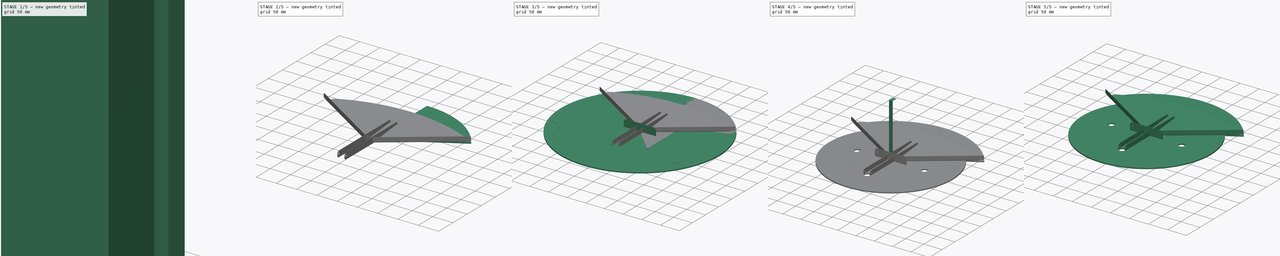
[diagram: build sequence overview — one tinted view per stage of 5, left to right]
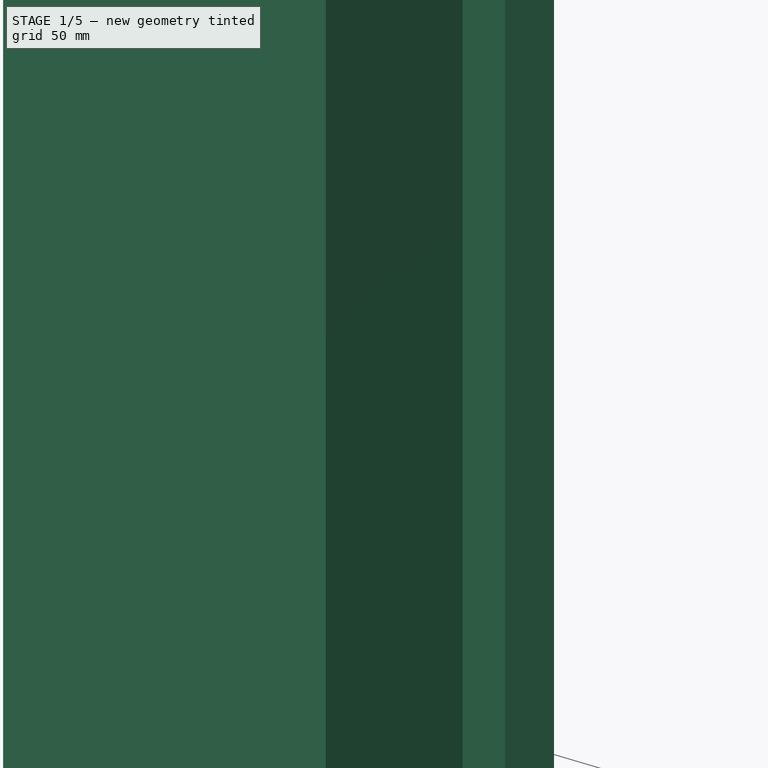
[diagram: stage 1 of 5 — iso view after this stage's code; geometry added in this stage tinted green]
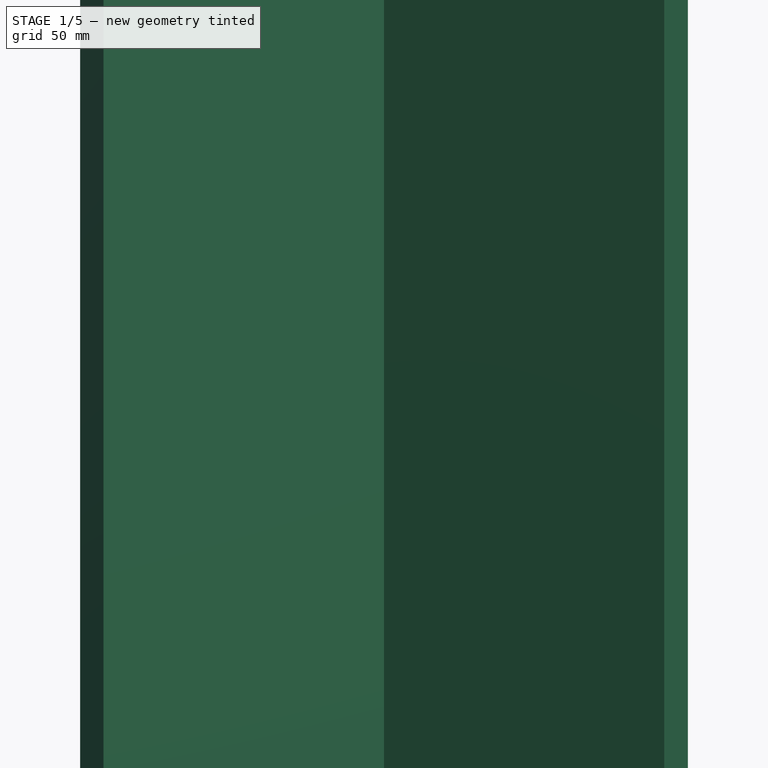
[diagram: stage 1 of 5 — front view after this stage's code; geometry added in this stage tinted green]
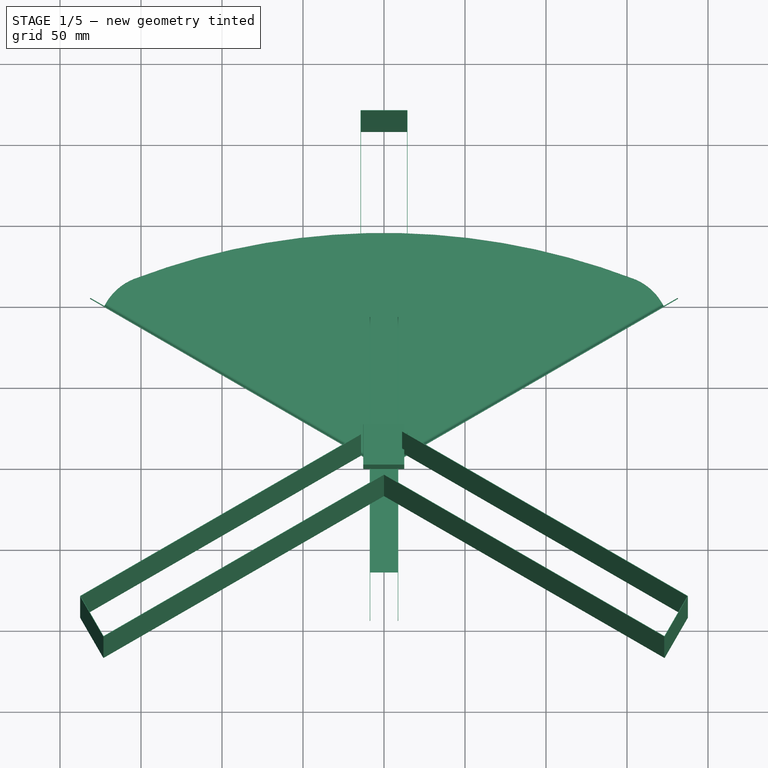
[diagram: stage 1 of 5 — top view after this stage's code; geometry added in this stage tinted green]
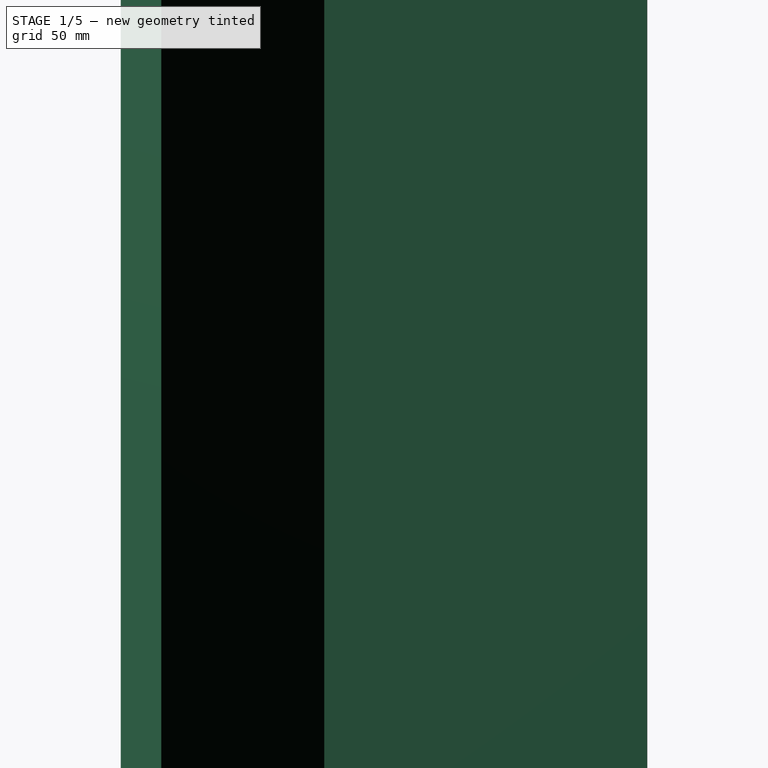
[diagram: stage 1 of 5 — right view after this stage's code; geometry added in this stage tinted green]
FCSTD DOCUMENT  (FreeCAD 0.21R31917 (Git))
Label: composit_stand3-small
License: All rights reserved
LicenseURL: http://en.wikipedia.org/wiki/All_rights_reserved
objects: Sketcher::SketchObject×81, PartDesign::CoordinateSystem×42, PartDesign::Pocket×36, PartDesign::SubShapeBinder×23, PartDesign::Plane×17, PartDesign::Body×17, PartDesign::FeaturePython×14, PartDesign::Mirrored×12, PartDesign::Pad×10, Part::FeaturePython×6, App::DocumentObjectGroup×5, App::Link×5, PartDesign::PolarPattern×5, PartDesign::MultiTransform×3, PartDesign::Hole×2, Spreadsheet::Sheet×1, App::FeaturePython×1, Part::Feature×1, PartDesign::Fillet×1, App::Part×1, +2 more types
note: 317 computed .brp shape members not serialized (recipe doc carries the construction recipe); baked Part::Feature solids carry a one-line shape summary decoded from their .brp
EXTERNAL_REF file=module.FCStd obj=Spreadsheet

FEATURE [PartDesign::Body] Body001003005003015002  label="corner_5.5_material_0.30ansi"
  Group = -> [Sketch108,BaseBend007,Sketch109,Pocket063,MultiTransform013,Mirrored039,PolarPattern014,Sketch110,Pocket064,Local_CS034,Sketch111,Pocket065]
  Origin = -> Origin036
  Tip = -> Pocket065
FEATURE [PartDesign::CoordinateSystem] Local_CS035
  AttacherType = Attacher::AttachEngine3D
  AttachmentOffset = pos=(0,0,774) rot=(0,0,1;0rad)
  MapMode = 5
  Placement = pos=(0,108.372,774) rot=(0,0,1;0rad)
  Support = -> [Local_CS011]
FEATURE [PartDesign::CoordinateSystem] Local_CS036  label="droppers_center"
  AttacherType = Attacher::AttachEngine3D
  AttachmentOffset = pos=(0,0,-19) rot=(0,0,1;0rad)
  MapMode = 5
  Placement = pos=(0,108.372,755) rot=(0,0,1;0rad)
  Support = -> [Local_CS035]
FEATURE [PartDesign::CoordinateSystem] Local_CS037  label="gutter_fixture_center"
  AttacherType = Attacher::AttachEngine3D
  AttachmentOffset = pos=(0,0,-12) rot=(0,0,1;0rad)
  MapMode = 5
  Placement = pos=(0,108.372,743) rot=(0,0,1;0rad)
  Support = -> [Local_CS036]
FEATURE [PartDesign::CoordinateSystem] Local_CS038  label="modules_top_center"
  AttacherType = Attacher::AttachEngine3D
  AttachmentOffset = pos=(0,0,-5) rot=(0,0,1;0rad)
  MapMode = 5
  Placement = pos=(0,108.372,738) rot=(0,0,1;0rad)
  Support = -> [Local_CS037]
FEATURE [Sketcher::SketchObject] Sketch112
  FullyConstrained = true
  MapMode = 5
  Placement = pos=(0,0,0) rot=(0.57735,0.57735,0.57735;2.0944rad)
  Support = -> [YZ_Plane001]
  sketch-geometry (5):
    g0: LineSegment StartX=-6.5 StartY=-3.5 StartZ=0 EndX=-6.5 EndY=3.5 EndZ=0
    g1: LineSegment StartX=-6.5 StartY=3.5 StartZ=0 EndX=6.5 EndY=3.5 EndZ=0
    g2: LineSegment StartX=6.5 StartY=3.5 StartZ=0 EndX=6.5 EndY=-3.5 EndZ=0
    g3: LineSegment StartX=6.5 StartY=-3.5 StartZ=0 EndX=-6.5 EndY=-3.5 EndZ=0
    g4: GeomPoint X=0 Y=0 Z=0
  constraints (12):
    c: Coincident(g0,g1)
    c: Coincident(g1,g2)
    c: Coincident(g2,g3)
    c: Coincident(g3,g0)
    c: Horizontal(g1)
    c: Horizontal(g3)
    c: Vertical(g0)
    c: Vertical(g2)
    c: Symmetric(g1,g0,g4)
    c: Coincident(g4,g-1)
    c: DistanceX(g1,g1) = 13
    c: DistanceY(g2,g2) = 7
FEATURE [Part::FeaturePython] Array  # Draft array (typed FeaturePython)
  AlwaysSyncPlacement = false
  Angle = 360
  ArrayType = 0
  Axis = (0,0,1)
  Base = -> Sketch112
  Center = (0,0,0)
  Count = 12
  ExpandArray = false
  Fuse = false
  IntervalAxis = (0,0,0)
  IntervalX = (100,0,0)
  IntervalY = (0,132,0)
  IntervalZ = (0,0,-80)
  NumberCircles = 3
  NumberPolar = 5
  NumberX = 1
  NumberY = 2
  NumberZ = 6
  Placement = pos=(0,-66,0) rot=(0,0,1;0rad)
  PlacementList = 12 placements: [(0,0,0),(0,0,-80),(0,0,-160),(0,0,-240),(0,0,-320),(0,0,-400),(0,132,0),(0,132,-80),(0,132,-160),(0,132,-240),(0,132,-320),(0,132,-400)]
  RadialDistance = 50
  Symmetry = 1
  TangentialDistance = 25
FEATURE [Sketcher::SketchObject] Sketch113
  FullyConstrained = true
  MapMode = 5
  Placement = pos=(0,0,0) rot=(0.57735,0.57735,0.57735;2.0944rad)
  Support = -> [YZ_Plane001]
  sketch-geometry (8):
    g0: ArcOfCircle CenterX=0 CenterY=0 CenterZ=0 NormalX=0 NormalY=0 NormalZ=1 AngleXU=0 Radius=12.625 StartAngle=3.14159 EndAngle=6.28319
    g1: LineSegment StartX=12.625 StartY=-3.1e-15 StartZ=0 EndX=12.625 EndY=12.5 EndZ=0
    g2: LineSegment StartX=-12.625 StartY=1.5e-15 StartZ=0 EndX=-12.625 EndY=12.5 EndZ=0
    g3: ArcOfCircle CenterX=15.125 CenterY=12.5 CenterZ=0 NormalX=0 NormalY=0 NormalZ=1 AngleXU=0 Radius=2.5 StartAngle=1.5708 EndAngle=3.14159
    g4: ArcOfCircle CenterX=-15.125 CenterY=12.5 CenterZ=0 NormalX=0 NormalY=0 NormalZ=1 AngleXU=0 Radius=2.5 StartAngle=0 EndAngle=1.5708
    g5: LineSegment StartX=-15.125 StartY=15 StartZ=0 EndX=-15.125 EndY=19 EndZ=0
    g6: LineSegment StartX=-15.125 StartY=19 StartZ=0 EndX=15.125 EndY=19 EndZ=0
    g7: LineSegment StartX=15.125 StartY=19 StartZ=0 EndX=15.125 EndY=15 EndZ=0
  constraints (24):
    c: Coincident(g0,g-1)
    c: PointOnObject(g0,g-1)
    c: PointOnObject(g0,g-1)
    c: Coincident(g1,g0)
    c: Vertical(g1)
    c: Coincident(g2,g0)
    c: Vertical(g2)
    c: Coincident(g5,g4)
    c: Vertical(g5)
    c: Coincident(g6,g5)
    c: Horizontal(g6)
    c: Coincident(g7,g6)
    c: Coincident(g7,g3)
    c: Vertical(g7)
    c: Perpendicular(g3,g7)
    c: Tangent(g3,g1) = 1.5708
    c: Tangent(g4,g2) = -1.5708
    c: Perpendicular(g4,g5)
    c: Diameter(g0) = 25.25
    c: Distance(g0,g6) = 19
    c: Equal(g4,g3)
    c: Diameter(g4) = 5
    c: DistanceY(g7,g7) = 4
    c: Equal(g5,g7)
FEATURE [Part::FeaturePython] Array001  # Draft array (typed FeaturePython)
  AlwaysSyncPlacement = false
  Angle = 360
  ArrayType = 0
  Axis = (0,0,1)
  Base = -> Sketch113
  Center = (0,0,0)
  Count = 2
  ExpandArray = false
  Fuse = false
  IntervalAxis = (0,0,0)
  IntervalX = (100,0,0)
  IntervalY = (0,60,0)
  IntervalZ = (0,0,100)
  NumberCircles = 3
  NumberPolar = 5
  NumberX = 1
  NumberY = 2
  NumberZ = 1
  Placement = pos=(0,-30,0) rot=(0,0,1;0rad)
  PlacementList = 2 placements: [(0,0,0),(0,60,0)]
  RadialDistance = 50
  Symmetry = 1
  TangentialDistance = 25
FEATURE [Part::FeaturePython] Array002  # Draft array (typed FeaturePython)
  AlwaysSyncPlacement = false
  Angle = 360
  ArrayType = 0
  Axis = (0,0,1)
  Base = -> Sketch113
  Center = (0,0,0)
  Count = 2
  ExpandArray = false
  Fuse = false
  IntervalAxis = (0,0,0)
  IntervalX = (100,0,0)
  IntervalY = (0,70,0)
  IntervalZ = (0,0,100)
  NumberCircles = 3
  NumberPolar = 5
  NumberX = 1
  NumberY = 2
  NumberZ = 1
  Placement = pos=(0,-35,0) rot=(0,0,1;0rad)
  PlacementList = 2 placements: [(0,0,0),(0,70,0)]
  RadialDistance = 50
  Symmetry = 1
  TangentialDistance = 25
FEATURE [PartDesign::SubShapeBinder] Binder032
  BindCopyOnChange = 0
  BindMode = 0
  ClaimChildren = false
  Context = -> Body001 [Binder032.]
  Fuse = false
  MakeFace = true
  OffsetFill = false
  OffsetIntersection = false
  OffsetJoinType = 0
  OffsetOpenResult = false
  PartialLoad = false
  Placement = pos=(0,108.372,755) rot=(0,0,1;0rad)
  Relative = true
  Support = -> [Array001]
  _Version = 2
FEATURE [PartDesign::SubShapeBinder] Binder033
  BindCopyOnChange = 0
  BindMode = 0
  ClaimChildren = false
  Context = -> Body001 [Binder033.]
  Fuse = false
  MakeFace = true
  OffsetFill = false
  OffsetIntersection = false
  OffsetJoinType = 0
  OffsetOpenResult = false
  PartialLoad = false
  Placement = pos=(0,108.372,755) rot=(0,0,1;0rad)
  Relative = true
  Support = -> [Array002]
  _Version = 2
FEATURE [PartDesign::SubShapeBinder] Binder034
  BindCopyOnChange = 0
  BindMode = 0
  ClaimChildren = false
  Context = -> Body001 [Binder034.]
  Fuse = false
  MakeFace = true
  OffsetFill = false
  OffsetIntersection = false
  OffsetJoinType = 0
  OffsetOpenResult = false
  PartialLoad = false
  Placement = pos=(0,108.372,738) rot=(0,0,1;0rad)
  Relative = true
  Support = -> [Array]
  _Version = 2
FEATURE [Sketcher::SketchObject] Sketch114
  FullyConstrained = true
  MapMode = 5
  Placement = pos=(0,0,0) rot=(0.57735,0.57735,0.57735;2.0944rad)
  Support = -> [YZ_Plane001]
  sketch-geometry (1):
    g0: Circle CenterX=0 CenterY=0 CenterZ=0 NormalX=0 NormalY=0 NormalZ=1 AngleXU=0 Radius=1.7
  constraints (2):
    c: Coincident(g0,g-1)
    c: Diameter(g0) = 3.4
FEATURE [Part::FeaturePython] Array003  # Draft array (typed FeaturePython)
  AlwaysSyncPlacement = false
  Angle = 360
  ArrayType = 0
  Axis = (0,0,1)
  Base = -> Sketch114
  Center = (0,0,0)
  Count = 2
  ExpandArray = false
  Fuse = false
  IntervalAxis = (0,0,0)
  IntervalX = (100,0,0)
  IntervalY = (0,102,0)
  IntervalZ = (0,0,100)
  NumberCircles = 3
  NumberPolar = 5
  NumberX = 1
  NumberY = 2
  NumberZ = 1
  Placement = pos=(0,-51,0) rot=(0,0,1;0rad)
  PlacementList = 2 placements: [(0,0,0),(0,102,0)]
  RadialDistance = 50
  Symmetry = 1
  TangentialDistance = 25
FEATURE [PartDesign::SubShapeBinder] Binder035
  BindCopyOnChange = 0
  BindMode = 0
  ClaimChildren = false
  Context = -> Body001 [Binder035.]
  Fuse = false
  MakeFace = true
  OffsetFill = false
  OffsetIntersection = false
  OffsetJoinType = 0
  OffsetOpenResult = false
  PartialLoad = false
  Placement = pos=(0,108.372,743) rot=(0,0,1;0rad)
  Relative = true
  Support = -> [Array003]
  _Version = 2
FEATURE [PartDesign::CoordinateSystem] LCS_0006
  AttacherType = Attacher::AttachEngine3D
  MapMode = 2
  Support = -> [X_Axis037]
FEATURE [Sketcher::SketchObject] Sketch116
  FullyConstrained = true
  MapMode = 5
  Placement = pos=(0,0,0) rot=(0.57735,0.57735,0.57735;2.0944rad)
  Support = -> [YZ_Plane037]
  sketch-geometry (4):
    g0: LineSegment StartX=0 StartY=0 StartZ=0 EndX=25 EndY=0 EndZ=0
    g1: LineSegment StartX=25 StartY=0 StartZ=0 EndX=25 EndY=154 EndZ=0
    g2: LineSegment StartX=25 StartY=154 StartZ=0 EndX=0 EndY=154 EndZ=0
    g3: LineSegment StartX=0 StartY=154 StartZ=0 EndX=0 EndY=0 EndZ=0
  constraints (11):
    c: Coincident(g0,g1)
    c: Coincident(g1,g2)
    c: Coincident(g2,g3)
    c: Coincident(g3,g0)
    c: Horizontal(g0)
    c: Horizontal(g2)
    c: Vertical(g1)
    c: Vertical(g3)
    c: Coincident(g0,g-1)
    c: Distance(g3) = 154  'height'
    c: DistanceX(g0) = 25  'length'
FEATURE [PartDesign::FeaturePython] BaseBend008  # WARN: FeaturePython — macro-defined, semantics opaque (R4)
  BendSide = 1
  BendSketch = -> Sketch116
  MidPlane = true
  Reverse = false
  length = 25
  radius = 0.01
  thickness = 0.3
FEATURE [PartDesign::FeaturePython] Bend015  # WARN: FeaturePython — macro-defined, semantics opaque (R4)
  AutoMiter = true
  BaseFeature = -> BaseBend008
  BendType = 0
  LengthList = [25]
  LengthSpec = 1
  ReliefFactor = 0.7
  UseReliefFactor = false
  angle = 90
  baseObject = -> BaseBend008 [Edge26]
  bendAList = [90]
  extend1 = 0
  extend2 = 0
  gap1 = 3
  gap2 = 3
  invert = false
  kfactor = 0.5
  length = 25
  maxExtendDist = 5
  minGap = 0.1
  minReliefGap = 1
  miterangle1 = 0
  miterangle2 = 0
  offset = 0
  radius = 0.01
  reliefType = 0
  reliefd = 0.1
  reliefw = 0.1
  sketchflip = false
  sketchinvert = false
  unfold = false
FEATURE [PartDesign::FeaturePython] Bend016  # WARN: FeaturePython — macro-defined, semantics opaque (R4)
  AutoMiter = true
  BaseFeature = -> Bend015
  BendType = 0
  LengthList = [25]
  LengthSpec = 0
  ReliefFactor = 0.7
  UseReliefFactor = false
  angle = 90
  baseObject = -> Bend015 [Edge3]
  bendAList = [90]
  extend1 = 0
  extend2 = 0
  gap1 = 3
  gap2 = 0
  invert = false
  kfactor = 0.5
  length = 25
  maxExtendDist = 5
  minGap = 0.1
  minReliefGap = 1
  miterangle1 = 0
  miterangle2 = 0
  offset = 0
  radius = 0.01
  reliefType = 0
  reliefd = 0.1
  reliefw = 0.1
  sketchflip = false
  sketchinvert = false
  unfold = false
FEATURE [PartDesign::Body] Body001003005003014  label="basin_cover_back_material_0.30ansi"
  Group = -> [Pad022,Binder021,Binder020,Pocket045,Pocket059,Hole001,Mirrored031,Local_CS027,Local_CS028,DatumPlane023,Local_CS029,Binder037,Local_CS040,Binder038,Binder047,Local_CS045]
  Origin = -> Origin027
  Tip = -> Mirrored031
FEATURE [App::DocumentObjectGroup] Group001  label="Arrays"
  Group = -> [Array,Array001,Array002,Array003]
FEATURE [PartDesign::CoordinateSystem] Local_CS046
  AttacherType = Attacher::AttachEngine3D
  AttachmentOffset = pos=(0,0,0) rot=(0,0,1;0.523599rad)
  MapMode = 5
  Placement = pos=(0,0,0) rot=(0,0,1;0.523599rad)
  Support = -> [XY_Plane046]
FEATURE [Part::Part2DObjectPython] Line  # Draft 2D object (typed FeaturePython)
  AnglePlaneMid = 5.71059
  AnglePlaneSide = 2.86241
  Area = 0
  AttachmentOffset = pos=(200,0,10) rot=(0,0,1;0rad)
  ChamferSize = 0
  Closed = true
  End = (0,0,0)
  FilletRadius = 0
  Length = 200.25
  MakeFace = true
  MapMode = 2
  Placement = pos=(173.205,100,10) rot=(0,0,1;0.523599rad)
  Points = (2) [(0,0,0),(-200,0,-10)]
  Start = (173.205,100,10)
  Subdivisions = 0
  Support = -> [Local_CS046]
  expr: .AttachmentOffset.Base.x = <<main>>.work_plane_width
  expr: AnglePlaneMid = atan2(.Start.z; .Start.y)
  expr: AnglePlaneSide = atan2(.Start.z; hypot(.Start.x; .Start.y))
  expr: End = Local_CS046.Placement.Base
  expr: Support = Local_CS046._self
FEATURE [Sketcher::SketchObject] Sketch142
  FullyConstrained = true
  MapMode = 5
  Support = -> [XY_Plane046]
FEATURE [Sketcher::SketchObject] Sketch143
  AttachmentOffset = pos=(0,0,0) rot=(0,1,0;0.523599rad)
  ExternalGeometry = -> [Line]
  FullyConstrained = true
  MapMode = 5
  Placement = pos=(0,0,0) rot=(0.935113,0.250563,0.250563;1.63783rad)
  Support = -> [XZ_Plane045]
  constraints (1):
    c: Angle(g-1,g-3) = 0.0499584
FEATURE [PartDesign::Line] DatumLine
  AttacherType = Attacher::AttachEngineLine
  Length = 20
  MapMode = 24
  Placement = pos=(173.205,100,10) rot=(0.57735,-0.57735,-0.57735;2.0944rad)
  ResizeMode = 0
  Support = -> [Line,X_Axis045]
FEATURE [PartDesign::CoordinateSystem] Local_CS047
  AttacherType = Attacher::AttachEngine3D
  AttachmentOffset = pos=(0,0,0) rot=(0,1,0;-0.049958rad)
  MapMode = 5
  Placement = pos=(0,0,0) rot=(-0.024869,0.092812,-0.995373;5.75726rad)
  Support = -> [Local_CS046]
  expr: .AttachmentOffset.Rotation.Angle = -Line.AnglePlaneSide
FEATURE [Sketcher::SketchObject] Sketch144
  AttachmentOffset = pos=(0,0,0) rot=(0.57735,0.57735,0.57735;2.0944rad)
  ExternalGeometry = -> [DatumLine]
  FullyConstrained = true
  MapMode = 5
  Placement = pos=(0,0,0) rot=(0.369727,0.640387,0.673206;2.40018rad)
  Support = -> [Local_CS047]
  expr: Support = Local_CS047._self
  sketch-geometry (3):
    g0: LineSegment StartX=0 StartY=0 StartZ=0 EndX=20 EndY=1.72989 EndZ=0
    g1: LineSegment StartX=20 StartY=1.72989 StartZ=0 EndX=20 EndY=0 EndZ=0
    g2: LineSegment StartX=20 StartY=0 StartZ=0 EndX=0 EndY=0 EndZ=0
  constraints (9):
    c: Coincident(g0,g-1)
    c: PointOnObject(g0,g-3)
    c: Coincident(g1,g0)
    c: PointOnObject(g1,g-1)
    c: Vertical(g1)
    c: Coincident(g2,g1)
    c: Coincident(g2,g0)
    c: Angle(g2,g0) = 0.0862798  'angle'
    c: DistanceX(g2,g2) = 20
FEATURE [PartDesign::CoordinateSystem] Local_CS048
  AttacherType = Attacher::AttachEngine3D
  AttachmentOffset = pos=(0,0,0) rot=(1,0,0;0.099669rad)
  MapMode = 5
  Placement = pos=(0,0,0) rot=(1,0,0;0.099669rad)
  Support = -> [XY_Plane046]
  expr: .AttachmentOffset.Rotation.Roll = Line.AnglePlaneMid
FEATURE [Sketcher::SketchObject] Sketch141
  ExternalGeometry = -> [Line]
  FullyConstrained = false
  MapMode = 5
  Placement = pos=(0,0,0) rot=(1,0,0;0.099669rad)
  Support = -> [Local_CS048]
  expr: Constraints[16] = <<main>>.work_plane_width
  expr: Constraints[4] = (2mm + 0.5mm) * (1 + sin(Line.AnglePlaneMid))
  expr: Support = Local_CS048._self
  sketch-geometry (7):
    g0: LineSegment StartX=171.609 StartY=102.751 StartZ=0 EndX=0 EndY=3.17796 EndZ=0
    g1: LineSegment StartX=0 StartY=3.17796 StartZ=0 EndX=-171.609 EndY=102.751 EndZ=0
    g2: ArcOfCircle CenterX=141.336 CenterY=85.1856 CenterZ=0 NormalX=0 NormalY=0 NormalZ=1 AngleXU=0 Radius=35 StartAngle=0.525756 EndAngle=1.20679
    g3: ArcOfCircle CenterX=-5.31e-14 CenterY=-285.795 CenterZ=0 NormalX=0 NormalY=0 NormalZ=1 AngleXU=0 Radius=431.992 StartAngle=1.20679 EndAngle=1.9348
    g4: ArcOfCircle CenterX=-141.336 CenterY=85.1856 CenterZ=0 NormalX=0 NormalY=0 NormalZ=1 AngleXU=0 Radius=35 StartAngle=1.9348 EndAngle=2.61584
    g5: LineSegment StartX=0 StartY=3.17796 StartZ=0 EndX=-1.37951 EndY=2.37753 EndZ=0
    g6: LineSegment StartX=-1.37951 StartY=2.37753 StartZ=0 EndX=-2e-16 EndY=-1.42e-14 EndZ=0
  constraints (20):
    c: Symmetric(g1,g0,g-2)
    c: PointOnObject(g0,g-2)
    c: Parallel(g0,g-3)
    c: Angle(g-1,g0) = 0.525756
    c: Distance(g-3,g0) = 2.74876
    c: PointOnObject(g2,g0)
    c: Coincident(g2,g0)
    c: Tangent(g2,g3) = -1.5708
    c: PointOnObject(g4,g1)
    c: Coincident(g4,g1)
    c: Tangent(g4,g3) = -1.5708
    c: Equal(g4,g2)
    c: Coincident(g5,g6)
    c: Coincident(g6,g-3)
    c: Perpendicular(g5,g6)
    c: Tangent(g0,g5) = -1.5708
    c: Distance(g0,g5) = 200
    c: Diameter(g2) = 70
    c: Coincident(g1,g0)
    c: DistanceY(g0) = 3.17796  'offset'
FEATURE [PartDesign::Pad] Pad031
  Direction = (0,-0.0995037,0.995037)
  Length = 0.5
  Length2 = 10
  Placement = pos=(0,0,0) rot=(1,0,0;0.099669rad)
  Profile = -> Sketch141
  ReferenceAxis = -> Sketch141 [N_Axis]
  Type = 0
FEATURE [PartDesign::FeaturePython] Bend018  # WARN: FeaturePython — macro-defined, semantics opaque (R4)
  AutoMiter = true
  BaseFeature = -> Pad031
  BendType = 0
  LengthList = [10]
  LengthSpec = 0
  ReliefFactor = 0.7
  UseReliefFactor = false
  angle = 94.9435
  baseObject = -> Pad031 [Edge3,Edge6]
  bendAList = [94.9435]
  extend1 = 0
  extend2 = 0
  gap1 = 0
  gap2 = 0
  invert = false
  kfactor = 0.5
  length = 10
  maxExtendDist = 5
  minGap = 0.1
  minReliefGap = 1
  miterangle1 = 0
  miterangle2 = 0
  offset = 0
  radius = 2
  reliefType = 0
  reliefd = 1
  reliefw = 0.8
  sketchflip = false
  sketchinvert = false
  unfold = false
  expr: angle = 90° + Sketch144.Constraints.angle
FEATURE [PartDesign::FeaturePython] Extend  # WARN: FeaturePython — macro-defined, semantics opaque (R4)
  BaseFeature = -> Bend018
  Offset = 0.02
  Refine = true
  UseSubtraction = false
  baseObject = -> Bend018 [Face24,Face10]
  gap1 = 0
  gap2 = 0
  length = 10
FEATURE [Sketcher::SketchObject] Sketch145
  AttachmentOffset = pos=(0,3.17796,0) rot=(0,0,1;0rad)
  FullyConstrained = true
  MapMode = 5
  Placement = pos=(0,3.16219,0.316219) rot=(1,0,0;0.099669rad)
  Support = -> [Local_CS048]
  expr: .AttachmentOffset.Base.y = Sketch141.Constraints.offset
  expr: Constraints[4] = 180 - 57
  expr: Support = Local_CS048._self
  sketch-geometry (15):
    g0: ArcOfCircle CenterX=0 CenterY=0 CenterZ=0 NormalX=0 NormalY=0 NormalZ=1 AngleXU=0 Radius=5 StartAngle=5.56216 EndAngle=10.1458
    g1: ArcOfCircle CenterX=4.88235 CenterY=-4.291 CenterZ=0 NormalX=0 NormalY=0 NormalZ=1 AngleXU=0 Radius=1.5 StartAngle=2.42057 EndAngle=3.71755
    g2: ArcOfCircle CenterX=-4.88235 CenterY=-4.291 CenterZ=0 NormalX=0 NormalY=0 NormalZ=1 AngleXU=0 Radius=1.5 StartAngle=5.70723 EndAngle=7.00421
    g3: LineSegment StartX=3.62434 StartY=-5.10796 StartZ=0 EndX=5.79596 EndY=-8.45196 EndZ=0
    g4: ArcOfCircle CenterX=4.53795 CenterY=-9.26891 CenterZ=0 NormalX=0 NormalY=0 NormalZ=1 AngleXU=0 Radius=1.5 StartAngle=5.81195 EndAngle=6.85914
    g5: ArcOfCircle CenterX=7.21097 CenterY=-10.6309 CenterZ=0 NormalX=0 NormalY=0 NormalZ=1 AngleXU=0 Radius=1.5 StartAngle=2.67035 EndAngle=3.71756
    g6: ArcOfCircle CenterX=4.69497 CenterY=-12.2648 CenterZ=0 NormalX=0 NormalY=0 NormalZ=1 AngleXU=0 Radius=1.5 StartAngle=5.28835 EndAngle=6.85915
    g7: LineSegment StartX=5.51193 StartY=-13.5228 StartZ=0 EndX=0 EndY=-17.1023 EndZ=0
    g8: LineSegment StartX=5.95297 StartY=-11.4478 StartZ=0 EndX=1.59586 EndY=-4.73849 EndZ=0
    g9: GeomPoint X=4.23697 Y=-8.80544 Z=0
    g10: LineSegment StartX=-3.62434 StartY=-5.10796 StartZ=0 EndX=-5.79596 EndY=-8.45196 EndZ=0
    g11: ArcOfCircle CenterX=-4.69497 CenterY=-12.2648 CenterZ=0 NormalX=0 NormalY=0 NormalZ=1 AngleXU=0 Radius=1.5 StartAngle=2.56563 EndAngle=4.13643
    g12: LineSegment StartX=-5.51193 StartY=-13.5228 StartZ=0 EndX=0 EndY=-17.1023 EndZ=0
    g13: ArcOfCircle CenterX=-7.21097 CenterY=-10.6309 CenterZ=0 NormalX=0 NormalY=0 NormalZ=1 AngleXU=0 Radius=1.5 StartAngle=5.70722 EndAngle=6.75442
    g14: ArcOfCircle CenterX=-4.53795 CenterY=-9.26891 CenterZ=0 NormalX=0 NormalY=0 NormalZ=1 AngleXU=0 Radius=1.5 StartAngle=2.56563 EndAngle=3.61283
  constraints (38):
    c: Coincident(g0,g-1)
    c: Diameter(g0) = 10
    c: Coincident(g2,g0)
    c: PointOnObject(g7,g-2)
    c: Angle(g-1,g3) = 2.14675
    c: Tangent(g4,g3) = 1.5708
    c: Tangent(g5,g4) = 1.5708
    c: Tangent(g1,g0) = 1.5708
    c: Tangent(g3,g1) = -1.5708
    c: Tangent(g6,g5) = 1.5708
    c: Tangent(g7,g6) = 1.5708
    c: Coincident(g8,g5)
    c: Tangent(g6,g8)
    c: Perpendicular(g3,g7)
    c: Equal(g5,g4)
    c: Equal(g6,g5)
    c: Parallel(g8,g3)
    c: Equal(g1,g4)
    c: PointOnObject(g9,g8)
    c: DistanceY(g9) = -8.80544
    c: PointOnObject(g8,g0)
    c: DistanceX(g8) = 1.59586
    c: Distance(g8) = 8
    c: Diameter(g1) = 3
    c: PointOnObject(g4,g8)
    c: Symmetric(g1,g2,g-2)
    c: Equal(g2,g1)
    c: Coincident(g12,g7)
    c: Tangent(g14,g10) = -1.5708
    c: Tangent(g10,g2) = 1.5708
    c: Tangent(g14,g13) = 1.5708
    c: Tangent(g13,g11) = 1.5708
    c: Tangent(g12,g11) = -1.5708
    c: Equal(g13,g14)
    c: Equal(g14,g11)
    c: Equal(g11,g2)
    c: Symmetric(g14,g4,g-2)
    c: Symmetric(g11,g6,g-2)
FEATURE [PartDesign::FeaturePython] CornerRelief  # WARN: FeaturePython — macro-defined, semantics opaque (R4)
  BaseFeature = -> Extend
  ReliefSketch = 4
  Size = 3
  SizeRatio = 1.5
  Sketch = -> Sketch145
  XOffset = 0
  YOffset = 0
  baseObject = -> Extend [Edge6,Edge19]
  kfactor = 0.5
  expr: Sketch = Sketch145._self
FEATURE [Sketcher::SketchObject] Sketch146
  ExternalGeometry = -> [CornerRelief,Sketch141]
  FullyConstrained = false
  MapMode = 5
  Support = -> [XY_Plane046]
  sketch-geometry (1):
    g0: GeomPoint X=-0.835196 Y=2.62109 Z=0
FEATURE [PartDesign::Body] Body001003005003015006
  Group = -> [Local_CS046,Line,Sketch141,Pad031,Bend018,Sketch142,Sketch143,DatumLine,Sketch144,Local_CS047,Extend,Local_CS048,CornerRelief,Sketch145,Sketch146]
  Origin = -> Origin045
  Tip = -> CornerRelief
FEATURE [PartDesign::FeaturePython] BaseBend011  # WARN: FeaturePython — macro-defined, semantics opaque (R4)
  BendSide = 0
  BendSketch = -> Sketch003
  MidPlane = false
  Reverse = false
  length = 755
  radius = 0.01
  thickness = 0.3
  expr: length = <<main>>.total_length
  expr: radius = <<main>>.bend_r
  expr: thickness = 0.3mm
FEATURE [PartDesign::Body] Body001  label="Body001_material_0.30ansi"
  Group = -> [BaseBend011,Local_CS,Local_CS011,Sketch003,Local_CS012,DatumPlane011,DatumPlane012,Local_CS035,Local_CS036,Local_CS037,Local_CS038,Sketch112,Sketch113,Sketch128,Local_CS039,Sketch129,Local_CS041,Sketch130,Local_CS042,DatumPlane,DatumPlane001,Sketch005,Binder032,Binder033,Binder034,Binder035,Binder027,Sketch119,Sketch125,Sketch114,Sketch009,Sketch011,DatumPlane002,Sketch012,Sketch013,Local_CS008,+17 more]
  Origin = -> Origin001
  Tip = -> BaseBend011
FEATURE [Sketcher::SketchObject] Sketch134
  FullyConstrained = true
  MapMode = 5
  Placement = pos=(0,0,0) rot=(1,0,0;1.5708rad)
  Support = -> [XZ_Plane044]
  sketch-geometry (5):
    g0: LineSegment StartX=-8.5 StartY=15 StartZ=0 EndX=-8.5 EndY=0 EndZ=0
    g1: LineSegment StartX=-8.5 StartY=0 StartZ=0 EndX=8.5 EndY=0 EndZ=0
    g2: LineSegment StartX=8.5 StartY=0 StartZ=0 EndX=8.5 EndY=15 EndZ=0
    g3: LineSegment StartX=8.5 StartY=15 StartZ=0 EndX=-8.5 EndY=15 EndZ=0
    g4: GeomPoint X=0 Y=7.5 Z=0
  constraints (13):
    c: Coincident(g0,g1)
    c: Coincident(g1,g2)
    c: Coincident(g2,g3)
    c: Coincident(g3,g0)
    c: Horizontal(g1)
    c: Horizontal(g3)
    c: Vertical(g0)
    c: Vertical(g2)
    c: Symmetric(g1,g0,g4)
    c: PointOnObject(g4,g-2)
    c: PointOnObject(g1,g-1)
    c: DistanceX(g1,g1) = 17  'width'
    c: DistanceY(g2) = 15  'height'
FEATURE [Sketcher::SketchObject] Sketch135
  FullyConstrained = true
  MapMode = 5
  Placement = pos=(0,0,0) rot=(1,0,0;1.5708rad)
  Support = -> [XZ_Plane044]
  sketch-geometry (1):
    g0: GeomPoint X=172 Y=45 Z=0
  constraints (3):
    c: DistanceX(g0) = 172
    c: DistanceY(g0) = 45
    c: Distance(g-1,g0) = 177.789  'length'
FEATURE [PartDesign::FeaturePython] BaseBend010  # WARN: FeaturePython — macro-defined, semantics opaque (R4)
  BendSide = 0
  BendSketch = -> Sketch134
  MidPlane = true
  Reverse = false
  length = 187.789
  radius = 0.1
  thickness = 0.3
FEATURE [Sketcher::SketchObject] Sketch136
  AttachmentOffset = pos=(0,8,0) rot=(0,0,1;0rad)
  FullyConstrained = true
  MapMode = 5
  Placement = pos=(-1.8e-15,1.8e-15,8) rot=(0.57735,0.57735,0.57735;2.0944rad)
  Support = -> [YZ_Plane044]
  sketch-geometry (2):
    g0: Circle CenterX=-88.8946 CenterY=0 CenterZ=0 NormalX=0 NormalY=0 NormalZ=1 AngleXU=0 Radius=1.7
    g1: Circle CenterX=88.8946 CenterY=0 CenterZ=0 NormalX=0 NormalY=0 NormalZ=1 AngleXU=0 Radius=1.7
  constraints (5):
    c: PointOnObject(g0,g-1)
    c: Symmetric(g0,g1,g-2)
    c: DistanceX(g0,g1) = 177.789
    c: Equal(g1,g0)
    c: Diameter(g1) = 3.4
FEATURE [Sketcher::SketchObject] Sketch137
  AttachmentOffset = pos=(93.8946,15,0) rot=(0,0,1;0rad)
  FullyConstrained = true
  MapMode = 5
  Placement = pos=(1.75e-14,93.8946,15) rot=(0.57735,0.57735,0.57735;2.0944rad)
  Support = -> [YZ_Plane044]
  sketch-geometry (3):
    g0: ArcOfCircle CenterX=-7 CenterY=-7 CenterZ=0 NormalX=0 NormalY=0 NormalZ=1 AngleXU=0 Radius=7 StartAngle=-3.2e-14 EndAngle=1.5708
    g1: LineSegment StartX=-7 StartY=0 StartZ=0 EndX=0 EndY=0 EndZ=0
    g2: LineSegment StartX=0 StartY=0 StartZ=0 EndX=0 EndY=-7 EndZ=0
  constraints (8):
    c: PointOnObject(g0,g-2)
    c: PointOnObject(g0,g-1)
    c: Coincident(g1,g2)
    c: Vertical(g2)
    c: Tangent(g2,g0) = 1.5708
    c: Tangent(g0,g1) = 1.5708
    c: DistanceY(g2,g2) = 7
    c: Horizontal(g1)
FEATURE [PartDesign::Pocket] Pocket092
  BaseFeature = -> BaseBend010
  Direction = (-1,2e-16,-3e-16)
  Length = 5
  Length2 = 5
  Midplane = true
  Profile = -> Sketch137
  ReferenceAxis = -> Sketch137 [N_Axis]
  Type = 1
FEATURE [PartDesign::Mirrored] Mirrored041
  BaseFeature = -> Pocket092
  MirrorPlane = -> XZ_Plane044
  Originals = -> [Pocket092]
FEATURE [Sketcher::SketchObject] Sketch138
  AttachmentOffset = pos=(0,-63.8946,0) rot=(0,0,1;0rad)
  FullyConstrained = false
  MapMode = 5
  Placement = pos=(0,-63.8946,0) rot=(0,0,1;0rad)
  Support = -> [XY_Plane045]
  sketch-geometry (5):
    g0: LineSegment StartX=-8.25 StartY=-159.942 StartZ=0 EndX=-8.25 EndY=0 EndZ=0
    g1: LineSegment StartX=-8.25 StartY=0 StartZ=0 EndX=8.25 EndY=0 EndZ=0
    g2: LineSegment StartX=8.25 StartY=0 StartZ=0 EndX=8.25 EndY=-159.942 EndZ=0
    g3: LineSegment StartX=8.25 StartY=-159.942 StartZ=0 EndX=-8.25 EndY=-159.942 EndZ=0
    g4: GeomPoint X=0 Y=-79.9711 Z=0
  constraints (12):
    c: Coincident(g0,g1)
    c: Coincident(g1,g2)
    c: Coincident(g2,g3)
    c: Coincident(g3,g0)
    c: Horizontal(g1)
    c: Horizontal(g3)
    c: Vertical(g0)
    c: Vertical(g2)
    c: Symmetric(g1,g0,g4)
    c: PointOnObject(g4,g-2)
    c: PointOnObject(g1,g-1)
    c: DistanceX(g1,g1) = 16.5
FEATURE [PartDesign::Pocket] Pocket093
  BaseFeature = -> Mirrored041
  Direction = (0,0,-1)
  Length = 5
  Length2 = 5
  Profile = -> Sketch138
  ReferenceAxis = -> Sketch138 [N_Axis]
  Type = 1
FEATURE [Sketcher::SketchObject] Sketch139
  AttachmentOffset = pos=(-93.8946,0,0) rot=(0,0,1;0rad)
  FullyConstrained = true
  MapMode = 5
  Placement = pos=(-2.08e-14,-93.8946,2.08e-14) rot=(0.57735,0.57735,0.57735;2.0944rad)
  Support = -> [YZ_Plane044]
  sketch-geometry (4):
    g0: ArcOfCircle CenterX=5 CenterY=5.1 CenterZ=0 NormalX=0 NormalY=0 NormalZ=1 AngleXU=0 Radius=5 StartAngle=3.14159 EndAngle=4.71239
    g1: LineSegment StartX=0 StartY=5.1 StartZ=0 EndX=0 EndY=-0.3 EndZ=0
    g2: LineSegment StartX=0 StartY=-0.3 StartZ=0 EndX=5 EndY=-0.3 EndZ=0
    g3: LineSegment StartX=5 StartY=-0.3 StartZ=0 EndX=5 EndY=0.1 EndZ=0
  constraints (12):
    c: PointOnObject(g0,g-2)
    c: PointOnObject(g1,g-2)
    c: Coincident(g2,g1)
    c: Horizontal(g2)
    c: Coincident(g3,g2)
    c: Coincident(g3,g0)
    c: Vertical(g3)
    c: Perpendicular(g0,g3)
    c: Tangent(g1,g0) = -1.5708
    c: DistanceY(g0) = 0.1
    c: Diameter(g0) = 10
    c: DistanceY(g1) = -0.3
FEATURE [PartDesign::Pocket] Pocket094
  BaseFeature = -> Pocket093
  Direction = (-1,2e-16,-3e-16)
  Length = 5
  Length2 = 5
  Midplane = true
  Profile = -> Sketch139
  ReferenceAxis = -> Sketch139 [N_Axis]
  Type = 1
FEATURE [Sketcher::SketchObject] Sketch140
  FullyConstrained = true
  MapMode = 5
  Placement = pos=(0,0,0) rot=(0.57735,0.57735,0.57735;2.0944rad)
  Support = -> [YZ_Plane044]
  sketch-geometry (4):
    g0: LineSegment StartX=-163.895 StartY=-10 StartZ=0 EndX=-63.8946 EndY=-10 EndZ=0
    g1: LineSegment StartX=-63.8946 StartY=-10 StartZ=0 EndX=-63.8946 EndY=0.11 EndZ=0
    g2: LineSegment StartX=-63.8946 StartY=0.11 StartZ=0 EndX=-163.895 EndY=0.11 EndZ=0
    g3: LineSegment StartX=-163.895 StartY=0.11 StartZ=0 EndX=-163.895 EndY=-10 EndZ=0
  constraints (12):
    c: Coincident(g0,g1)
    c: Coincident(g1,g2)
    c: Coincident(g2,g3)
    c: Coincident(g3,g0)
    c: Horizontal(g0)
    c: Horizontal(g2)
    c: Vertical(g1)
    c: Vertical(g3)
    c: DistanceY(g2) = 0.11
    c: DistanceX(g1) = -63.8946
    c: DistanceY(g0) = -10
    c: DistanceX(g2,g2) = 100
FEATURE [PartDesign::Pocket] Pocket095
  BaseFeature = -> Pocket094
  Direction = (-1,2e-16,-3e-16)
  Length = 5
  Length2 = 5
  Midplane = true
  Profile = -> Sketch140
  ReferenceAxis = -> Sketch140 [N_Axis]
  Type = 1
FEATURE [PartDesign::Pocket] Pocket091
  BaseFeature = -> Pocket095
  Direction = (-1,2e-16,-3e-16)
  Length = 5
  Length2 = 5
  Midplane = true
  Profile = -> Sketch136
  ReferenceAxis = -> Sketch136 [N_Axis]
  Type = 1
FEATURE [PartDesign::Body] gutter_bottom  label="gutter_bottom_material_0.30ansi"
  Group = -> [Sketch134,Sketch135,BaseBend010,Sketch136,Sketch137,Pocket092,Mirrored041,Sketch138,Pocket093,Sketch139,Pocket094,Sketch140,Pocket095,Pocket091]
  Origin = -> Origin044
  Tip = -> Pocket091
FEATURE [App::DocumentObjectGroup] Parts
  Group = -> [Body001003005003015,Body001003005,Body001003005003,Body001003005003003,Body001003005003004,Body001003005003011,Body001003005003012,Body001003005003013,Body001003005003014,Part__Feature,Body001,Body_6,Body_7,Body001003005003015002,tech_pillar,tech_mid,gutter_bottom]

RESOLVED EXTERNAL PARTS (link-assembly join: the EXTERNAL_REF files above that resolve inside this repo's crawl, each included once):
---- part module.FCStd = doc fcstd_3955753b3a20 ----
FCSTD DOCUMENT  (FreeCAD 1.1R38827 (Git))
Label: module
License: All rights reserved
LicenseURL: http://en.wikipedia.org/wiki/All_rights_reserved
objects: Sketcher::SketchObject×2, Part::Feature×1, PartDesign::FeatureBase×1, PartDesign::Body×1, Spreadsheet::Sheet×1
note: 8 computed .brp shape members not serialized (recipe doc carries the construction recipe); baked Part::Feature solids carry a one-line shape summary decoded from their .brp

FEATURE [Part::Feature] Part__Feature  label="module002"
  shape: bbox 170 x 148 x 41.12 mm, 715 faces (baked)
FEATURE [Sketcher::SketchObject] Sketch  label="module_holes"
  ArcFitTolerance = 0
  FullyConstrained = true
  MakeInternals = false
  sketch-geometry (10):
    g0: LineSegment StartX=59.5 StartY=-3.5 StartZ=0 EndX=59.5 EndY=3.5 EndZ=0
    g1: LineSegment StartX=59.5 StartY=3.5 StartZ=0 EndX=72.5 EndY=3.5 EndZ=0
    g2: LineSegment StartX=72.5 StartY=3.5 StartZ=0 EndX=72.5 EndY=-3.5 EndZ=0
    g3: LineSegment StartX=72.5 StartY=-3.5 StartZ=0 EndX=59.5 EndY=-3.5 EndZ=0
    g4: GeomPoint [constr] X=66 Y=0 Z=0
    g5: LineSegment StartX=-72.5 StartY=-3.5 StartZ=0 EndX=-72.5 EndY=3.5 EndZ=0
    g6: LineSegment StartX=-72.5 StartY=3.5 StartZ=0 EndX=-59.5 EndY=3.5 EndZ=0
    g7: LineSegment StartX=-59.5 StartY=3.5 StartZ=0 EndX=-59.5 EndY=-3.5 EndZ=0
    g8: LineSegment StartX=-59.5 StartY=-3.5 StartZ=0 EndX=-72.5 EndY=-3.5 EndZ=0
    g9: GeomPoint [constr] X=-66 Y=0 Z=0
  constraints (25):
    c: Coincident(g0,g1)
    c: Coincident(g1,g2)
    c: Coincident(g2,g3)
    c: Coincident(g3,g0)
    c: Horizontal(g1)
    c: Horizontal(g3)
    c: Vertical(g0)
    c: Vertical(g2)
    c: Symmetric(g1,g0,g4)
    c: PointOnObject(g4,g-1)
    c: Coincident(g5,g6)
    c: Coincident(g6,g7)
    c: Coincident(g7,g8)
    c: Coincident(g8,g5)
    c: Horizontal(g6)
    c: Horizontal(g8)
    c: Vertical(g5)
    c: Vertical(g7)
    c: Symmetric(g6,g5,g9)
    c: Symmetric(g9,g4,g-2)
    c: Equal(g1,g6)
    c: Equal(g7,g2)
    c: DistanceX(g1,g1) = 13
    c: DistanceY(g2,g2) = 7
    c: DistanceX(g9,g4) = 132
FEATURE [PartDesign::FeatureBase] BaseFeature
  BaseFeature = -> Part__Feature
  Placement = pos=(0,0,0) rot=(0,0,1;1.5708rad)
  Suppressed = false
FEATURE [PartDesign::Body] Body  label="module_Body"
  AllowCompound = false
  BaseFeature = -> Part__Feature
  Group = -> [BaseFeature]
  Origin = -> Origin
  Tip = -> BaseFeature
FEATURE [Spreadsheet::Sheet] Spreadsheet  label="Properties"
  cells = B2(module_width)==148 mm; C2(module_height)==160 mm; D2(module_fixture_distance_x)==132 mm; E2(module_fixture_distance_y)==80 mm; F2(module_hole_x)==13 mm; G2(module_hole_y)==7 mm
FEATURE [Sketcher::SketchObject] Sketch001  label="module_holes001"
  ArcFitTolerance = 0
  FullyConstrained = true
  MakeInternals = false
  sketch-geometry (10):
    g0: LineSegment StartX=59 StartY=-3.5 StartZ=0 EndX=59 EndY=3.5 EndZ=0
    g1: LineSegment StartX=59 StartY=3.5 StartZ=0 EndX=73 EndY=3.5 EndZ=0
    g2: LineSegment StartX=73 StartY=3.5 StartZ=0 EndX=73 EndY=-3.5 EndZ=0
    g3: LineSegment StartX=73 StartY=-3.5 StartZ=0 EndX=59 EndY=-3.5 EndZ=0
    g4: GeomPoint [constr] X=66 Y=0 Z=0
    g5: LineSegment StartX=-73 StartY=-3.5 StartZ=0 EndX=-73 EndY=3.5 EndZ=0
    g6: LineSegment StartX=-73 StartY=3.5 StartZ=0 EndX=-59 EndY=3.5 EndZ=0
    g7: LineSegment StartX=-59 StartY=3.5 StartZ=0 EndX=-59 EndY=-3.5 EndZ=0
    g8: LineSegment StartX=-59 StartY=-3.5 StartZ=0 EndX=-73 EndY=-3.5 EndZ=0
    g9: GeomPoint [constr] X=-66 Y=0 Z=0
  constraints (25):
    c: Coincident(g0,g1)
    c: Coincident(g1,g2)
    c: Coincident(g2,g3)
    c: Coincident(g3,g0)
    c: Horizontal(g1)
    c: Horizontal(g3)
    c: Vertical(g0)
    c: Vertical(g2)
    c: Symmetric(g1,g0,g4)
    c: PointOnObject(g4,g-1)
    c: Coincident(g5,g6)
    c: Coincident(g6,g7)
    c: Coincident(g7,g8)
    c: Coincident(g8,g5)
    c: Horizontal(g6)
    c: Horizontal(g8)
    c: Vertical(g5)
    c: Vertical(g7)
    c: Symmetric(g6,g5,g9)
    c: Symmetric(g9,g4,g-2)
    c: Equal(g1,g6)
    c: Equal(g7,g2)
    c: DistanceX(g1,g1) = 14
    c: DistanceY(g2,g2) = 7
    c: DistanceX(g9,g4) = 132
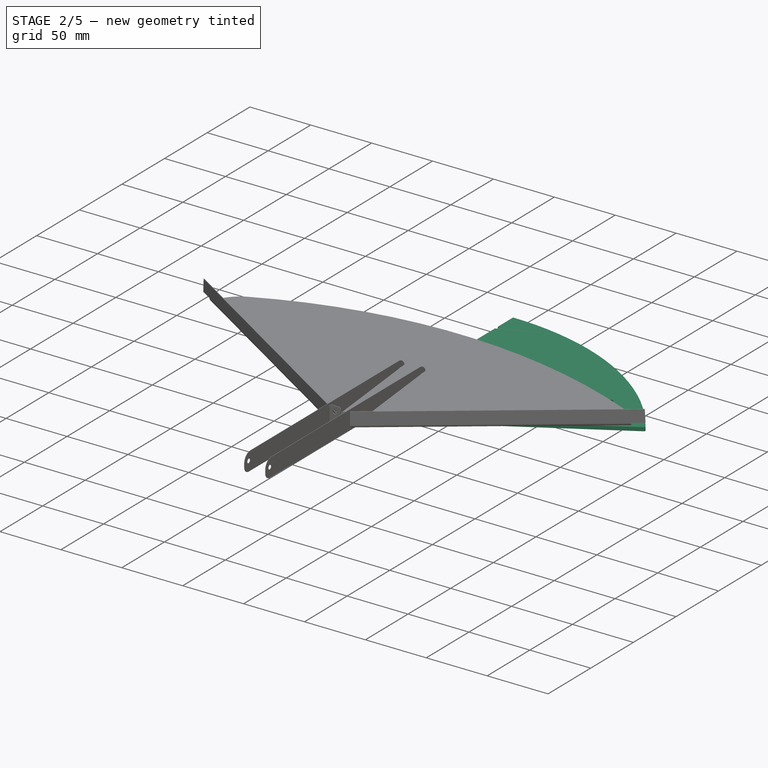
[diagram: stage 2 of 5 — iso view after this stage's code; geometry added in this stage tinted green]
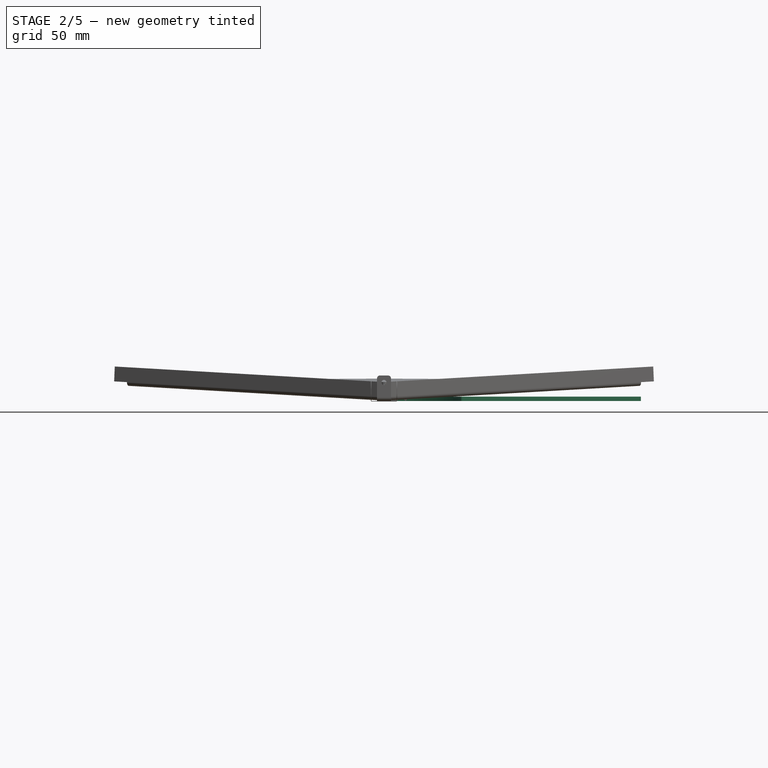
[diagram: stage 2 of 5 — front view after this stage's code; geometry added in this stage tinted green]
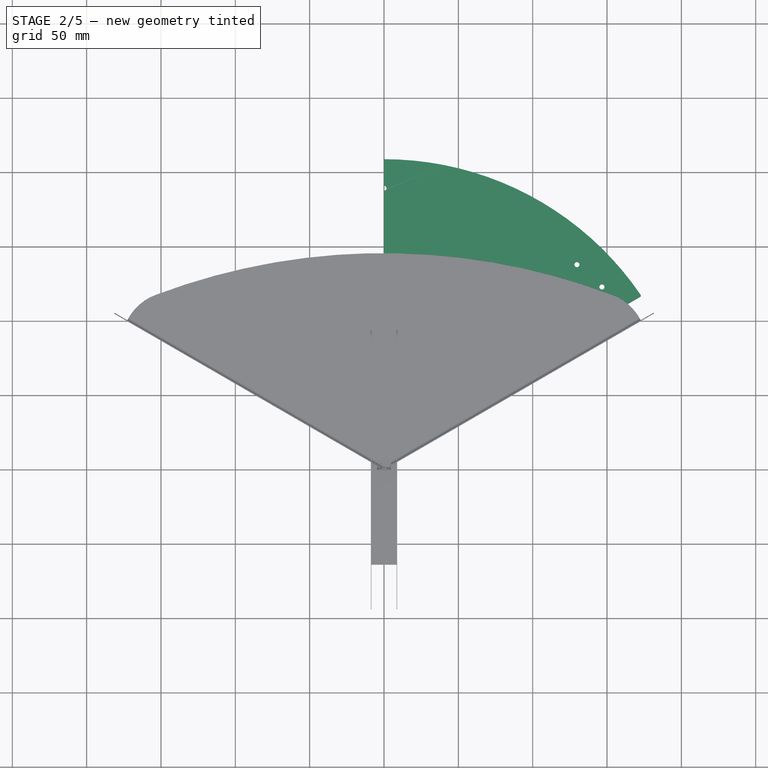
[diagram: stage 2 of 5 — top view after this stage's code; geometry added in this stage tinted green]
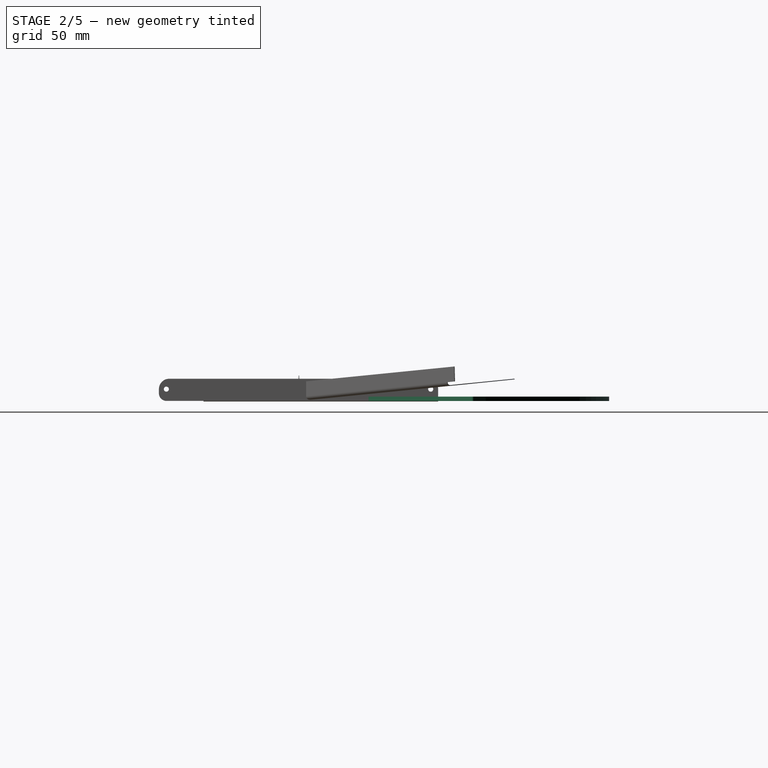
[diagram: stage 2 of 5 — right view after this stage's code; geometry added in this stage tinted green]
FEATURE [PartDesign::Body] Body001003005003013  label="plexiglass_holder_top"
  Group = -> [Sketch082,Pad021,Sketch083,Mirrored029,Pocket041,Sketch084,Pocket042]
  Origin = -> Origin026
  Placement = pos=(0,0,0) rot=(0,0,1;1.0472rad)
  Tip = -> Pocket042
FEATURE [PartDesign::SubShapeBinder] Binder020
  BindCopyOnChange = 0
  BindMode = 0
  ClaimChildren = false
  Context = -> Body001003005003014 [Binder020.]
  Fuse = false
  MakeFace = true
  OffsetFill = false
  OffsetIntersection = false
  OffsetJoinType = 0
  OffsetOpenResult = false
  PartialLoad = false
  Relative = false
  Support = -> [Body001003005003003[Pocket019.Sketch055.]]
  _Version = 2
FEATURE [PartDesign::SubShapeBinder] Binder021
  BindCopyOnChange = 0
  BindMode = 0
  ClaimChildren = false
  Context = -> Body001003005003014 [Binder021.]
  Fuse = false
  MakeFace = true
  OffsetFill = false
  OffsetIntersection = false
  OffsetJoinType = 0
  OffsetOpenResult = false
  PartialLoad = false
  Relative = false
  Support = -> [Body001003005003004[Pocket018.Sketch054.]]
  _Version = 2
FEATURE [PartDesign::CoordinateSystem] Local_CS027
  AttacherType = Attacher::AttachEngine3D
  MapMode = 5
  Support = -> [XY_Plane028]
FEATURE [PartDesign::CoordinateSystem] Local_CS028
  AttacherType = Attacher::AttachEngine3D
  AttachmentOffset = pos=(0,0,0) rot=(0,0,1;0.523599rad)
  MapMode = 5
  Placement = pos=(0,0,0) rot=(0,0,1;0.523599rad)
  Support = -> [XY_Plane028]
FEATURE [PartDesign::Plane] DatumPlane023
  Length = 81.9615
  MapMode = 5
  Placement = pos=(0,0,0) rot=(0,0,1;0.523599rad)
  ResizeMode = 0
  Support = -> [Local_CS028]
  Width = 81.9615
FEATURE [PartDesign::CoordinateSystem] Local_CS029
  AttacherType = Attacher::AttachEngine3D
  AttachmentOffset = pos=(0,16.7432,0) rot=(0,0,1;0.523599rad)
  MapMode = 5
  Placement = pos=(0,16.7432,0) rot=(0,0,1;0.523599rad)
  Support = -> [XY_Plane028]
FEATURE [PartDesign::Pad] Pad022
  Direction = (0,0,1)
  Length = 3
  Length2 = 10
  Profile = -> Sketch047
  ReferenceAxis = -> Sketch047 [N_Axis]
  Type = 0
FEATURE [PartDesign::Pocket] Pocket045
  BaseFeature = -> Pad022
  Direction = (0,0,-1)
  Length = 5
  Length2 = 5
  Midplane = true
  Profile = -> Binder021
  Type = 1
FEATURE [PartDesign::SubShapeBinder] Binder027
  BindCopyOnChange = 0
  BindMode = 0
  ClaimChildren = false
  Context = -> Model [Body001001.Binder027.Edge3]
  Fuse = false
  MakeFace = true
  OffsetFill = false
  OffsetIntersection = false
  OffsetJoinType = 0
  OffsetOpenResult = false
  PartialLoad = false
  Placement = pos=(0,108.372,229) rot=(0.57735,0.57735,0.57735;2.0944rad)
  Relative = true
  _Version = 2
FEATURE [PartDesign::CoordinateSystem] LCS_0005
  AttacherType = Attacher::AttachEngine3D
  MapMode = 2
  Support = -> [X_Axis035]
FEATURE [Sketcher::SketchObject] Sketch104
  FullyConstrained = false
  MapMode = 5
  Placement = pos=(0,0,0) rot=(0.57735,0.57735,0.57735;2.0944rad)
  Support = -> [YZ_Plane035]
  sketch-geometry (3):
    g0: LineSegment StartX=10.9 StartY=0 StartZ=0 EndX=0 EndY=0 EndZ=0
    g1: LineSegment StartX=0 StartY=0 StartZ=0 EndX=0 EndY=17.2 EndZ=0
    g2: GeomPoint X=12.5 Y=0 Z=0
  constraints (7):
    c: PointOnObject(g0,g-1)
    c: Coincident(g0,g-1)
    c: Coincident(g0,g1)
    c: PointOnObject(g1,g-2)
    c: PointOnObject(g2,g-1)
    c: DistanceY(g1) = 17.2
    c: DistanceX(g0,g0) = 10.9
FEATURE [PartDesign::FeaturePython] BaseBend006  # WARN: FeaturePython — macro-defined, semantics opaque (R4)
  BendSide = 0
  BendSketch = -> Sketch104
  MidPlane = true
  Reverse = false
  length = 9.4
  radius = 2
  thickness = 0.5
FEATURE [Sketcher::SketchObject] Sketch105
  AttachmentOffset = pos=(0,5.9,0) rot=(0,0,1;0rad)
  FullyConstrained = true
  MapMode = 5
  Placement = pos=(0,5.9,0) rot=(0,0,1;0rad)
  Support = -> [XY_Plane036]
  sketch-geometry (1):
    g0: Circle CenterX=0 CenterY=0 CenterZ=0 NormalX=0 NormalY=0 NormalZ=1 AngleXU=0 Radius=1.7
  constraints (2):
    c: Coincident(g0,g-1)
    c: Diameter(g0) = 3.4
FEATURE [PartDesign::Plane] DatumPlane024
  AttachmentOffset = pos=(0,0,0) rot=(1,0,0;0.785398rad)
  Length = 61.8921
  MapMode = 5
  Placement = pos=(0,0,0) rot=(1,0,0;0.785398rad)
  ResizeMode = 0
  Support = -> [XY_Plane036]
  Width = 82.6027
FEATURE [PartDesign::Fillet] Fillet002
  Base = -> BaseBend006 [Edge25,Edge8]
  BaseFeature = -> BaseBend006
  Radius = 2
  SupportTransform = false
  UseAllEdges = false
FEATURE [PartDesign::Mirrored] Mirrored038
  BaseFeature = -> Fillet002
  MirrorPlane = -> YZ_Plane035
  Originals = -> [Fillet002]
FEATURE [PartDesign::Pocket] Pocket061
  BaseFeature = -> Mirrored038
  Direction = (0,0,-1)
  Length = 5
  Length2 = 5
  Midplane = true
  Profile = -> Sketch105
  ReferenceAxis = -> Sketch105 [N_Axis]
  Type = 1
FEATURE [Sketcher::SketchObject] Sketch106
  AttachmentOffset = pos=(0,12.5,0) rot=(0,0,1;0rad)
  FullyConstrained = true
  MapMode = 5
  Placement = pos=(0,-2.8e-15,12.5) rot=(1,0,0;1.5708rad)
  Support = -> [XZ_Plane035]
  sketch-geometry (1):
    g0: Circle CenterX=0 CenterY=0 CenterZ=0 NormalX=0 NormalY=0 NormalZ=1 AngleXU=0 Radius=1.7
  constraints (2):
    c: Coincident(g0,g-1)
    c: Diameter(g0) = 3.4
FEATURE [PartDesign::Pocket] Pocket062
  BaseFeature = -> Pocket061
  Direction = (0,1,2e-16)
  Length = 5
  Length2 = 5
  Midplane = true
  Profile = -> Sketch106
  ReferenceAxis = -> Sketch106 [N_Axis]
  Type = 1
FEATURE [PartDesign::FeaturePython] Bend017  # WARN: FeaturePython — macro-defined, semantics opaque (R4)
  AutoMiter = true
  BaseFeature = -> Bend016
  BendType = 0
  LengthList = [25]
  LengthSpec = 0
  ReliefFactor = 0.7
  UseReliefFactor = false
  angle = 90
  baseObject = -> Bend016 [Edge24]
  bendAList = [90]
  extend1 = 0
  extend2 = 0
  gap1 = 0
  gap2 = 3
  invert = false
  kfactor = 0.5
  length = 25
  maxExtendDist = 5
  minGap = 0.1
  minReliefGap = 1
  miterangle1 = 0
  miterangle2 = 0
  offset = 0
  radius = 0.01
  reliefType = 0
  reliefd = 0.1
  reliefw = 0.1
  sketchflip = false
  sketchinvert = false
  unfold = false
FEATURE [Sketcher::SketchObject] Sketch117
  FullyConstrained = true
  MapMode = 5
  Support = -> [XY_Plane038]
  sketch-geometry (5):
    g0: Circle CenterX=0 CenterY=6 CenterZ=0 NormalX=0 NormalY=0 NormalZ=1 AngleXU=0 Radius=1.7
    g1: Circle CenterX=0 CenterY=19 CenterZ=0 NormalX=0 NormalY=0 NormalZ=1 AngleXU=0 Radius=1.7
    g2: LineSegment StartX=0 StartY=0 StartZ=0 EndX=0 EndY=6 EndZ=0
    g3: LineSegment StartX=0 StartY=6 StartZ=0 EndX=0 EndY=19 EndZ=0
    g4: LineSegment StartX=0 StartY=19 StartZ=0 EndX=0 EndY=25 EndZ=0
  constraints (13):
    c: PointOnObject(g0,g-2)
    c: PointOnObject(g1,g-2)
    c: Coincident(g2,g-1)
    c: Coincident(g2,g0)
    c: Coincident(g3,g0)
    c: Coincident(g3,g1)
    c: Coincident(g4,g1)
    c: PointOnObject(g4,g-2)
    c: DistanceY(g4) = 25
    c: Equal(g2,g4)
    c: Distance(g2) = 6
    c: Equal(g0,g1)
    c: Diameter(g0) = 3.4
FEATURE [PartDesign::Pocket] Pocket071
  BaseFeature = -> Bend017
  Direction = (0,0,-1)
  Length = 5
  Length2 = 5
  Midplane = true
  Profile = -> Sketch117
  ReferenceAxis = -> Sketch117 [N_Axis]
  Type = 1
FEATURE [Sketcher::SketchObject] Sketch120
  AttachmentOffset = pos=(0,-70,0) rot=(0,0,1;0rad)
  FullyConstrained = true
  MapMode = 5
  Placement = pos=(0,-70,0) rot=(0,0,1;0rad)
  Support = -> [XY_Plane016]
  sketch-geometry (1):
    g0: Circle CenterX=0 CenterY=0 CenterZ=0 NormalX=0 NormalY=0 NormalZ=1 AngleXU=0 Radius=4.25
  constraints (2):
    c: Coincident(g0,g-1)
    c: Diameter(g0) = 8.5
FEATURE [Sketcher::SketchObject] Sketch121
  FullyConstrained = true
  MapMode = 5
  Support = -> [XY_Plane018]
  sketch-geometry (7):
    g0: ArcOfCircle CenterX=0 CenterY=0 CenterZ=0 NormalX=0 NormalY=0 NormalZ=1 AngleXU=0 Radius=196.875 StartAngle=0.763183 EndAngle=1.5708
    g1: LineSegment StartX=142.27 StartY=136.085 StartZ=0 EndX=150.91 EndY=127.052 EndZ=0
    g2: LineSegment StartX=150.91 StartY=127.052 StartZ=0 EndX=159.551 EndY=118.019 EndZ=0
    g3: LineSegment StartX=159.551 StartY=118.019 StartZ=0 EndX=141.485 EndY=100.739 EndZ=0
    g4: LineSegment StartX=0 StartY=0 StartZ=0 EndX=175.512 EndY=101.332 EndZ=0
    g5: LineSegment StartX=141.485 StartY=100.739 StartZ=0 EndX=124.204 EndY=118.805 EndZ=0
    g6: LineSegment StartX=124.204 StartY=118.805 StartZ=0 EndX=142.27 EndY=136.085 EndZ=0
  constraints (21):
    c: Coincident(g0,g-1)
    c: PointOnObject(g0,g-2)
    c: Coincident(g2,g1)
    c: Parallel(g1,g2)
    c: Equal(g2,g1)
    c: Distance(g2,g0) = 25
    c: Tangent(g1,g0) = 1.5708
    c: DistanceY(g0) = 196.875
    c: Coincident(g3,g2)
    c: Distance(g3) = 25
    c: Coincident(g4,g0)
    c: PointOnObject(g4,g2)
    c: Perpendicular(g2,g3)
    c: Angle(g-1,g4) = 0.523599
    c: Distance(g3,g4) = 16.5
    c: Distance(g2,g4) = 22.4325
    c: Coincident(g5,g3)
    c: Perpendicular(g5,g3)
    c: Coincident(g6,g5)
    c: Coincident(g6,g0)
    c: Perpendicular(g5,g6)
FEATURE [Sketcher::SketchObject] Sketch053
  ExternalGeometry = -> [Sketch121]
  FullyConstrained = true
  MapMode = 5
  Support = -> [XY_Plane018]
  sketch-geometry (7):
    g0: LineSegment StartX=1.11e-14 StartY=181.875 StartZ=0 EndX=1.21e-14 EndY=196.875 EndZ=0
    g1: ArcOfCircle CenterX=0 CenterY=0 CenterZ=0 NormalX=0 NormalY=0 NormalZ=1 AngleXU=0 Radius=181.875 StartAngle=0.768652 EndAngle=1.5708
    g2: ArcOfCircle CenterX=0 CenterY=0 CenterZ=0 NormalX=0 NormalY=0 NormalZ=1 AngleXU=0 Radius=196.875 StartAngle=0.768289 EndAngle=1.5708
    g3: LineSegment StartX=132.151 StartY=126.406 StartZ=0 EndX=141.545 EndY=135.392 EndZ=0
    g4: ArcOfCircle CenterX=140.854 CenterY=136.115 CenterZ=0 NormalX=0 NormalY=0 NormalZ=1 AngleXU=0 Radius=1 StartAngle=5.47557 EndAngle=7.05147
    g5: ArcOfCircle CenterX=131.46 CenterY=127.129 CenterZ=0 NormalX=0 NormalY=0 NormalZ=1 AngleXU=0 Radius=1 StartAngle=3.91024 EndAngle=5.47557
    g6: GeomPoint X=131.43 Y=125.717 Z=0
  constraints (18):
    c: PointOnObject(g0,g-2)
    c: PointOnObject(g0,g-2)
    c: DistanceY(g0) = 196.875
    c: Tangent(g3,g4) = -1.5708
    c: Tangent(g2,g4) = -1.5708
    c: Tangent(g3,g5) = -1.5708
    c: Tangent(g1,g5) = 1.5708
    c: Equal(g5,g4)
    c: Diameter(g5) = 2
    c: Perpendicular(g-3,g3)
    c: PointOnObject(g-3,g3)
    c: Coincident(g2,g0)
    c: Coincident(g1,g0)
    c: PointOnObject(g6,g3)
    c: PointOnObject(g6,g1)
    c: Coincident(g1,g2)
    c: DistanceY(g0,g0) = 15
    c: Coincident(g1,g-1)
FEATURE [PartDesign::Pad] Pad015
  Direction = (0,0,1)
  Length = 3
  Length2 = 10
  Profile = -> Sketch053
  ReferenceAxis = -> Sketch053 [N_Axis]
  Type = 0
FEATURE [PartDesign::Mirrored] Mirrored020
  BaseFeature = -> Pad015
  MirrorPlane = -> Sketch053 [V_Axis]
  Originals = -> [Pad015]
  Refine = true
FEATURE [Sketcher::SketchObject] Sketch054
  ExternalGeometry = -> [Sketch053]
  FullyConstrained = true
  MapMode = 5
  Support = -> [XY_Plane018]
  sketch-geometry (6):
    g0: ArcOfCircle CenterX=0 CenterY=0 CenterZ=0 NormalX=0 NormalY=0 NormalZ=1 AngleXU=0 Radius=189.373 StartAngle=0.763183 EndAngle=1.5708
    g1: Circle CenterX=129.748 CenterY=137.941 CenterZ=0 NormalX=0 NormalY=0 NormalZ=1 AngleXU=0 Radius=1.7
    g2: Circle CenterX=1.16e-14 CenterY=189.373 CenterZ=0 NormalX=0 NormalY=0 NormalZ=1 AngleXU=0 Radius=1.7
    g3: Circle CenterX=-129.748 CenterY=137.941 CenterZ=0 NormalX=0 NormalY=0 NormalZ=1 AngleXU=0 Radius=1.7
    g4: LineSegment StartX=132.151 StartY=126.406 StartZ=0 EndX=136.848 EndY=130.899 EndZ=0
    g5: LineSegment StartX=136.848 StartY=130.899 StartZ=0 EndX=141.545 EndY=135.392 EndZ=0
  constraints (15):
    c: PointOnObject(g1,g0)
    c: Diameter(g1) = 3.4
    c: Coincident(g2,g0)
    c: Equal(g2,g1)
    c: Equal(g3,g1)
    c: Symmetric(g1,g3,g-2)
    c: Coincident(g5,g4)
    c: Equal(g4,g5)
    c: Parallel(g4,g5)
    c: Coincident(g0,g4)
    c: Coincident(g0,g-1)
    c: Distance(g1,g0) = 10
    c: PointOnObject(g2,g-2)
    c: Coincident(g4,g-3)
    c: Coincident(g5,g-3)
FEATURE [PartDesign::Pocket] Pocket018
  BaseFeature = -> Mirrored020
  Direction = (0,0,-1)
  Length = 5
  Length2 = 5
  Midplane = true
  Profile = -> Sketch054
  ReferenceAxis = -> Sketch054 [N_Axis]
  Type = 1
FEATURE [PartDesign::Body] Body001003005003004  label="plexiglass_holder_tech_top"
  Group = -> [Sketch053,Pad015,Mirrored020,Pocket018,Local_CS019,Sketch054,Sketch121]
  Origin = -> Origin017
  Placement = pos=(0,0,0) rot=(0,0,1;1.0472rad)
  Tip = -> Pocket018
FEATURE [PartDesign::SubShapeBinder] Binder037
  BindCopyOnChange = 0
  BindMode = 0
  ClaimChildren = false
  Context = -> Body001003005003014 [Binder037.]
  Fuse = false
  MakeFace = true
  OffsetFill = false
  OffsetIntersection = false
  OffsetJoinType = 0
  OffsetOpenResult = false
  PartialLoad = false
  Relative = false
  Support = -> [Body001003005003004[Sketch121.Edge2]]
  _Version = 2
FEATURE [PartDesign::CoordinateSystem] Local_CS040
  AttacherType = Attacher::AttachEngine3D
  AttachmentOffset = pos=(0,0,0) rot=(-0.57735,-0.57735,-0.57735;2.0944rad)
  MapMode = 7
  Placement = pos=(150.91,127.052,0) rot=(0,0,1;2.33398rad)
  Support = -> [Binder037]
FEATURE [PartDesign::SubShapeBinder] Binder038
  BindCopyOnChange = 0
  BindMode = 0
  ClaimChildren = false
  Context = -> Body001003005003014 [Binder038.]
  Fuse = false
  MakeFace = true
  OffsetFill = false
  OffsetIntersection = false
  OffsetJoinType = 0
  OffsetOpenResult = false
  PartialLoad = false
  Placement = pos=(150.91,127.052,0) rot=(0,0,1;2.33398rad)
  Relative = true
  Support = -> [tech_pillar[Pocket071.Sketch117.]]
  _Version = 2
FEATURE [PartDesign::Pocket] Pocket059
  BaseFeature = -> Pocket045
  Direction = (0,0,-1)
  Length = 5
  Length2 = 5
  Midplane = true
  Profile = -> Binder038
  Type = 1
FEATURE [PartDesign::Body] Body_6  label="plexiglass_holder_bottom_tech"
  Group = -> [LCS_0004,Sketch101,Pad026,Pocket058,Mirrored037,Binder039,Binder040,Pocket078]
  Origin = -> Origin034
  Tip = -> Pocket078
FEATURE [Sketcher::SketchObject] Sketch125
  AttachmentOffset = pos=(0,25,0) rot=(0,0,1;0rad)
  FullyConstrained = true
  MapMode = 5
  Placement = pos=(0,-5.6e-15,25) rot=(1,0,0;1.5708rad)
  Support = -> [XZ_Plane001]
  sketch-geometry (1):
    g0: Circle CenterX=0 CenterY=0 CenterZ=0 NormalX=0 NormalY=0 NormalZ=1 AngleXU=0 Radius=7
  constraints (2):
    c: Coincident(g0,g-1)
    c: Diameter(g0) = 14
FEATURE [Sketcher::SketchObject] Sketch126
  FullyConstrained = true
  MapMode = 5
  Support = -> [XY_Plane038]
  sketch-geometry (3):
    g0: LineSegment StartX=12.5 StartY=25 StartZ=0 EndX=12.5 EndY=17.5 EndZ=0
    g1: LineSegment StartX=12.5 StartY=25 StartZ=0 EndX=5 EndY=25 EndZ=0
    g2: ArcOfCircle CenterX=5 CenterY=17.5 CenterZ=0 NormalX=0 NormalY=0 NormalZ=1 AngleXU=0 Radius=7.5 StartAngle=0 EndAngle=1.5708
  constraints (8):
    c: Vertical(g0)
    c: DistanceX(g0) = 12.5
    c: DistanceY(g0) = 25
    c: Coincident(g1,g0)
    c: Horizontal(g1)
    c: Tangent(g2,g0) = 1.5708
    c: Tangent(g2,g1) = -1.5708
    c: Diameter(g2) = 15
FEATURE [PartDesign::Pocket] Pocket080
  BaseFeature = -> Pocket071
  Direction = (0,0,-1)
  Length = 5
  Length2 = 5
  Midplane = true
  Profile = -> Sketch126
  ReferenceAxis = -> Sketch126 [N_Axis]
  Type = 1
FEATURE [PartDesign::Body] Body001003005003  label="basement"
  Group = -> [Sketch048,Pad013,Sketch049,Binder004,DatumPlane017,Sketch050,Local_CS017,Sketch051,Binder005,DatumPlane018,Sketch057,Sketch058,Pocket027,Local_CS021,Local_CS022,DatumPlane019,DatumPlane020,Sketch061,Sketch062,Sketch063,Sketch064,Sketch075,Pocket036,Binder018,Binder023,Binder036,Pocket074,MultiTransform,Mirrored,PolarPattern015,Sketch120,Pocket087,PolarPattern018,Sketch132,Pad030]
  Origin = -> Origin015
  Tip = -> Pad030
FEATURE [Sketcher::SketchObject] Sketch133
  FullyConstrained = true
  MapMode = 5
  Placement = pos=(0,0,0) rot=(1,0,0;1.5708rad)
  Support = -> [XZ_Plane037]
  sketch-geometry (4):
    g0: Circle CenterX=0 CenterY=41 CenterZ=0 NormalX=0 NormalY=0 NormalZ=1 AngleXU=0 Radius=1.7
    g1: Circle CenterX=0 CenterY=113 CenterZ=0 NormalX=0 NormalY=0 NormalZ=1 AngleXU=0 Radius=1.7
    g2: GeomPoint X=0 Y=77 Z=0
    g3: GeomPoint X=0 Y=154 Z=0
  constraints (8):
    c: PointOnObject(g0,g-2)
    c: PointOnObject(g1,g-2)
    c: DistanceY(g3) = 154
    c: Symmetric(g3,g-1,g2)
    c: Symmetric(g0,g1,g2)
    c: DistanceY(g0,g1) = 72
    c: Equal(g0,g1)
    c: Diameter(g0) = 3.4
FEATURE [PartDesign::Pocket] Pocket090
  BaseFeature = -> Pocket080
  Direction = (0,1,2e-16)
  Length = 5
  Length2 = 5
  Midplane = true
  Profile = -> Sketch133
  ReferenceAxis = -> Sketch133 [N_Axis]
  Type = 1
FEATURE [PartDesign::Body] tech_pillar  label="tech_pillar_material_0.50ansi"
  Group = -> [LCS_0006,Sketch116,BaseBend008,Bend015,Bend016,Bend017,Sketch117,Pocket071,Sketch118,Sketch126,Pocket080,Sketch127,Sketch133,Pocket090]
  Origin = -> Origin037
  Tip = -> Pocket090
FEATURE [PartDesign::SubShapeBinder] Binder047
  BindCopyOnChange = 0
  BindMode = 0
  ClaimChildren = false
  Context = -> Body001003005003014 [Binder047.]
  Fuse = false
  MakeFace = true
  OffsetFill = false
  OffsetIntersection = false
  OffsetJoinType = 0
  OffsetOpenResult = false
  PartialLoad = false
  Placement = pos=(104.99,73.8951,1.5) rot=(0,0,1;0.523599rad)
  Relative = false
  Support = -> [Body001[Sketch073.]]
  _Version = 2
FEATURE [PartDesign::CoordinateSystem] Local_CS045
  AttacherType = Attacher::AttachEngine3D
  AttachmentOffset = pos=(119.5,-3,1.5) rot=(0,0,1;0rad)
  MapMode = 5
  Placement = pos=(104.99,73.8951,1.5) rot=(0,0,1;0.523599rad)
  Support = -> [Local_CS029]
FEATURE [PartDesign::Hole] Hole001
  BaseFeature = -> Pocket059
  CustomThreadClearance = 0
  Depth = 25
  DepthType = 0
  Diameter = 6.5
  DrillForDepth = false
  DrillPoint = 1
  DrillPointAngle = 118
  HoleCutCountersinkAngle = 90
  HoleCutCustomValues = false
  HoleCutDepth = 0
  HoleCutDiameter = 6.1
  HoleCutType = 0
  ModelThread = false
  Profile = -> Binder047
  Reversed = true
  Tapered = false
  TaperedAngle = 90
  ThreadClass = 0
  ThreadDepth = 25
  ThreadDepthType = 0
  ThreadDirection = 0
  ThreadFit = 0
  ThreadSize = 0
  ThreadType = 0
  Threaded = false
  UseCustomThreadClearance = false
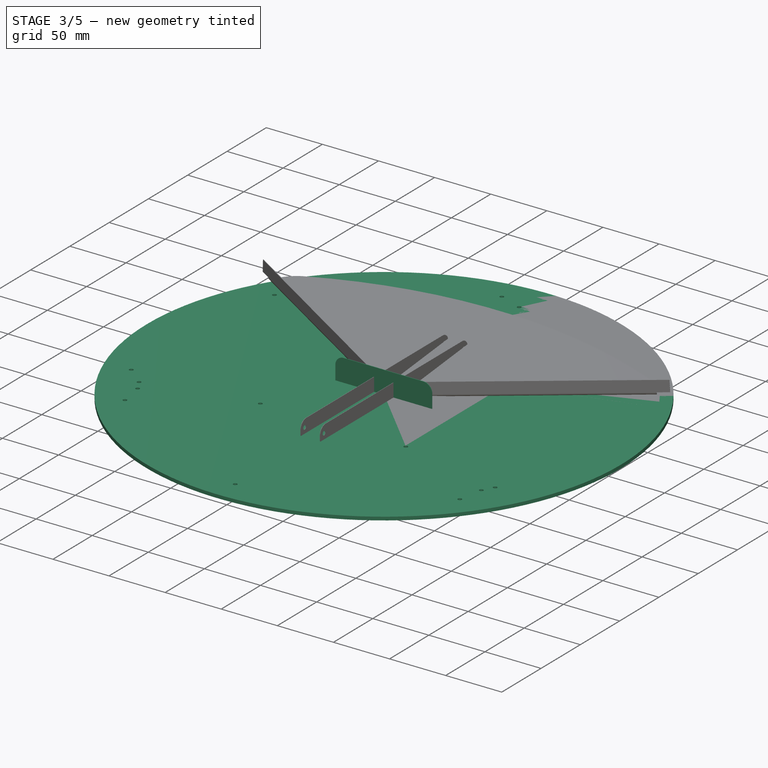
[diagram: stage 3 of 5 — iso view after this stage's code; geometry added in this stage tinted green]
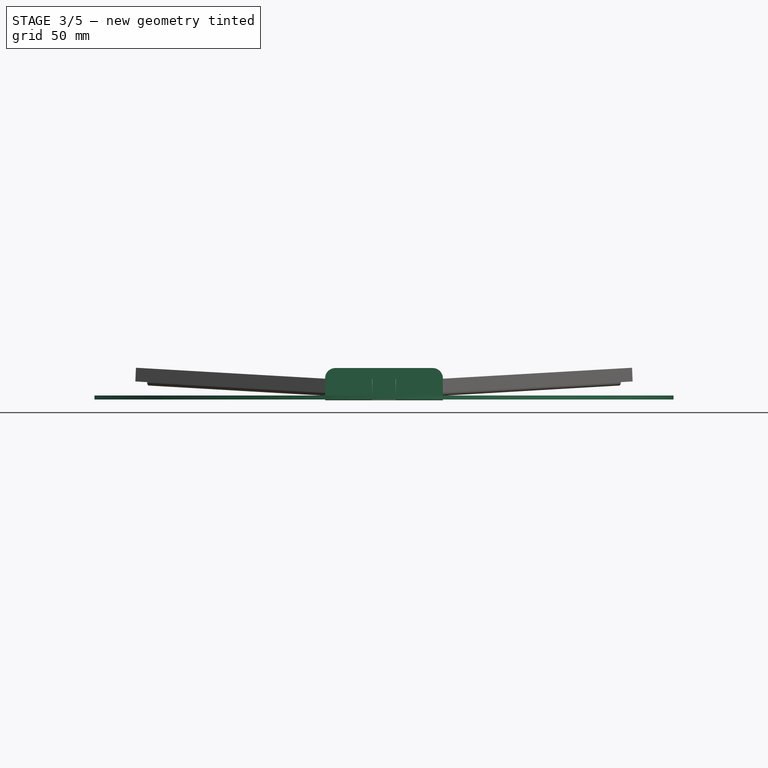
[diagram: stage 3 of 5 — front view after this stage's code; geometry added in this stage tinted green]
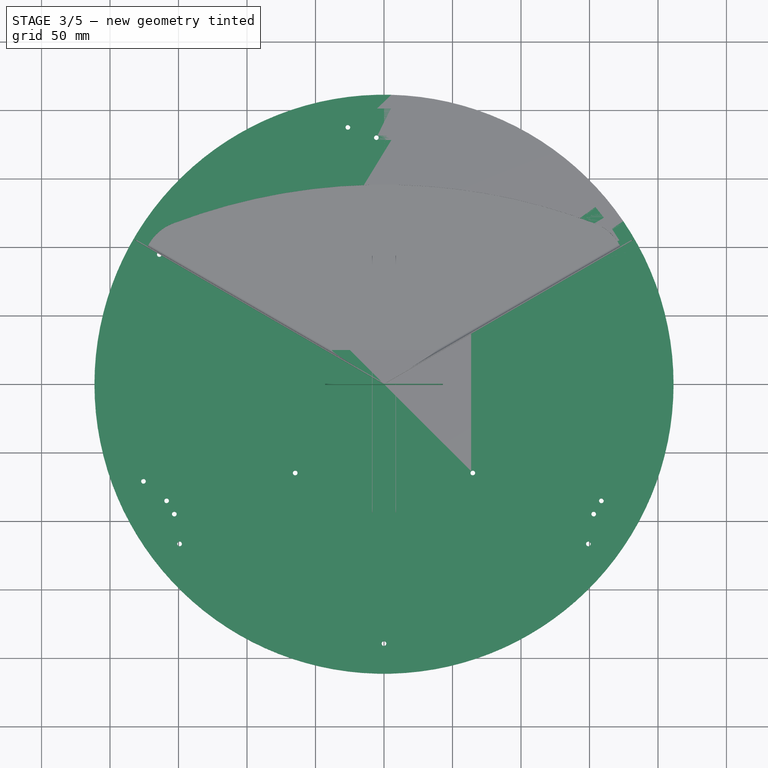
[diagram: stage 3 of 5 — top view after this stage's code; geometry added in this stage tinted green]
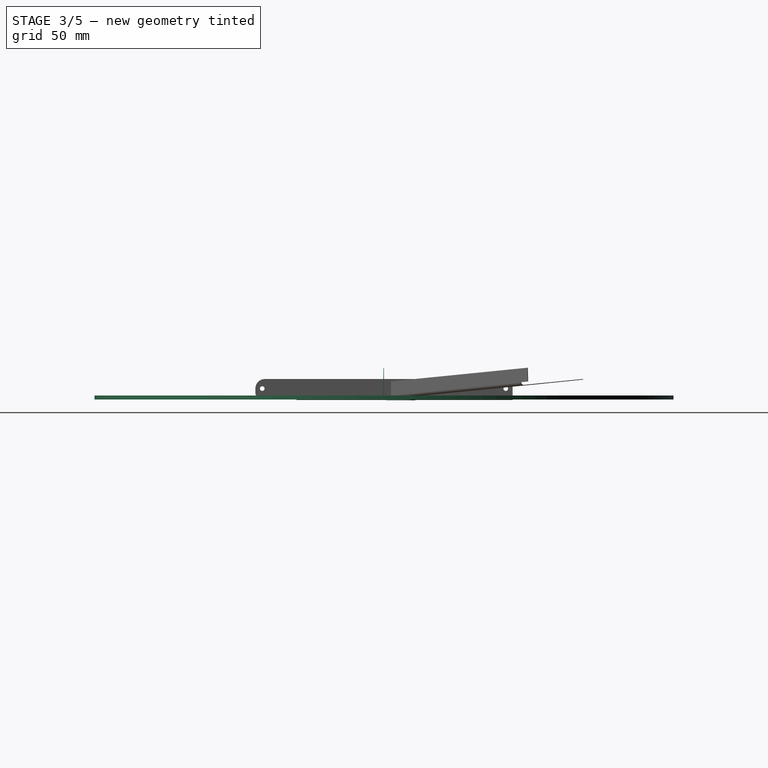
[diagram: stage 3 of 5 — right view after this stage's code; geometry added in this stage tinted green]
FEATURE [PartDesign::CoordinateSystem] Local_CS013
  AttacherType = Attacher::AttachEngine3D
  MapMode = 5
  Support = -> [XY_Plane015]
FEATURE [PartDesign::CoordinateSystem] Local_CS014
  AttacherType = Attacher::AttachEngine3D
  AttachmentOffset = pos=(0,0,157) rot=(0,0,-1;2.0944rad)
  MapMode = 6
  Placement = pos=(-173.205,-116.743,157) rot=(0,0,1;1.0472rad)
  Support = -> [Sketch003,XY_Plane001]
FEATURE [PartDesign::CoordinateSystem] Local_CS015
  AttacherType = Attacher::AttachEngine3D
  AttachmentOffset = pos=(0,0,157) rot=(0,0,1;0rad)
  MapMode = 6
  Placement = pos=(187.705,-91.6284,157) rot=(0,0,1;3.14159rad)
  Support = -> [Sketch003,XY_Plane001]
FEATURE [App::Link] Body001003005002
  AssemblyType = Part::Link
  AttachedBy = #Local_CS013
  AttachedTo = Body001001#Local_CS025
  AttachmentOffset = pos=(0,0,0) rot=(0,0,1;3.14159rad)
  LinkPlacement = pos=(0,0,157) rot=(0,0,1;3.14159rad)
  LinkedObject = -> Body001003005
  Placement = pos=(0,0,157) rot=(0,0,1;3.14159rad)
  SolverId = Asm4EE
FEATURE [PartDesign::CoordinateSystem] Local_CS016
  AttacherType = Attacher::AttachEngine3D
  AttachmentOffset = pos=(0,0,0) rot=(0,0,1;0.523599rad)
  MapMode = 5
  Placement = pos=(0,0,0) rot=(0,0,1;0.523599rad)
  Support = -> [XY_Plane015]
FEATURE [PartDesign::Plane] DatumPlane015
  Length = 81.9615
  MapMode = 5
  Placement = pos=(0,0,0) rot=(0,0,1;0.523599rad)
  ResizeMode = 0
  Support = -> [Local_CS016]
  Width = 81.9615
FEATURE [PartDesign::Plane] DatumPlane016
  Length = 79.989
  MapMode = 4
  Placement = pos=(86.82,84.1932,0) rot=(0.377964,0.654654,0.654654;2.41886rad)
  ResizeMode = 0
  Width = 61.6877
FEATURE [Sketcher::SketchObject] Sketch048
  FullyConstrained = true
  MapMode = 5
  Support = -> [XY_Plane016]
  sketch-geometry (1):
    g0: Circle CenterX=0 CenterY=0 CenterZ=0 NormalX=0 NormalY=0 NormalZ=1 AngleXU=0 Radius=211.375
  constraints (2):
    c: Coincident(g0,g-1)
    c: Radius(g0) = 211.375
FEATURE [PartDesign::Pad] Pad013
  Direction = (0,0,1)
  Length = 3
  Length2 = 10
  Profile = -> Sketch048
  ReferenceAxis = -> Sketch048 [N_Axis]
  Type = 0
FEATURE [PartDesign::Body] Body001003005003003
  Group = -> [Sketch052,Pad014,Pocket019,Mirrored019,Local_CS018,Sketch055]
  Origin = -> Origin016
  Tip = -> Mirrored019
FEATURE [PartDesign::SubShapeBinder] Binder005
  AttacherType = Attacher::AttachEngine3D
  AttachmentOffset = pos=(0,0,0) rot=(0,0,1;1.0472rad)
  BindCopyOnChange = 0
  BindMode = 0
  ClaimChildren = false
  Context = -> Body001003005003 [Binder005.]
  Fuse = false
  MakeFace = true
  MapMode = 5
  OffsetFill = false
  OffsetIntersection = false
  OffsetJoinType = 0
  OffsetOpenResult = false
  PartialLoad = false
  Placement = pos=(0,0,0) rot=(0,0,1;1.0472rad)
  Relative = false
  _Version = 2
FEATURE [PartDesign::Plane] DatumPlane018
  Length = 79.989
  MapMode = 4
  Placement = pos=(0,0,0) rot=(0.186157,0.694747,0.694747;2.77349rad)
  ResizeMode = 0
  Support = -> [Binder005]
  Width = 61.6877
FEATURE [Sketcher::SketchObject] Sketch057
  AttachmentOffset = pos=(195.697,-11.5,0) rot=(0,0,1;0rad)
  FullyConstrained = true
  MapMode = 5
  Placement = pos=(4.6e-14,195.697,-11.5) rot=(0.57735,0.57735,0.57735;2.0944rad)
  Support = -> [YZ_Plane015]
  sketch-geometry (1):
    g0: Circle CenterX=0 CenterY=0 CenterZ=0 NormalX=0 NormalY=0 NormalZ=1 AngleXU=0 Radius=1.7
  constraints (2):
    c: Coincident(g0,g-1)
    c: Diameter(g0) = 3.4
FEATURE [Sketcher::SketchObject] Sketch058
  AttachmentOffset = pos=(179.522,-11.5,0) rot=(0,0,1;0rad)
  FullyConstrained = true
  MapMode = 5
  Placement = pos=(4.24e-14,179.522,-11.5) rot=(0.57735,0.57735,0.57735;2.0944rad)
  Support = -> [YZ_Plane015]
  sketch-geometry (1):
    g0: Circle CenterX=0 CenterY=0 CenterZ=0 NormalX=0 NormalY=0 NormalZ=1 AngleXU=0 Radius=1.7
  constraints (2):
    c: Coincident(g0,g-1)
    c: Diameter(g0) = 3.4
FEATURE [PartDesign::Pocket] Pocket027
  BaseFeature = -> Pad013
  Direction = (-1,2e-16,-3e-16)
  Length = 5
  Length2 = 5
  Midplane = true
  Profile = -> Sketch058
  ReferenceAxis = -> Sketch058 [N_Axis]
  Type = 1
FEATURE [Sketcher::SketchObject] Sketch059
  AttachmentOffset = pos=(195.697,11.5,0) rot=(0,0,1;0rad)
  FullyConstrained = true
  MapMode = 5
  Placement = pos=(4.09e-14,195.697,11.5) rot=(0.57735,0.57735,0.57735;2.0944rad)
  Support = -> [YZ_Plane001]
  sketch-geometry (1):
    g0: Circle CenterX=0 CenterY=0 CenterZ=0 NormalX=0 NormalY=0 NormalZ=1 AngleXU=0 Radius=1.7
  constraints (2):
    c: Coincident(g0,g-1)
    c: Diameter(g0) = 3.4
FEATURE [Sketcher::SketchObject] Sketch060
  AttachmentOffset = pos=(179.522,11.5,0) rot=(0,0,1;0rad)
  FullyConstrained = true
  MapMode = 5
  Placement = pos=(3.73e-14,179.522,11.5) rot=(0.57735,0.57735,0.57735;2.0944rad)
  Support = -> [YZ_Plane001]
  sketch-geometry (1):
    g0: Circle CenterX=0 CenterY=0 CenterZ=0 NormalX=0 NormalY=0 NormalZ=1 AngleXU=0 Radius=1.7
  constraints (2):
    c: Coincident(g0,g-1)
    c: Diameter(g0) = 3.4
FEATURE [PartDesign::CoordinateSystem] Local_CS021
  AttacherType = Attacher::AttachEngine3D
  AttachmentOffset = pos=(0,0,0) rot=(0,0,1;2.0944rad)
  MapMode = 5
  Placement = pos=(0,0,0) rot=(0,0,1;2.0944rad)
  Support = -> [XY_Plane016]
FEATURE [PartDesign::CoordinateSystem] Local_CS022
  AttacherType = Attacher::AttachEngine3D
  AttachmentOffset = pos=(0,0,0) rot=(0,0,-1;2.0944rad)
  MapMode = 5
  Placement = pos=(0,0,0) rot=(0,0,-1;2.0944rad)
  Support = -> [XY_Plane016]
FEATURE [PartDesign::Plane] DatumPlane019
  Length = 81.9615
  MapMode = 5
  Placement = pos=(0,0,0) rot=(0,0,1;2.0944rad)
  ResizeMode = 0
  Support = -> [Local_CS021]
  Width = 81.9615
FEATURE [PartDesign::Plane] DatumPlane020
  Length = 81.9615
  MapMode = 5
  Placement = pos=(0,0,0) rot=(0,0,-1;2.0944rad)
  ResizeMode = 0
  Support = -> [Local_CS022]
  Width = 81.9615
FEATURE [Sketcher::SketchObject] Sketch061
  AttachmentOffset = pos=(0,195.697,0) rot=(0,0,1;0rad)
  FullyConstrained = true
  MapMode = 5
  Placement = pos=(-169.478,-97.8483,0) rot=(0,0,1;2.0944rad)
  Support = -> [DatumPlane019]
  sketch-geometry (17):
    g0: LineSegment StartX=-11.5 StartY=-8.0875 StartZ=0 EndX=-11.5 EndY=8.0875 EndZ=0
    g1: ArcOfCircle CenterX=-11.5 CenterY=8.0875 CenterZ=0 NormalX=0 NormalY=0 NormalZ=1 AngleXU=0 Radius=1.5875 StartAngle=1.5708 EndAngle=4.71239
    g2: LineSegment StartX=-11.5 StartY=6.5 StartZ=0 EndX=8.325 EndY=6.5 EndZ=0
    g3: LineSegment StartX=8.325 StartY=6.5 StartZ=0 EndX=8.325 EndY=0 EndZ=0
    g4: LineSegment StartX=8.325 StartY=0 StartZ=0 EndX=11.5 EndY=0 EndZ=0
    g5: LineSegment StartX=11.5 StartY=0 StartZ=0 EndX=11.5 EndY=6.5 EndZ=0
    g6: LineSegment StartX=-11.5 StartY=9.675 StartZ=0 EndX=8.325 EndY=9.675 EndZ=0
    g7: ArcOfCircle CenterX=8.325 CenterY=6.5 CenterZ=0 NormalX=0 NormalY=0 NormalZ=1 AngleXU=0 Radius=3.175 StartAngle=0 EndAngle=1.5708
    g8: GeomPoint X=8.325 Y=-6.5 Z=0
    g9: ArcOfCircle CenterX=-11.5 CenterY=11.5875 CenterZ=0 NormalX=0 NormalY=0 NormalZ=1 AngleXU=0 Radius=1.5875 StartAngle=1.5708 EndAngle=4.71239
    g10: LineSegment StartX=-11.5 StartY=10 StartZ=0 EndX=8.325 EndY=10 EndZ=0
    g11: LineSegment StartX=8.325 StartY=10 StartZ=0 EndX=8.325 EndY=0 EndZ=0
    g12: LineSegment StartX=8.325 StartY=0 StartZ=0 EndX=11.5 EndY=0 EndZ=0
    g13: LineSegment StartX=11.5 StartY=0 StartZ=0 EndX=11.5 EndY=10 EndZ=0
    g14: LineSegment StartX=-11.5 StartY=13.175 StartZ=0 EndX=8.325 EndY=13.175 EndZ=0
    g15: ArcOfCircle CenterX=8.325 CenterY=10 CenterZ=0 NormalX=0 NormalY=0 NormalZ=1 AngleXU=0 Radius=3.175 StartAngle=1.5915e-12 EndAngle=1.5708
    g16: GeomPoint X=8.325 Y=-10 Z=0
  constraints (40):
    c: Horizontal(g2)
    c: PointOnObject(g3,g-1)
    c: Vertical(g3)
    c: Coincident(g4,g3)
    c: PointOnObject(g4,g-1)
    c: Coincident(g5,g4)
    c: Vertical(g5)
    c: Horizontal(g6)
    c: Tangent(g7,g5) = -1.5708
    c: Tangent(g7,g6) = 1.5708
    c: DistanceX(g4) = 11.5
    c: Tangent(g2,g1) = -1.5708
    c: Tangent(g6,g1) = 1.5708
    c: Diameter(g1) = 3.175
    c: DistanceX(g1) = -11.5
    c: Coincident(g7,g3)
    c: Coincident(g3,g2)
    c: Symmetric(g8,g2,g3)
    c: DistanceY(g8,g2) = 13  'cut_width'
    c: Horizontal(g10)
    c: PointOnObject(g11,g-1)
    c: Vertical(g11)
    c: Coincident(g12,g11)
    c: PointOnObject(g12,g-1)
    c: Coincident(g13,g12)
    c: Vertical(g13)
    c: Horizontal(g14)
    c: Tangent(g15,g13) = -1.5708
    c: Tangent(g15,g14) = 1.5708
    c: DistanceX(g12) = 11.5
    c: Tangent(g10,g9) = -1.5708
    c: Tangent(g14,g9) = 1.5708
    c: Diameter(g9) = 3.175
    c: DistanceX(g9) = -11.5
    c: Coincident(g15,g11)
    c: Coincident(g11,g10)
    c: Symmetric(g16,g10,g11)
    c: DistanceY(g16,g10) = 20  'cut_width'
    c: Coincident(g0,g1)
    c: Symmetric(g0,g0,g-1)
FEATURE [Sketcher::SketchObject] Sketch062
  AttachmentOffset = pos=(0,195.697,0) rot=(0,0,1;0rad)
  FullyConstrained = true
  MapMode = 5
  Placement = pos=(169.478,-97.8483,0) rot=(0,0,-1;2.0944rad)
  Support = -> [DatumPlane020]
  sketch-geometry (17):
    g0: LineSegment StartX=-11.5 StartY=-8.0875 StartZ=0 EndX=-11.5 EndY=8.0875 EndZ=0
    g1: ArcOfCircle CenterX=-11.5 CenterY=8.0875 CenterZ=0 NormalX=0 NormalY=0 NormalZ=1 AngleXU=0 Radius=1.5875 StartAngle=1.5708 EndAngle=4.71239
    g2: LineSegment StartX=-11.5 StartY=6.5 StartZ=0 EndX=8.325 EndY=6.5 EndZ=0
    g3: LineSegment StartX=8.325 StartY=6.5 StartZ=0 EndX=8.325 EndY=0 EndZ=0
    g4: LineSegment StartX=8.325 StartY=0 StartZ=0 EndX=11.5 EndY=0 EndZ=0
    g5: LineSegment StartX=11.5 StartY=0 StartZ=0 EndX=11.5 EndY=6.5 EndZ=0
    g6: LineSegment StartX=-11.5 StartY=9.675 StartZ=0 EndX=8.325 EndY=9.675 EndZ=0
    g7: ArcOfCircle CenterX=8.325 CenterY=6.5 CenterZ=0 NormalX=0 NormalY=0 NormalZ=1 AngleXU=0 Radius=3.175 StartAngle=0 EndAngle=1.5708
    g8: GeomPoint X=8.325 Y=-6.5 Z=0
    g9: ArcOfCircle CenterX=-11.5 CenterY=11.5875 CenterZ=0 NormalX=0 NormalY=0 NormalZ=1 AngleXU=0 Radius=1.5875 StartAngle=1.5708 EndAngle=4.71239
    g10: LineSegment StartX=-11.5 StartY=10 StartZ=0 EndX=8.325 EndY=10 EndZ=0
    g11: LineSegment StartX=8.325 StartY=10 StartZ=0 EndX=8.325 EndY=0 EndZ=0
    g12: LineSegment StartX=8.325 StartY=0 StartZ=0 EndX=11.5 EndY=0 EndZ=0
    g13: LineSegment StartX=11.5 StartY=0 StartZ=0 EndX=11.5 EndY=10 EndZ=0
    g14: LineSegment StartX=-11.5 StartY=13.175 StartZ=0 EndX=8.325 EndY=13.175 EndZ=0
    g15: ArcOfCircle CenterX=8.325 CenterY=10 CenterZ=0 NormalX=0 NormalY=0 NormalZ=1 AngleXU=0 Radius=3.175 StartAngle=1.5915e-12 EndAngle=1.5708
    g16: GeomPoint X=8.325 Y=-10 Z=0
  constraints (40):
    c: Horizontal(g2)
    c: PointOnObject(g3,g-1)
    c: Vertical(g3)
    c: Coincident(g4,g3)
    c: PointOnObject(g4,g-1)
    c: Coincident(g5,g4)
    c: Vertical(g5)
    c: Horizontal(g6)
    c: Tangent(g7,g5) = -1.5708
    c: Tangent(g7,g6) = 1.5708
    c: DistanceX(g4) = 11.5
    c: Tangent(g2,g1) = -1.5708
    c: Tangent(g6,g1) = 1.5708
    c: Diameter(g1) = 3.175
    c: DistanceX(g1) = -11.5
    c: Coincident(g7,g3)
    c: Coincident(g3,g2)
    c: Symmetric(g8,g2,g3)
    c: DistanceY(g8,g2) = 13  'cut_width'
    c: Horizontal(g10)
    c: PointOnObject(g11,g-1)
    c: Vertical(g11)
    c: Coincident(g12,g11)
    c: PointOnObject(g12,g-1)
    c: Coincident(g13,g12)
    c: Vertical(g13)
    c: Horizontal(g14)
    c: Tangent(g15,g13) = -1.5708
    c: Tangent(g15,g14) = 1.5708
    c: DistanceX(g12) = 11.5
    c: Tangent(g10,g9) = -1.5708
    c: Tangent(g14,g9) = 1.5708
    c: Diameter(g9) = 3.175
    c: DistanceX(g9) = -11.5
    c: Coincident(g15,g11)
    c: Coincident(g11,g10)
    c: Symmetric(g16,g10,g11)
    c: DistanceY(g16,g10) = 20  'cut_width'
    c: Coincident(g0,g1)
    c: Symmetric(g0,g0,g-1)
FEATURE [Sketcher::SketchObject] Sketch063
  AttachmentOffset = pos=(0,179.522,0) rot=(0,0,1;0rad)
  FullyConstrained = true
  MapMode = 5
  Placement = pos=(-155.47,-89.7608,0) rot=(0,0,1;2.0944rad)
  Support = -> [DatumPlane019]
  sketch-geometry (9):
    g0: ArcOfCircle CenterX=-11.5 CenterY=8.0875 CenterZ=0 NormalX=0 NormalY=0 NormalZ=1 AngleXU=0 Radius=1.5875 StartAngle=1.5708 EndAngle=4.71239
    g1: LineSegment StartX=-11.5 StartY=6.5 StartZ=0 EndX=8.325 EndY=6.5 EndZ=0
    g2: LineSegment StartX=8.325 StartY=6.5 StartZ=0 EndX=8.325 EndY=0 EndZ=0
    g3: LineSegment StartX=8.325 StartY=0 StartZ=0 EndX=11.5 EndY=0 EndZ=0
    g4: LineSegment StartX=11.5 StartY=0 StartZ=0 EndX=11.5 EndY=6.5 EndZ=0
    g5: LineSegment StartX=-11.5 StartY=9.675 StartZ=0 EndX=8.325 EndY=9.675 EndZ=0
    g6: ArcOfCircle CenterX=8.325 CenterY=6.5 CenterZ=0 NormalX=0 NormalY=0 NormalZ=1 AngleXU=0 Radius=3.175 StartAngle=0 EndAngle=1.5708
    g7: GeomPoint X=8.325 Y=-6.5 Z=0
    g8: LineSegment StartX=11.5 StartY=8.0875 StartZ=0 EndX=11.5 EndY=-8.0875 EndZ=0
  constraints (22):
    c: Horizontal(g1)
    c: PointOnObject(g2,g-1)
    c: Vertical(g2)
    c: Coincident(g3,g2)
    c: PointOnObject(g3,g-1)
    c: Coincident(g4,g3)
    c: Vertical(g4)
    c: Horizontal(g5)
    c: Tangent(g6,g4) = -1.5708
    c: Tangent(g6,g5) = 1.5708
    c: DistanceX(g3) = 11.5
    c: Tangent(g1,g0) = -1.5708
    c: Tangent(g5,g0) = 1.5708
    c: Diameter(g0) = 3.175
    c: DistanceX(g0) = -11.5
    c: Coincident(g6,g2)
    c: Coincident(g2,g1)
    c: Symmetric(g7,g1,g2)
    c: DistanceY(g7,g1) = 13  'cut_width'
    c: Vertical(g8)
    c: Symmetric(g0,g8,g-1)
    c: Horizontal(g8,g0)
FEATURE [Sketcher::SketchObject] Sketch064
  AttachmentOffset = pos=(0,179.522,0) rot=(0,0,1;0rad)
  FullyConstrained = true
  MapMode = 5
  Placement = pos=(155.47,-89.7608,0) rot=(0,0,-1;2.0944rad)
  Support = -> [DatumPlane020]
  sketch-geometry (9):
    g0: ArcOfCircle CenterX=-11.5 CenterY=8.0875 CenterZ=0 NormalX=0 NormalY=0 NormalZ=1 AngleXU=0 Radius=1.5875 StartAngle=1.5708 EndAngle=4.71239
    g1: LineSegment StartX=-11.5 StartY=6.5 StartZ=0 EndX=8.325 EndY=6.5 EndZ=0
    g2: LineSegment StartX=8.325 StartY=6.5 StartZ=0 EndX=8.325 EndY=0 EndZ=0
    g3: LineSegment StartX=8.325 StartY=0 StartZ=0 EndX=11.5 EndY=0 EndZ=0
    g4: LineSegment StartX=11.5 StartY=0 StartZ=0 EndX=11.5 EndY=6.5 EndZ=0
    g5: LineSegment StartX=-11.5 StartY=9.675 StartZ=0 EndX=8.325 EndY=9.675 EndZ=0
    g6: ArcOfCircle CenterX=8.325 CenterY=6.5 CenterZ=0 NormalX=0 NormalY=0 NormalZ=1 AngleXU=0 Radius=3.175 StartAngle=0 EndAngle=1.5708
    g7: GeomPoint X=8.325 Y=-6.5 Z=0
    g8: LineSegment StartX=11.5 StartY=8.0875 StartZ=0 EndX=11.5 EndY=-8.0875 EndZ=0
  constraints (22):
    c: Horizontal(g1)
    c: PointOnObject(g2,g-1)
    c: Vertical(g2)
    c: Coincident(g3,g2)
    c: PointOnObject(g3,g-1)
    c: Coincident(g4,g3)
    c: Vertical(g4)
    c: Horizontal(g5)
    c: Tangent(g6,g4) = -1.5708
    c: Tangent(g6,g5) = 1.5708
    c: DistanceX(g3) = 11.5
    c: Tangent(g1,g0) = -1.5708
    c: Tangent(g5,g0) = 1.5708
    c: Diameter(g0) = 3.175
    c: DistanceX(g0) = -11.5
    c: Coincident(g6,g2)
    c: Coincident(g2,g1)
    c: Symmetric(g7,g1,g2)
    c: DistanceY(g7,g1) = 13  'cut_width'
    c: Vertical(g8)
    c: Symmetric(g0,g8,g-1)
    c: Horizontal(g8,g0)
FEATURE [PartDesign::CoordinateSystem] Local_CS023
  AttacherType = Attacher::AttachEngine3D
  AttachmentOffset = pos=(0,0,157) rot=(0,0,1;0rad)
  MapMode = 5
  Placement = pos=(0,108.372,157) rot=(0,0,1;0rad)
  Support = -> [Local_CS011]
FEATURE [Sketcher::SketchObject] Sketch070
  AttachmentOffset = pos=(0,774,0) rot=(0,0,1;0rad)
  FullyConstrained = true
  MapMode = 5
  Placement = pos=(0,108.372,774) rot=(0.57735,0.57735,0.57735;2.0944rad)
  Support = -> [DatumPlane]
  sketch-geometry (4):
    g0: LineSegment StartX=54.2 StartY=-4 StartZ=0 EndX=0 EndY=-4 EndZ=0
    g1: LineSegment StartX=0 StartY=-4 StartZ=0 EndX=0 EndY=0 EndZ=0
    g2: LineSegment StartX=0 StartY=0 StartZ=0 EndX=54.2 EndY=0 EndZ=0
    g3: LineSegment StartX=54.2 StartY=0 StartZ=0 EndX=54.2 EndY=-4 EndZ=0
  constraints (11):
    c: Coincident(g0,g1)
    c: Coincident(g1,g2)
    c: Coincident(g2,g3)
    c: Coincident(g3,g0)
    c: Horizontal(g0)
    c: Horizontal(g2)
    c: Vertical(g1)
    c: Vertical(g3)
    c: DistanceX(g2) = 54.2
    c: Coincident(g1,g-1)
    c: DistanceY(g3,g3) = 4
FEATURE [PartDesign::Plane] DatumPlane021
  AttachmentOffset = pos=(0,0,0) rot=(0,-1,0;1.0472rad)
  Length = 612.23
  MapMode = 5
  Placement = pos=(0,0,0) rot=(0.935113,0.250563,0.250563;1.63783rad)
  ResizeMode = 0
  Support = -> [YZ_Plane001]
  Width = 923.812
FEATURE [PartDesign::Plane] DatumPlane022
  AttachmentOffset = pos=(0,0,14.5) rot=(0,0,1;0rad)
  Length = 426.918
  MapMode = 4
  Placement = pos=(14.5,108.372,157) rot=(0.57735,0.57735,0.57735;2.0944rad)
  ResizeMode = 0
  Support = -> [Local_CS023]
  Width = 900.917
FEATURE [Sketcher::SketchObject] Sketch074
  FullyConstrained = true
  MapMode = 5
  Placement = pos=(187.705,-91.6284,-3.2e-15) rot=(0.935113,-0.250563,-0.250563;1.63783rad)
  sketch-geometry (3):
    g0: LineSegment StartX=-200 StartY=774 StartZ=0 EndX=-203.464 EndY=771 EndZ=0
    g1: LineSegment StartX=-200 StartY=774 StartZ=0 EndX=-203.464 EndY=774 EndZ=0
    g2: LineSegment StartX=-203.464 StartY=774 StartZ=0 EndX=-203.464 EndY=771 EndZ=0
  constraints (9):
    c: Coincident(g1,g0)
    c: Horizontal(g1)
    c: Coincident(g2,g1)
    c: Coincident(g2,g0)
    c: Vertical(g2)
    c: DistanceY(g1) = 774
    c: DistanceY(g2,g2) = 3
    c: DistanceX(g1,g1) = 3.4641
    c: DistanceX(g0) = -200
FEATURE [Sketcher::SketchObject] Sketch075
  AttachmentOffset = pos=(0,0,0) rot=(0,0,1;3.14159rad)
  FullyConstrained = true
  MapMode = 5
  Placement = pos=(0,0,0) rot=(0,0,1;3.14159rad)
  Support = -> [XY_Plane016]
  sketch-geometry (6):
    g0: Circle CenterX=64.8152 CenterY=64.8152 CenterZ=0 NormalX=0 NormalY=0 NormalZ=1 AngleXU=0 Radius=1.7
    g1: Circle CenterX=64.8152 CenterY=-64.8152 CenterZ=0 NormalX=0 NormalY=0 NormalZ=1 AngleXU=0 Radius=1.7
    g2: Circle CenterX=-64.8152 CenterY=-64.8152 CenterZ=0 NormalX=0 NormalY=0 NormalZ=1 AngleXU=0 Radius=1.7
    g3: Circle CenterX=-64.8152 CenterY=64.8152 CenterZ=0 NormalX=0 NormalY=0 NormalZ=1 AngleXU=0 Radius=1.7
    g4: LineSegment StartX=-64.8152 StartY=64.8152 StartZ=0 EndX=64.8152 EndY=64.8152 EndZ=0
    g5: LineSegment StartX=64.8152 StartY=64.8152 StartZ=0 EndX=64.8152 EndY=-64.8152 EndZ=0
  constraints (13):
    c: Symmetric(g3,g0,g-2)
    c: Symmetric(g0,g1,g-1)
    c: Symmetric(g0,g2,g-1)
    c: Equal(g0,g3)
    c: Equal(g0,g2)
    c: Equal(g0,g1)
    c: Diameter(g0) = 3.4
    c: Coincident(g4,g3)
    c: Coincident(g4,g0)
    c: Coincident(g5,g0)
    c: Coincident(g5,g1)
    c: Equal(g5,g4)
    c: Distance(g2,g0) = 183.325
FEATURE [PartDesign::Pocket] Pocket036
  BaseFeature = -> Pocket027
  Direction = (0,0,-1)
  Length = 5
  Length2 = 5
  Midplane = true
  Profile = -> Sketch075
  ReferenceAxis = -> Sketch075 [N_Axis]
  Type = 1
FEATURE [PartDesign::Body] Body001003005003012
  Group = -> [Sketch078,Sketch079,BaseBend,Sketch080,Pocket039,Sketch081,Pocket040,Mirrored028]
  Origin = -> Origin025
  Tip = -> Mirrored028
FEATURE [PartDesign::SubShapeBinder] Binder018
  BindCopyOnChange = 0
  BindMode = 0
  ClaimChildren = true
  Context = -> Body001003005003 [Binder018.]
  Fuse = false
  MakeFace = true
  OffsetFill = false
  OffsetIntersection = false
  OffsetJoinType = 0
  OffsetOpenResult = false
  PartialLoad = false
  Relative = false
  Support = -> [Body001003005003012[Pocket039.Sketch080.]]
  _Version = 2
FEATURE [PartDesign::CoordinateSystem] Local_CS025
  AttacherType = Attacher::AttachEngine3D
  AttachmentOffset = pos=(0,0,157) rot=(0,0,1;0rad)
  MapMode = 5
  Placement = pos=(0,0,157) rot=(0,0,1;0rad)
  Support = -> [XY_Plane001]
FEATURE [PartDesign::CoordinateSystem] Local_CS026
  AttacherType = Attacher::AttachEngine3D
  AttachmentOffset = pos=(0,16.7432,0) rot=(0,0,1;0.523599rad)
  MapMode = 5
  Placement = pos=(0,16.7432,0) rot=(0,0,1;0.523599rad)
  Support = -> [XY_Plane015]
FEATURE [Sketcher::SketchObject] Sketch082
  FullyConstrained = false
  MapMode = 5
  Support = -> [XY_Plane027]
  sketch-geometry (19):
    g0: ArcOfCircle CenterX=0 CenterY=0 CenterZ=0 NormalX=0 NormalY=0 NormalZ=1 AngleXU=0 Radius=196.875 StartAngle=0.650114 EndAngle=1.5708
    g1: LineSegment StartX=1.21e-14 StartY=196.875 StartZ=0 EndX=1.11e-14 EndY=181.875 EndZ=0
    g2: ArcOfCircle CenterX=0 CenterY=0 CenterZ=0 NormalX=0 NormalY=0 NormalZ=1 AngleXU=0 Radius=181.875 StartAngle=0.650114 EndAngle=1.5708
    g3: ArcOfCircle CenterX=150.746 CenterY=114.625 CenterZ=0 NormalX=0 NormalY=0 NormalZ=1 AngleXU=0 Radius=7.5 StartAngle=3.79171 EndAngle=6.9333
    g4: LineSegment StartX=0 StartY=0 StartZ=0 EndX=164.625 EndY=95.0465 EndZ=0
    g5: GeomPoint X=155.166 Y=108.566 Z=0
    g6: LineSegment StartX=164.625 StartY=95.0465 StartZ=0 EndX=155.166 EndY=108.566 EndZ=0
    g7: ArcOfCircle CenterX=0 CenterY=0 CenterZ=0 NormalX=0 NormalY=0 NormalZ=1 AngleXU=0 Radius=189.375 StartAngle=0.610508 EndAngle=1.5708
    g8: ArcOfCircle CenterX=0 CenterY=0 CenterZ=0 NormalX=0 NormalY=0 NormalZ=1 AngleXU=0 Radius=189.375 StartAngle=0.645052 EndAngle=1.5708
    g9: ArcOfCircle CenterX=0 CenterY=0 CenterZ=0 NormalX=0 NormalY=0 NormalZ=1 AngleXU=0 Radius=196.875 StartAngle=0.612741 EndAngle=0.650114
    g10: LineSegment StartX=155.166 StartY=108.566 StartZ=0 EndX=160.741 EndY=111.784 EndZ=0
    g11: ArcOfCircle CenterX=160.241 CenterY=112.65 CenterZ=0 NormalX=0 NormalY=0 NormalZ=1 AngleXU=0 Radius=1 StartAngle=5.23599 EndAngle=6.89593
    g12: ArcOfCircle CenterX=0 CenterY=0 CenterZ=0 NormalX=0 NormalY=0 NormalZ=1 AngleXU=0 Radius=181.875 StartAngle=0.619097 EndAngle=0.650114
    g13: LineSegment StartX=155.166 StartY=108.566 StartZ=0 EndX=149.434 EndY=105.257 EndZ=0
    g14: ArcOfCircle CenterX=148.934 CenterY=106.123 CenterZ=0 NormalX=0 NormalY=0 NormalZ=1 AngleXU=0 Radius=1 StartAngle=3.76069 EndAngle=5.23599
    g15: ArcOfCircle CenterX=0 CenterY=0 CenterZ=0 NormalX=0 NormalY=0 NormalZ=1 AngleXU=0 Radius=196.875 StartAngle=0.597316 EndAngle=1.5708
    g16: LineSegment StartX=162.786 StartY=110.728 StartZ=0 EndX=0 EndY=0 EndZ=0
    g17: LineSegment StartX=162.786 StartY=110.728 StartZ=0 EndX=0 EndY=110.728 EndZ=0
    g18: LineSegment StartX=0 StartY=0 StartZ=0 EndX=162.786 EndY=110.728 EndZ=0
  constraints (52):
    c: Coincident(g0,g-1)
    c: PointOnObject(g0,g-2)
    c: DistanceY(g0) = 196.875
    c: Coincident(g1,g0)
    c: PointOnObject(g1,g-2)
    c: Coincident(g2,g0)
    c: Coincident(g2,g1)
    c: Tangent(g3,g0) = -1.5708
    c: Tangent(g3,g2) = 1.5708
    c: DistanceY(g1,g1) = 15
    c: Coincident(g4,g0)
    c: Angle(g-1,g4) = 0.523599
    c: PointOnObject(g5,g3)
    c: Coincident(g6,g4)
    c: Coincident(g6,g5)
    c: Coincident(g7,g0)
    c: Coincident(g7,g5)
    c: PointOnObject(g7,g1)
    c: PointOnObject(g3,g7)
    c: Tangent(g6,g7)
    c: Distance(g6) = 16.5
    c: Coincident(g8,g0)
    c: PointOnObject(g8,g-2)
    c: DistanceY(g8,g0) = 7.5
    c: Coincident(g9,g0)
    c: Coincident(g9,g0)
    c: Coincident(g10,g5)
    c: Parallel(g10,g4)
    c: Tangent(g9,g11) = -1.5708
    c: Tangent(g10,g11) = -1.5708
    c: Diameter(g11) = 2
    c: Coincident(g12,g0)
    c: Coincident(g12,g2)
    c: Coincident(g13,g10)
    c: Parallel(g13,g10)
    c: Tangent(g12,g14) = 1.5708
    c: Tangent(g13,g14) = 1.5708
    c: Equal(g14,g11)
    c: Coincident(g15,g0)
    c: PointOnObject(g15,g-2)
    c: Equal(g15,g9)
    c: Distance(g15,g4) = 14.5
    c: Coincident(g16,g15)
    c: Coincident(g16,g0)
    c: Angle(g16,g-2) = 0.97348
    c: Coincident(g17,g15)
    c: PointOnObject(g17,g-2)
    c: Horizontal(g17)
    c: DistanceX(g17,g17) = 162.786
    c: Coincident(g18,g0)
    c: Coincident(g18,g15)
    c: Angle(g16,g-2) = 0.97348
FEATURE [PartDesign::Pad] Pad021
  Direction = (0,0,1)
  Length = 3
  Length2 = 10
  Profile = -> Sketch082
  ReferenceAxis = -> Sketch082 [N_Axis]
  Type = 0
FEATURE [Sketcher::SketchObject] Sketch083
  FullyConstrained = true
  MapMode = 5
  Support = -> [XY_Plane027]
  sketch-geometry (11):
    g0: ArcOfCircle CenterX=0 CenterY=0 CenterZ=0 NormalX=0 NormalY=0 NormalZ=1 AngleXU=0 Radius=196.875 StartAngle=0.650114 EndAngle=1.5708
    g1: LineSegment StartX=1.21e-14 StartY=196.875 StartZ=0 EndX=1.11e-14 EndY=181.875 EndZ=0
    g2: ArcOfCircle CenterX=0 CenterY=0 CenterZ=0 NormalX=0 NormalY=0 NormalZ=1 AngleXU=0 Radius=181.875 StartAngle=0.650114 EndAngle=1.5708
    g3: ArcOfCircle CenterX=150.746 CenterY=114.625 CenterZ=0 NormalX=0 NormalY=0 NormalZ=1 AngleXU=0 Radius=7.5 StartAngle=3.79171 EndAngle=6.9333
    g4: LineSegment StartX=0 StartY=0 StartZ=0 EndX=164.625 EndY=95.0465 EndZ=0
    g5: GeomPoint X=155.166 Y=108.566 Z=0
    g6: LineSegment StartX=164.625 StartY=95.0465 StartZ=0 EndX=155.166 EndY=108.566 EndZ=0
    g7: ArcOfCircle CenterX=0 CenterY=0 CenterZ=0 NormalX=0 NormalY=0 NormalZ=1 AngleXU=0 Radius=189.375 StartAngle=0.610508 EndAngle=1.5708
    g8: ArcOfCircle CenterX=0 CenterY=0 CenterZ=0 NormalX=0 NormalY=0 NormalZ=1 AngleXU=0 Radius=189.375 StartAngle=0.663319 EndAngle=1.5708
    g9: Circle CenterX=149.219 CenterY=116.605 CenterZ=0 NormalX=0 NormalY=0 NormalZ=1 AngleXU=0 Radius=1.7
    g10: Circle CenterX=-149.219 CenterY=116.605 CenterZ=0 NormalX=0 NormalY=0 NormalZ=1 AngleXU=0 Radius=1.7
  constraints (29):
    c: Coincident(g0,g-1)
    c: PointOnObject(g0,g-2)
    c: DistanceY(g0) = 196.875
    c: Coincident(g1,g0)
    c: PointOnObject(g1,g-2)
    c: Coincident(g2,g0)
    c: Coincident(g2,g1)
    c: Tangent(g3,g0) = -1.5708
    c: Tangent(g3,g2) = 1.5708
    c: DistanceY(g1,g1) = 15
    c: Coincident(g4,g0)
    c: Angle(g-1,g4) = 0.523599
    c: PointOnObject(g5,g3)
    c: Coincident(g6,g4)
    c: Coincident(g6,g5)
    c: Coincident(g7,g0)
    c: Coincident(g7,g5)
    c: PointOnObject(g7,g1)
    c: PointOnObject(g3,g7)
    c: Tangent(g6,g7)
    c: Distance(g6) = 16.5
    c: Coincident(g8,g0)
    c: PointOnObject(g8,g-2)
    c: DistanceY(g8,g0) = 7.5
    c: Coincident(g9,g8)
    c: Diameter(g9) = 3.4
    c: Symmetric(g10,g9,g-2)
    c: Equal(g10,g9)
    c: Distance(g5,g9) = 10
FEATURE [PartDesign::Mirrored] Mirrored029
  BaseFeature = -> Pad021
  MirrorPlane = -> Sketch082 [V_Axis]
  Originals = -> [Pad021]
  Refine = true
FEATURE [PartDesign::Pocket] Pocket041
  BaseFeature = -> Mirrored029
  Direction = (0,0,-1)
  Length = 5
  Length2 = 5
  Midplane = true
  Profile = -> Sketch083
  ReferenceAxis = -> Sketch083 [N_Axis]
  Type = 1
FEATURE [Sketcher::SketchObject] Sketch084
  FullyConstrained = true
  MapMode = 5
  Support = -> [XY_Plane027]
  sketch-geometry (15):
    g0: ArcOfCircle CenterX=0 CenterY=0 CenterZ=0 NormalX=0 NormalY=0 NormalZ=1 AngleXU=0 Radius=196.875 StartAngle=0.650114 EndAngle=1.5708
    g1: LineSegment StartX=1.21e-14 StartY=196.875 StartZ=0 EndX=1.11e-14 EndY=181.875 EndZ=0
    g2: ArcOfCircle CenterX=0 CenterY=0 CenterZ=0 NormalX=0 NormalY=0 NormalZ=1 AngleXU=0 Radius=181.875 StartAngle=0.650114 EndAngle=1.5708
    g3: ArcOfCircle CenterX=150.746 CenterY=114.625 CenterZ=0 NormalX=0 NormalY=0 NormalZ=1 AngleXU=0 Radius=7.5 StartAngle=3.79171 EndAngle=6.9333
    g4: LineSegment StartX=0 StartY=0 StartZ=0 EndX=164.625 EndY=95.0465 EndZ=0
    g5: GeomPoint X=155.166 Y=108.566 Z=0
    g6: LineSegment StartX=164.625 StartY=95.0465 StartZ=0 EndX=155.166 EndY=108.566 EndZ=0
    g7: ArcOfCircle CenterX=0 CenterY=0 CenterZ=0 NormalX=0 NormalY=0 NormalZ=1 AngleXU=0 Radius=189.375 StartAngle=0.610508 EndAngle=1.5708
    g8: ArcOfCircle CenterX=0 CenterY=0 CenterZ=0 NormalX=0 NormalY=0 NormalZ=1 AngleXU=0 Radius=196.875 StartAngle=0.612741 EndAngle=0.650114
    g9: LineSegment StartX=155.166 StartY=108.566 StartZ=0 EndX=160.741 EndY=111.784 EndZ=0
    g10: ArcOfCircle CenterX=160.241 CenterY=112.65 CenterZ=0 NormalX=0 NormalY=0 NormalZ=1 AngleXU=0 Radius=1 StartAngle=5.23599 EndAngle=6.89593
    g11: ArcOfCircle CenterX=0 CenterY=0 CenterZ=0 NormalX=0 NormalY=0 NormalZ=1 AngleXU=0 Radius=181.875 StartAngle=0.619097 EndAngle=0.650114
    g12: LineSegment StartX=155.166 StartY=108.566 StartZ=0 EndX=149.434 EndY=105.257 EndZ=0
    g13: ArcOfCircle CenterX=148.934 CenterY=106.123 CenterZ=0 NormalX=0 NormalY=0 NormalZ=1 AngleXU=0 Radius=1 StartAngle=3.76069 EndAngle=5.23599
    g14: Circle CenterX=1.16e-14 CenterY=189.375 CenterZ=0 NormalX=0 NormalY=0 NormalZ=1 AngleXU=0 Radius=1.7
  constraints (37):
    c: Coincident(g0,g-1)
    c: PointOnObject(g0,g-2)
    c: DistanceY(g0) = 196.875
    c: Coincident(g1,g0)
    c: PointOnObject(g1,g-2)
    c: Coincident(g2,g0)
    c: Coincident(g2,g1)
    c: Tangent(g3,g0) = -1.5708
    c: Tangent(g3,g2) = 1.5708
    c: DistanceY(g1,g1) = 15
    c: Coincident(g4,g0)
    c: Angle(g-1,g4) = 0.523599
    c: PointOnObject(g5,g3)
    c: Coincident(g6,g4)
    c: Coincident(g6,g5)
    c: Coincident(g7,g0)
    c: Coincident(g7,g5)
    c: PointOnObject(g7,g1)
    c: PointOnObject(g3,g7)
    c: Tangent(g6,g7)
    c: Distance(g6) = 16.5
    c: Coincident(g8,g0)
    c: Coincident(g8,g0)
    c: Coincident(g9,g5)
    c: Parallel(g9,g4)
    c: Tangent(g8,g10) = -1.5708
    c: Tangent(g9,g10) = -1.5708
    c: Diameter(g10) = 2
    c: Coincident(g11,g0)
    c: Coincident(g11,g2)
    c: Coincident(g12,g9)
    c: Parallel(g12,g9)
    c: Tangent(g11,g13) = 1.5708
    c: Tangent(g12,g13) = 1.5708
    c: Equal(g13,g10)
    c: Coincident(g14,g7)
    c: Diameter(g14) = 3.4
FEATURE [PartDesign::Pocket] Pocket042
  BaseFeature = -> Pocket041
  Direction = (0,0,-1)
  Length = 5
  Length2 = 5
  Midplane = true
  Profile = -> Sketch084
  ReferenceAxis = -> Sketch084 [N_Axis]
  Type = 1
FEATURE [PartDesign::SubShapeBinder] Binder023
  BindCopyOnChange = 0
  BindMode = 0
  ClaimChildren = false
  Context = -> Body001003005003 [Binder023.]
  Fuse = false
  MakeFace = true
  OffsetFill = false
  OffsetIntersection = false
  OffsetJoinType = 0
  OffsetOpenResult = false
  PartialLoad = false
  Relative = true
  Support = -> [Body001003005003013[Pocket042.Sketch084.,Pocket041.Sketch083.]]
  _Version = 2
FEATURE [Part::Feature] Part__Feature  label="module002"
FEATURE [Sketcher::SketchObject] Sketch085
  FullyConstrained = true
  MapMode = 5
  Placement = pos=(0,0,0) rot=(0.57735,0.57735,0.57735;2.0944rad)
  Support = -> [YZ_Plane028]
  sketch-geometry (2):
    g0: LineSegment StartX=0 StartY=23 StartZ=0 EndX=0 EndY=0 EndZ=0
    g1: LineSegment StartX=0 StartY=0 StartZ=0 EndX=23 EndY=0 EndZ=0
  constraints (6):
    c: PointOnObject(g0,g-2)
    c: Coincident(g0,g-1)
    c: Coincident(g1,g0)
    c: PointOnObject(g1,g-1)
    c: Equal(g1,g0)
    c: DistanceX(g1,g1) = 23  'length'
FEATURE [PartDesign::FeaturePython] BaseBend002  # WARN: FeaturePython — macro-defined, semantics opaque (R4)
  BendSide = 0
  BendSketch = -> Sketch085
  MidPlane = true
  Reverse = false
  length = 86
  radius = 2
  thickness = 0.5
FEATURE [Sketcher::SketchObject] Sketch086
  AttachmentOffset = pos=(43,23,0) rot=(0,0,1;0rad)
  FullyConstrained = true
  MapMode = 5
  Placement = pos=(43,23,0) rot=(0,0,1;0rad)
  Support = -> [XY_Plane029]
  sketch-geometry (3):
    g0: ArcOfCircle CenterX=-7.5 CenterY=-7.5 CenterZ=0 NormalX=0 NormalY=0 NormalZ=1 AngleXU=0 Radius=7.5 StartAngle=0 EndAngle=1.5708
    g1: LineSegment StartX=0 StartY=-7.5 StartZ=0 EndX=0 EndY=0 EndZ=0
    g2: LineSegment StartX=0 StartY=0 StartZ=0 EndX=-7.50003 EndY=-6.21876e-11 EndZ=0
  constraints (8):
    c: PointOnObject(g0,g-2)
    c: PointOnObject(g0,g-1)
    c: Coincident(g1,g-1)
    c: Coincident(g2,g1)
    c: Coincident(g2,g0)
    c: Tangent(g2,g0)
    c: Tangent(g1,g0) = -1.5708
    c: Diameter(g0) = 15
FEATURE [PartDesign::Pocket] Pocket047
  BaseFeature = -> BaseBend002
  Direction = (0,0,-1)
  Length = 5
  Length2 = 5
  Midplane = true
  Profile = -> Sketch086
  ReferenceAxis = -> Sketch086 [N_Axis]
  Type = 1
FEATURE [PartDesign::Mirrored] Mirrored032
  MirrorPlane = -> YZ_Plane028
FEATURE [PartDesign::PolarPattern] PolarPattern010
  Angle = 90
  Axis = -> X_Axis028
  Occurrences = 2
FEATURE [PartDesign::MultiTransform] MultiTransform011
  BaseFeature = -> Pocket047
  Originals = -> [Pocket047]
  Transformations = -> [Mirrored032,PolarPattern010]
FEATURE [Sketcher::SketchObject] Sketch118
  FullyConstrained = true
  MapMode = 5
  Placement = pos=(0,0,0) rot=(0.57735,0.57735,0.57735;2.0944rad)
  Support = -> [YZ_Plane037]
  sketch-geometry (4):
    g0: LineSegment StartX=60 StartY=130 StartZ=0 EndX=160 EndY=130 EndZ=0
    g1: LineSegment StartX=160 StartY=130 StartZ=0 EndX=160 EndY=180 EndZ=0
    g2: LineSegment StartX=160 StartY=180 StartZ=0 EndX=60 EndY=180 EndZ=0
    g3: LineSegment StartX=60 StartY=180 StartZ=0 EndX=60 EndY=130 EndZ=0
  constraints (12):
    c: Coincident(g0,g1)
    c: Coincident(g1,g2)
    c: Coincident(g2,g3)
    c: Coincident(g3,g0)
    c: Horizontal(g0)
    c: Horizontal(g2)
    c: Vertical(g1)
    c: Vertical(g3)
    c: DistanceY(g3,g3) = 50  'height'
    c: DistanceX(g0,g0) = 100  'length'
    c: DistanceX(g0) = 60
    c: DistanceY(g0) = 130
FEATURE [Sketcher::SketchObject] Sketch119
  AttachmentOffset = pos=(180,12.5,0) rot=(0,0,1;0rad)
  FullyConstrained = true
  MapMode = 5
  Placement = pos=(3.72e-14,180,12.5) rot=(0.57735,0.57735,0.57735;2.0944rad)
  Support = -> [YZ_Plane001]
  sketch-geometry (1):
    g0: Circle CenterX=0 CenterY=0 CenterZ=0 NormalX=0 NormalY=0 NormalZ=1 AngleXU=0 Radius=1.7
  constraints (2):
    c: Coincident(g0,g-1)
    c: Diameter(g0) = 3.4
FEATURE [PartDesign::CoordinateSystem] Local_CS039
  AttacherType = Attacher::AttachEngine3D
  AttachmentOffset = pos=(119.5,154,11.5) rot=(0,0.707107,0.707107;3.14159rad)
  MapMode = 5
  Placement = pos=(11.5,119.5,154) rot=(0,0,1;4.71239rad)
  Support = -> [YZ_Plane001]
FEATURE [Sketcher::SketchObject] Sketch073
  FullyConstrained = true
  MapMode = 5
  Placement = pos=(11.5,119.5,154) rot=(0,0,-1;1.5708rad)
  Support = -> [Local_CS039]
  sketch-geometry (2):
    g0: Circle CenterX=36 CenterY=14.5 CenterZ=0 NormalX=0 NormalY=0 NormalZ=1 AngleXU=0 Radius=1.7
    g1: Circle CenterX=-36 CenterY=14.5 CenterZ=0 NormalX=0 NormalY=0 NormalZ=1 AngleXU=0 Radius=1.7
  constraints (5):
    c: Diameter(g0) = 3.4
    c: DistanceY(g0) = 14.5
    c: Equal(g0,g1)
    c: Symmetric(g1,g0,g-2)
    c: DistanceX(g1,g0) = 72
FEATURE [PartDesign::SubShapeBinder] Binder036
  BindCopyOnChange = 0
  BindMode = 0
  ClaimChildren = false
  Context = -> Body001003005003 [Binder036.]
  Fuse = false
  MakeFace = true
  OffsetFill = false
  OffsetIntersection = false
  OffsetJoinType = 0
  OffsetOpenResult = false
  PartialLoad = false
  Placement = pos=(11.5,180,0) rot=(0,0,1;1.5708rad)
  Relative = true
  Support = -> [Body_7[Pocket061.Sketch105.]]
  _Version = 2
FEATURE [PartDesign::Pocket] Pocket074
  BaseFeature = -> Pocket036
  Direction = (0,0,-1)
  Length = 5
  Length2 = 5
  Midplane = true
  Profile = -> Binder036
  Type = 1
FEATURE [PartDesign::Mirrored] Mirrored
  MirrorPlane = -> YZ_Plane015
FEATURE [PartDesign::PolarPattern] PolarPattern015
  Angle = 360
  Axis = -> Z_Axis015
  Occurrences = 3
FEATURE [PartDesign::MultiTransform] MultiTransform
  BaseFeature = -> Pocket074
  Originals = -> [Pocket074]
  Transformations = -> [Mirrored,PolarPattern015]
FEATURE [PartDesign::Pocket] Pocket087
  BaseFeature = -> MultiTransform
  Direction = (0,0,-1)
  Length = 5
  Length2 = 5
  Midplane = true
  Profile = -> Binder023
  Type = 1
FEATURE [PartDesign::PolarPattern] PolarPattern018
  Angle = 120
  Axis = -> Z_Axis015
  BaseFeature = -> Pocket087
  Occurrences = 2
  Originals = -> [Pocket087]
FEATURE [PartDesign::Body] Body001003005  label="basin_cover"
  Group = -> [Sketch047,Pad012,Pocket086,Pocket089,Mirrored014,Local_CS013,Local_CS016,DatumPlane015,DatumPlane016,Local_CS026,Binder041,Binder042,Pocket084,Pocket085,Binder043,Local_CS043,Local_CS044,Binder046]
  Origin = -> Origin014
  Placement = pos=(0,0,0) rot=(0,0,1;1.0472rad)
  Tip = -> Pocket085
FEATURE [Part::FeaturePython] Circular_Body001003005003015001  # Draft array (typed FeaturePython)
  AngleStep = 120
  ArrayType = Circular Array
  Axis = -> Z_Axis012 [X]
  Count = 3
  Index = 1
  PlacementList = 3 placements: arithmetic series from (-159.383,-109.34,61.7) step (0,0,0) to (-159.383,-109.34,61.7)
  Placer = pos=(0,0,0) rot=(0,0,1;2.0944rad)
  ScaleList = (3) [(1,1,1),(1,1,1),(1,1,1)]
  Scaler = 1
  ShowElement = false
  SourceObject = -> Body001003005003015001
FEATURE [App::Part] Model
  AssemblyType = Part::Link
  Group = -> [LCS_Origin,Constraints,Variables,Configurations,Body001001,Body001003005002,Body001003005003002,Body001003005003004001,Body001003005003015001,Circular_Body001003005002,Circular_Body001003005003015001]
  Origin = -> Origin012
  Type = Assembly
FEATURE [Sketcher::SketchObject] Sketch132
  FullyConstrained = true
  MapMode = 5
  Support = -> [XY_Plane016]
  sketch-geometry (3):
    g0: Circle CenterX=0 CenterY=0 CenterZ=0 NormalX=0 NormalY=0 NormalZ=1 AngleXU=0 Radius=211.375
    g1: Circle CenterX=0 CenterY=0 CenterZ=0 NormalX=0 NormalY=0 NormalZ=1 AngleXU=0 Radius=201.375
    g2: LineSegment StartX=201.375 StartY=0 StartZ=0 EndX=211.375 EndY=0 EndZ=0
  constraints (8):
    c: Coincident(g0,g-1)
    c: Radius(g0) = 211.375
    c: Coincident(g1,g0)
    c: PointOnObject(g2,g1)
    c: PointOnObject(g2,g0)
    c: Horizontal(g2)
    c: PointOnObject(g0,g2)
    c: DistanceX(g2,g2) = 10
FEATURE [PartDesign::Pad] Pad030
  BaseFeature = -> PolarPattern018
  Direction = (0,0,1)
  Length = 3
  Length2 = 10
  Profile = -> Sketch132
  ReferenceAxis = -> Sketch132 [N_Axis]
  Type = 0
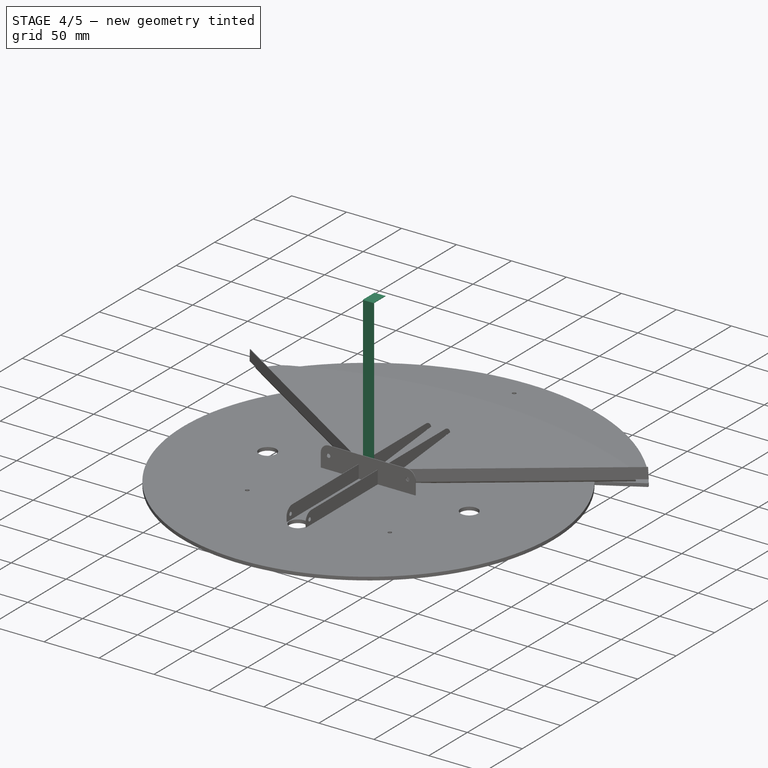
[diagram: stage 4 of 5 — iso view after this stage's code; geometry added in this stage tinted green]
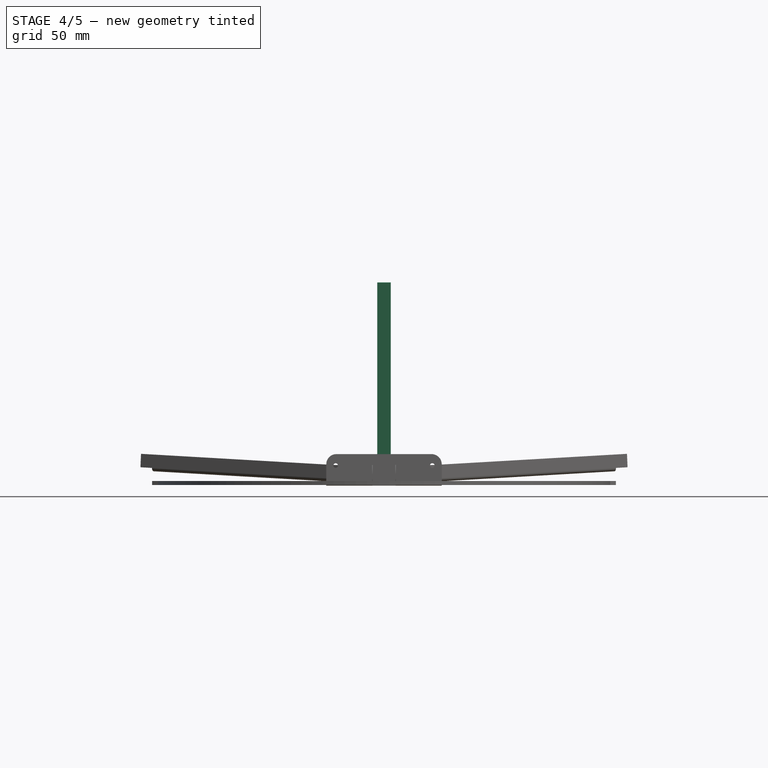
[diagram: stage 4 of 5 — front view after this stage's code; geometry added in this stage tinted green]
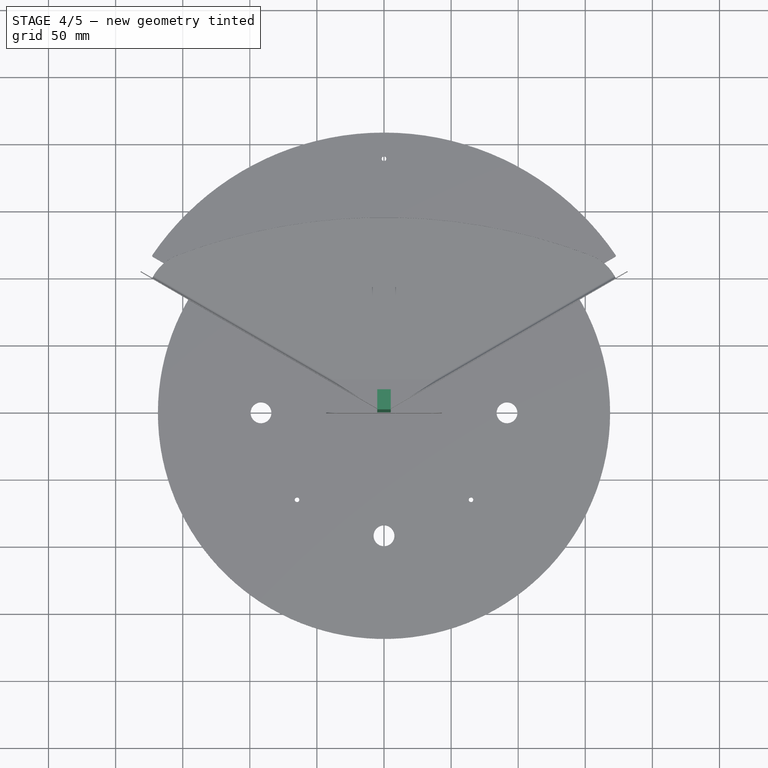
[diagram: stage 4 of 5 — top view after this stage's code; geometry added in this stage tinted green]
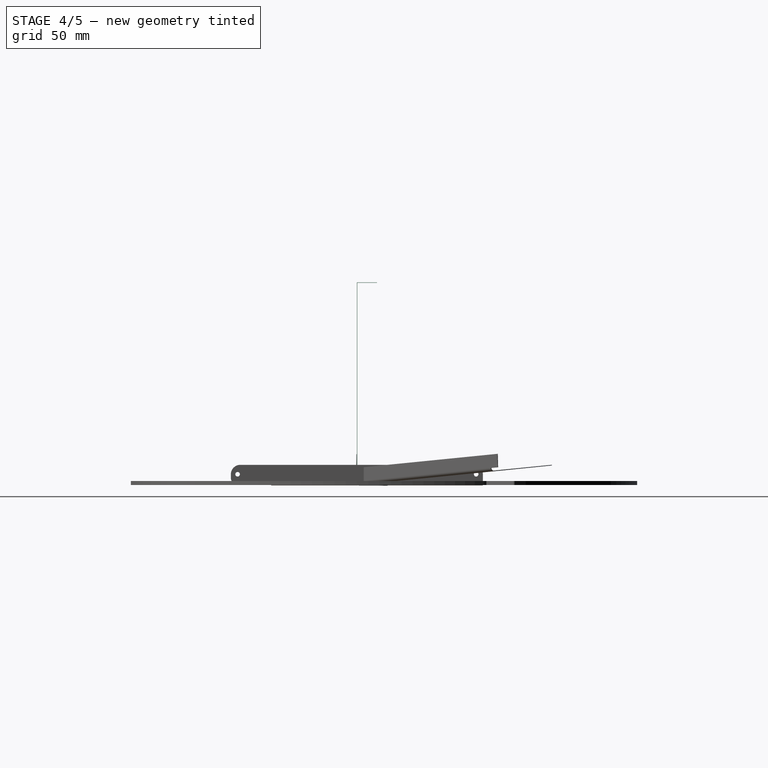
[diagram: stage 4 of 5 — right view after this stage's code; geometry added in this stage tinted green]
FEATURE [Spreadsheet::Sheet] Spreadsheet001  label="main"
  cells = B2(work_plane_width)==200mm; D2(rivet_d)==3.4mm; B3(work_plane_height)==450mm; C3(work_plane_middle)==basin_height + work_plane_height / 2; D3(planes_fix_holes_distance)==130mm; B4(end_face_width)==29mm; C4(inner_width)==end_face_width - thickness * 2; D4(gutter_fix_holes_distance)==51mm; B5(basin_height)==157mm; B6(thickness)==3mm; D6(number_of_modules)=6; E6(modules_array_height)==<<module>>#<<Properties>>.module_height + (number_of_modules - 1) * <<module>>#<<Properties>>.module_fixture_distance_y; B7(total_length)==basin_height + distance_basin_cutout_modules_bottom + modules_array_height + distance_gutter_holes_modules_top + distance_gutter_holes_dropper_cutout; D7(distance_basin_cutout_modules_bottom)==21mm; B8(bend_r)==0.01mm; D8(distance_gutter_holes_modules_top)==5mm; D9(distance_gutter_holes_dropper_cutout)==12mm
FEATURE [Sketcher::SketchObject] Sketch003
  FullyConstrained = true
  MapMode = 5
  Support = -> [XY_Plane001]
  sketch-geometry (13):
    g0: LineSegment StartX=-14.5 StartY=8.37158 StartZ=0 EndX=-14.5 EndY=208.372 EndZ=0
    g1: LineSegment StartX=-14.5 StartY=208.372 StartZ=0 EndX=14.5 EndY=208.372 EndZ=0
    g2: LineSegment StartX=187.705 StartY=-91.6284 StartZ=0 EndX=173.205 EndY=-116.743 EndZ=0
    g3: LineSegment StartX=173.205 StartY=-116.743 StartZ=0 EndX=0 EndY=-16.7432 EndZ=0
    g4: LineSegment StartX=0 StartY=-16.7432 StartZ=0 EndX=-173.205 EndY=-116.743 EndZ=0
    g5: LineSegment StartX=-173.205 StartY=-116.743 StartZ=0 EndX=-187.705 EndY=-91.6284 EndZ=0
    g6: LineSegment StartX=-187.705 StartY=-91.6284 StartZ=0 EndX=-14.5 EndY=8.37158 EndZ=0
    g7: LineSegment StartX=-14.5 StartY=8.37158 StartZ=0 EndX=0 EndY=0 EndZ=0
    g8: LineSegment StartX=0 StartY=0 StartZ=0 EndX=0 EndY=-16.7432 EndZ=0
    g9: LineSegment StartX=14.5 StartY=208.372 StartZ=0 EndX=14.5 EndY=8.97158 EndZ=0
    g10: LineSegment StartX=187.705 StartY=-91.6284 StartZ=0 EndX=11.5 EndY=10.1036 EndZ=0
    g11: LineSegment StartX=11.5 StartY=10.1036 StartZ=0 EndX=11.5 EndY=25.1036 EndZ=0
    g12: LineSegment StartX=0 StartY=0 StartZ=0 EndX=14.5 EndY=8.37158 EndZ=0
  constraints (40):
    c: Vertical(g0)
    c: Coincident(g0,g1)
    c: Coincident(g2,g3)
    c: PointOnObject(g3,g-2)
    c: Coincident(g3,g4)
    c: Coincident(g4,g5)
    c: Coincident(g6,g5)
    c: Equal(g4,g3)
    c: Equal(g2,g5)
    c: Equal(g5,g1)
    c: Perpendicular(g2,g3)
    c: Perpendicular(g5,g4)
    c: Perpendicular(g6,g5)
    c: Angle(g4,g3) = 2.0944
    c: Coincident(g7,g0)
    c: Coincident(g7,g-1)
    c: Coincident(g8,g7)
    c: Coincident(g8,g3)
    c: DistanceX(g1,g1) = 29
    c: DistanceY(g0) = 8.37158  'petal_conn_y'
    c: Coincident(g6,g0)
    c: Distance(g7,g1) = 208.875  'max_r'
    c: DistanceY(g7,g1) = 208.372  'total_petal_length'
    c: Coincident(g9,g1)
    c: Vertical(g9)
    c: Symmetric(g1,g0,g-2)
    c: Equal(g0,g6)
    c: Coincident(g10,g2)
    c: Coincident(g11,g10)
    c: Vertical(g11)
    c: Coincident(g12,g7)
    c: PointOnObject(g12,g10)
    c: PointOnObject(g12,g9)
    c: Equal(g12,g7)
    c: Equal(g7,g8)
    c: DistanceY(g0,g0) = 200
    c: Equal(g4,g6)
    c: DistanceY(g12,g9) = 0.6
    c: DistanceX(g10,g12) = 3
    c: DistanceY(g10,g11) = 15
FEATURE [PartDesign::CoordinateSystem] Local_CS
  AttacherType = Attacher::AttachEngine3D
  AttachmentOffset = pos=(0,8.37158,0) rot=(0,0,1;0rad)
  MapMode = 5
  Placement = pos=(0,8.37158,0) rot=(0,0,1;0rad)
  Support = -> [XY_Plane001]
FEATURE [PartDesign::Plane] DatumPlane001
  AttachmentOffset = pos=(0,0,-100) rot=(0,0,1;0rad)
  Length = 484.686
  MapMode = 3
  Placement = pos=(0,108.372,-2.22e-14) rot=(1,0,0;1.5708rad)
  ResizeMode = 0
  Support = -> [Local_CS]
  Width = 908.503
FEATURE [Sketcher::SketchObject] Sketch005
  AttachmentOffset = pos=(14.5,8.37158,0) rot=(0,0,1;0rad)
  FullyConstrained = true
  MapMode = 5
  Placement = pos=(14.5,8.37158,0) rot=(0,0,1;0rad)
  Support = -> [XY_Plane001]
  sketch-geometry (4):
    g0: LineSegment StartX=0 StartY=0 StartZ=0 EndX=-3 EndY=0 EndZ=0
    g1: LineSegment StartX=-3 StartY=0 StartZ=0 EndX=-3 EndY=3.1 EndZ=0
    g2: LineSegment StartX=-3 StartY=3.1 StartZ=0 EndX=0 EndY=0.1 EndZ=0
    g3: LineSegment StartX=0 StartY=0.1 StartZ=0 EndX=0 EndY=0 EndZ=0
  constraints (11):
    c: Coincident(g0,g1)
    c: Coincident(g1,g2)
    c: Coincident(g2,g3)
    c: Coincident(g3,g0)
    c: Horizontal(g0)
    c: Vertical(g1)
    c: Vertical(g3)
    c: Coincident(g0,g-1)
    c: DistanceY(g2) = 0.1
    c: Angle(g-1,g2) = 2.35619
    c: DistanceX(g0,g0) = 3
FEATURE [Sketcher::SketchObject] Sketch009
  FullyConstrained = true
  MapMode = 5
  Placement = pos=(0,0,0) rot=(0.57735,0.57735,0.57735;2.0944rad)
  Support = -> [YZ_Plane001]
  sketch-geometry (18):
    g0: LineSegment StartX=0 StartY=0 StartZ=0 EndX=0 EndY=157 EndZ=0
    g1: LineSegment StartX=192.75 StartY=152 StartZ=0 EndX=192.75 EndY=127 EndZ=0
    g2: LineSegment StartX=187.75 StartY=122 StartZ=0 EndX=183.66 EndY=122 EndZ=0
    g3: LineSegment StartX=178.808 StartY=118.205 StartZ=0 EndX=149.45 EndY=0 EndZ=0
    g4: LineSegment StartX=149.45 StartY=0 StartZ=0 EndX=0 EndY=0 EndZ=0
    g5: ArcOfCircle CenterX=187.75 CenterY=152 CenterZ=0 NormalX=0 NormalY=0 NormalZ=1 AngleXU=0 Radius=5 StartAngle=2.5e-15 EndAngle=1.5708
    g6: GeomPoint X=192.75 Y=157 Z=0
    g7: ArcOfCircle CenterX=187.75 CenterY=127 CenterZ=0 NormalX=0 NormalY=0 NormalZ=1 AngleXU=0 Radius=5 StartAngle=4.71239 EndAngle=6.28319
    g8: GeomPoint X=192.75 Y=122 Z=0
    g9: ArcOfCircle CenterX=183.66 CenterY=117 CenterZ=0 NormalX=0 NormalY=0 NormalZ=1 AngleXU=0 Radius=5 StartAngle=1.5708 EndAngle=2.89816
    g10: GeomPoint X=179.75 Y=122 Z=0
    g11: LineSegment StartX=73 StartY=116.5 StartZ=0 EndX=166 EndY=116.5 EndZ=0
    g12: LineSegment StartX=166 StartY=116.5 StartZ=0 EndX=166 EndY=157 EndZ=0
    g13: LineSegment StartX=166 StartY=157 StartZ=0 EndX=73 EndY=157 EndZ=0
    g14: LineSegment StartX=73 StartY=157 StartZ=0 EndX=73 EndY=116.5 EndZ=0
    g15: LineSegment StartX=0 StartY=157 StartZ=0 EndX=73 EndY=157 EndZ=0
    g16: LineSegment StartX=166 StartY=157 StartZ=0 EndX=187.75 EndY=157 EndZ=0
    g17: LineSegment StartX=208.395 StartY=149.752 StartZ=0 EndX=192.75 EndY=149.752 EndZ=0
  constraints (47):
    c: Coincident(g-1,g0)
    c: Vertical(g0)
    c: Vertical(g1)
    c: Horizontal(g2)
    c: PointOnObject(g3,g-1)
    c: Coincident(g3,g4)
    c: Coincident(g4,g0)
    c: Distance(g0,g6) = 192.75
    c: DistanceY(g8,g6) = 35
    c: DistanceX(g4,g4) = 149.45
    c: DistanceY(g0,g0) = 157
    c: PointOnObject(g6,g1)
    c: Tangent(g1,g5) = 1.5708
    c: PointOnObject(g8,g2)
    c: PointOnObject(g8,g1)
    c: Tangent(g2,g7) = 1.5708
    c: Tangent(g1,g7) = 1.5708
    c: PointOnObject(g10,g3)
    c: PointOnObject(g10,g2)
    c: Tangent(g3,g9) = -1.5708
    c: Tangent(g2,g9) = -1.5708
    c: Equal(g9,g7)
    c: Equal(g7,g5)
    c: Diameter(g7) = 10
    c: Distance(g8,g10) = 13
    c: Coincident(g11,g12)
    c: Coincident(g12,g13)
    c: Coincident(g13,g14)
    c: Coincident(g14,g11)
    c: Horizontal(g11)
    c: Horizontal(g13)
    c: Vertical(g12)
    c: Vertical(g14)
    c: DistanceX(g11,g11) = 93  'length'
    c: DistanceY(g14,g14) = 40.5  'height'
    c: DistanceX(g11) = 73
    c: DistanceY(g13) = 157
    c: Coincident(g15,g0)
    c: Coincident(g15,g13)
    c: Coincident(g16,g12)
    c: Horizontal(g16)
    c: Tangent(g16,g5) = 1.5708
    c: PointOnObject(g6,g16)
    c: PointOnObject(g17,g1)
    c: Horizontal(g17)
    c: DistanceX(g17) = 208.395
    c: DistanceY(g17) = 149.752
FEATURE [PartDesign::Plane] DatumPlane002
  AttachmentOffset = pos=(0,0,407) rot=(0,0,1;0rad)
  Length = 445.022
  MapMode = 5
  Placement = pos=(0,0,407) rot=(0,0,1;0rad)
  ResizeMode = 0
  Support = -> [XY_Plane001]
  Width = 394.84
FEATURE [Sketcher::SketchObject] Sketch012
  FullyConstrained = true
  MapMode = 5
  Placement = pos=(0,0,0) rot=(0.57735,0.57735,0.57735;2.0944rad)
  Support = -> [YZ_Plane001]
  sketch-geometry (8):
    g0: LineSegment StartX=0 StartY=0 StartZ=0 EndX=50 EndY=0 EndZ=0
    g1: LineSegment StartX=50 StartY=0 StartZ=0 EndX=50 EndY=263 EndZ=0
    g2: LineSegment StartX=50 StartY=263 StartZ=0 EndX=0 EndY=263 EndZ=0
    g3: LineSegment StartX=0 StartY=263 StartZ=0 EndX=0 EndY=0 EndZ=0
    g4: LineSegment StartX=0 StartY=774 StartZ=0 EndX=50 EndY=774 EndZ=0
    g5: LineSegment StartX=50 StartY=774 StartZ=0 EndX=50 EndY=724 EndZ=0
    g6: LineSegment StartX=50 StartY=724 StartZ=0 EndX=0 EndY=724 EndZ=0
    g7: LineSegment StartX=0 StartY=724 StartZ=0 EndX=0 EndY=774 EndZ=0
  constraints (23):
    c: Coincident(g0,g1)
    c: Coincident(g1,g2)
    c: Coincident(g2,g3)
    c: Coincident(g3,g0)
    c: Horizontal(g0)
    c: Horizontal(g2)
    c: Vertical(g1)
    c: Vertical(g3)
    c: Coincident(g0,g-1)
    c: Distance(g0) = 50
    c: DistanceY(g2) = 263
    c: Coincident(g4,g5)
    c: Coincident(g5,g6)
    c: Coincident(g6,g7)
    c: Coincident(g7,g4)
    c: Horizontal(g4)
    c: Horizontal(g6)
    c: Vertical(g5)
    c: Vertical(g7)
    c: PointOnObject(g4,g-2)
    c: Vertical(g5,g1)
    c: DistanceY(g4) = 774
    c: DistanceY(g7,g7) = 50
FEATURE [Sketcher::SketchObject] Sketch013
  AttachmentOffset = pos=(0,157,0) rot=(0,0,1;0rad)
  FullyConstrained = true
  MapMode = 5
  Placement = pos=(-3.49e-14,3.49e-14,157) rot=(0.57735,0.57735,0.57735;2.0944rad)
  Support = -> [YZ_Plane001]
  sketch-geometry (7):
    g0: LineSegment StartX=75 StartY=0 StartZ=0 EndX=0 EndY=0 EndZ=0
    g1: LineSegment StartX=0 StartY=0 StartZ=0 EndX=0 EndY=60 EndZ=0
    g2: LineSegment StartX=0 StartY=60 StartZ=0 EndX=30 EndY=60 EndZ=0
    g3: LineSegment StartX=35 StartY=55 StartZ=0 EndX=35 EndY=40 EndZ=0
    g4: ArcOfCircle CenterX=75 CenterY=40 CenterZ=0 NormalX=0 NormalY=0 NormalZ=1 AngleXU=0 Radius=40 StartAngle=3.14159 EndAngle=4.71239
    g5: ArcOfCircle CenterX=30 CenterY=55 CenterZ=0 NormalX=0 NormalY=0 NormalZ=1 AngleXU=0 Radius=5 StartAngle=2e-16 EndAngle=1.5708
    g6: GeomPoint X=35 Y=60 Z=0
  constraints (18):
    c: PointOnObject(g0,g-1)
    c: Coincident(g0,g-1)
    c: Coincident(g0,g1)
    c: PointOnObject(g1,g-2)
    c: Coincident(g1,g2)
    c: Horizontal(g2)
    c: Vertical(g3)
    c: PointOnObject(g6,g2)
    c: PointOnObject(g6,g3)
    c: Tangent(g2,g5) = 1.5708
    c: Tangent(g3,g5) = 1.5708
    c: Diameter(g4) = 80
    c: Tangent(g4,g3) = -1.5708
    c: Distance(g1) = 60
    c: Tangent(g4,g0) = 1.5708
    c: Diameter(g5) = 10
    c: DistanceX(g3) = 35
    c: Distance(g0) = 75
FEATURE [App::DocumentObjectGroup] Group  label="Tables"
  Group = -> [Spreadsheet001]
FEATURE [PartDesign::CoordinateSystem] LCS_Origin
  AttacherType = Attacher::AttachEngine3D
  MapMode = 2
  Support = -> [X_Axis012]
FEATURE [App::DocumentObjectGroup] Constraints
FEATURE [App::FeaturePython] Variables  # WARN: FeaturePython — macro-defined, semantics opaque (R4)
  Type = App::PropertyContainer
FEATURE [App::DocumentObjectGroup] Configurations
FEATURE [PartDesign::CoordinateSystem] Local_CS008
  AttacherType = Attacher::AttachEngine3D
  MapMode = 5
  Support = -> [XY_Plane001]
FEATURE [App::Link] Body001001
  AssemblyType = Part::Link
  AttachedBy = #Local_CS008
  AttachedTo = Parent Assembly#LCS_Origin
  LinkedObject = -> Body001
  SolverId = Asm4EE
FEATURE [PartDesign::CoordinateSystem] Local_CS011
  AttacherType = Attacher::AttachEngine3D
  AttachmentOffset = pos=(0,100,0) rot=(0,0,1;0rad)
  MapMode = 5
  Placement = pos=(0,108.372,0) rot=(0,0,1;0rad)
  Support = -> [Local_CS]
FEATURE [PartDesign::Plane] DatumPlane
  Length = 426.918
  MapMode = 4
  Placement = pos=(0,108.372,0) rot=(0.57735,0.57735,0.57735;2.0944rad)
  ResizeMode = 0
  Support = -> [Local_CS011]
  Width = 900.917
FEATURE [Sketcher::SketchObject] Sketch011
  AttachmentOffset = pos=(-88,277,0) rot=(0,0,1;0rad)
  FullyConstrained = true
  MapMode = 5
  Placement = pos=(0,20.3716,277) rot=(0.57735,0.57735,0.57735;2.0944rad)
  Support = -> [DatumPlane]
  sketch-geometry (1):
    g0: Circle CenterX=0 CenterY=0 CenterZ=0 NormalX=0 NormalY=0 NormalZ=1 AngleXU=0 Radius=1.7
  constraints (2):
    c: Coincident(g0,g-1)
    c: Diameter(g0) = 3.4
FEATURE [PartDesign::Plane] DatumPlane011
  AttachmentOffset = pos=(0,0,0) rot=(0,0,1;0.523599rad)
  Length = 583.048
  MapMode = 5
  Placement = pos=(0,0,0) rot=(0,0,1;0.523599rad)
  ResizeMode = 0
  Support = -> [XY_Plane001]
  Width = 564.68
FEATURE [PartDesign::Plane] DatumPlane013
  AttachmentOffset = pos=(0,0,0) rot=(0,-1,0;0.523599rad)
  Length = 612.23
  MapMode = 5
  Placement = pos=(0,0,0) rot=(0.935113,-0.250563,-0.250563;1.63783rad)
  ResizeMode = 0
  Support = -> [XZ_Plane001]
  Width = 923.812
FEATURE [PartDesign::Plane] DatumPlane014
  AttachmentOffset = pos=(0,0,0) rot=(0.447214,0.774597,-0.447214;1.82348rad)
  Length = 923.812
  MapMode = 5
  Placement = pos=(0,0,0) rot=(0.447214,0.774597,-0.447214;1.82348rad)
  ResizeMode = 0
  Support = -> [XY_Plane001]
  Width = 612.23
FEATURE [Sketcher::SketchObject] Sketch047
  FullyConstrained = true
  MapMode = 5
  Support = -> [XY_Plane015]
  sketch-geometry (8):
    g0: ArcOfCircle CenterX=0 CenterY=16.7432 CenterZ=0 NormalX=0 NormalY=0 NormalZ=1 AngleXU=0 Radius=60 StartAngle=0.539993 EndAngle=1.5708
    g1: ArcOfCircle CenterX=52.3205 CenterY=48.1051 CenterZ=0 NormalX=0 NormalY=0 NormalZ=1 AngleXU=0 Radius=1 StartAngle=3.68159 EndAngle=5.23599
    g2: LineSegment StartX=52.8205 StartY=47.2391 StartZ=0 EndX=172.274 EndY=116.206 EndZ=0
    g3: ArcOfCircle CenterX=171.774 CenterY=117.072 CenterZ=0 NormalX=0 NormalY=0 NormalZ=1 AngleXU=0 Radius=1 StartAngle=5.23599 EndAngle=6.88142
    g4: ArcOfCircle CenterX=0 CenterY=0 CenterZ=0 NormalX=0 NormalY=0 NormalZ=1 AngleXU=0 Radius=208.875 StartAngle=0.598232 EndAngle=1.5708
    g5: LineSegment StartX=3.7e-15 StartY=76.7432 StartZ=0 EndX=1.28e-14 EndY=208.875 EndZ=0
    g6: LineSegment StartX=52.8205 StartY=47.2391 StartZ=0 EndX=0 EndY=16.7432 EndZ=0
    g7: GeomPoint X=173.205 Y=116.743 Z=0
  constraints (22):
    c: PointOnObject(g0,g-2)
    c: PointOnObject(g4,g-2)
    c: Diameter(g1) = 2
    c: Diameter(g3) = 2
    c: Tangent(g1,g0) = 1.5708
    c: Tangent(g3,g2) = -1.5708
    c: Angle(g2,g-1) = 2.61799
    c: Coincident(g5,g0)
    c: Coincident(g5,g4)
    c: Tangent(g1,g2) = -1.5708
    c: Coincident(g6,g1)
    c: Tangent(g6,g2)
    c: Coincident(g6,g0)
    c: Diameter(g0) = 120
    c: PointOnObject(g7,g4)
    c: PointOnObject(g7,g2)
    c: DistanceY(g4) = 208.875
    c: Distance(g4,g0) = 16.7432  'major_r_offset'
    c: Coincident(g4,g-1)
    c: PointOnObject(g0,g-2)
    c: Distance(g0,g7) = 200
    c: Tangent(g3,g4) = -1.5708
FEATURE [PartDesign::Pad] Pad012
  Direction = (0,0,1)
  Length = 3
  Length2 = 10
  Profile = -> Sketch047
  ReferenceAxis = -> Sketch047 [N_Axis]
  Type = 0
FEATURE [Sketcher::SketchObject] Sketch076
  FullyConstrained = true
  MapMode = 5
  Support = -> [XY_Plane025]
  sketch-geometry (1):
    g0: Circle CenterX=0 CenterY=0 CenterZ=0 NormalX=0 NormalY=0 NormalZ=1 AngleXU=0 Radius=168.5
  constraints (2):
    c: Coincident(g0,g-1)
    c: Diameter(g0) = 337
FEATURE [PartDesign::Pad] Pad020
  Direction = (0,0,1)
  Length = 3
  Length2 = 10
  Profile = -> Sketch076
  ReferenceAxis = -> Sketch076 [N_Axis]
  Type = 0
FEATURE [Sketcher::SketchObject] Sketch078
  FullyConstrained = true
  MapMode = 5
  Placement = pos=(0,0,0) rot=(1,0,0;1.5708rad)
  Support = -> [XZ_Plane025]
FEATURE [Sketcher::SketchObject] Sketch079
  FullyConstrained = true
  MapMode = 5
  Placement = pos=(0,0,0) rot=(0.57735,0.57735,0.57735;2.0944rad)
  Support = -> [YZ_Plane025]
  sketch-geometry (3):
    g0: LineSegment StartX=15 StartY=0 StartZ=0 EndX=0 EndY=0 EndZ=0
    g1: LineSegment StartX=0 StartY=0 StartZ=0 EndX=0 EndY=157 EndZ=0
    g2: LineSegment StartX=0 StartY=157 StartZ=0 EndX=15 EndY=157 EndZ=0
  constraints (9):
    c: PointOnObject(g0,g-1)
    c: Coincident(g0,g-1)
    c: Coincident(g1,g0)
    c: PointOnObject(g1,g-2)
    c: Coincident(g2,g1)
    c: Horizontal(g2)
    c: DistanceX(g0,g0) = 15
    c: Vertical(g0,g2)
    c: DistanceY(g1) = 157
FEATURE [PartDesign::FeaturePython] BaseBend  # WARN: FeaturePython — macro-defined, semantics opaque (R4)
  BendSide = 0
  BendSketch = -> Sketch079
  MidPlane = true
  Reverse = false
  length = 15
  radius = 2
  thickness = 1
FEATURE [Sketcher::SketchObject] Sketch080
  AttachmentOffset = pos=(0,7.5,0) rot=(0,0,1;0rad)
  FullyConstrained = true
  MapMode = 5
  Placement = pos=(0,7.5,0) rot=(0,0,1;0rad)
  Support = -> [XY_Plane026]
  sketch-geometry (1):
    g0: Circle CenterX=0 CenterY=0 CenterZ=0 NormalX=0 NormalY=0 NormalZ=1 AngleXU=0 Radius=1.65
  constraints (3):
    c: PointOnObject(g0,g-2)
    c: Diameter(g0) = 3.3
    c: DistanceY(g0) = 0
FEATURE [PartDesign::Pocket] Pocket039
  BaseFeature = -> BaseBend
  Direction = (0,0,-1)
  Length = 5
  Length2 = 5
  Profile = -> Sketch080
  ReferenceAxis = -> Sketch080 [N_Axis]
  Reversed = true
  Type = 1
FEATURE [Sketcher::SketchObject] Sketch081
  FullyConstrained = true
  MapMode = 5
  Support = -> [XY_Plane026]
  sketch-geometry (3):
    g0: ArcOfCircle CenterX=4.5 CenterY=12 CenterZ=0 NormalX=0 NormalY=0 NormalZ=1 AngleXU=0 Radius=3 StartAngle=1e-16 EndAngle=1.57079
    g1: LineSegment StartX=4.50001 StartY=15 StartZ=0 EndX=7.5 EndY=15 EndZ=0
    g2: LineSegment StartX=7.5 StartY=12 StartZ=0 EndX=7.5 EndY=15 EndZ=0
  constraints (9):
    c: Diameter(g0) = 6
    c: Coincident(g1,g0)
    c: Tangent(g1,g0)
    c: Coincident(g2,g1)
    c: Vertical(g2)
    c: Horizontal(g1)
    c: DistanceX(g1) = 7.5
    c: DistanceY(g1) = 15
    c: Tangent(g2,g0) = -1.5708
FEATURE [PartDesign::Pocket] Pocket040
  BaseFeature = -> Pocket039
  Direction = (0,0,-1)
  Length = 5
  Length2 = 5
  Midplane = true
  Profile = -> Sketch081
  ReferenceAxis = -> Sketch081 [N_Axis]
  Type = 1
FEATURE [PartDesign::Mirrored] Mirrored028
  BaseFeature = -> Pocket040
  MirrorPlane = -> Sketch081 [V_Axis]
  Originals = -> [Pocket040]
FEATURE [Sketcher::SketchObject] Sketch087
  AttachmentOffset = pos=(0,14.5,0) rot=(0,0,1;0rad)
  FullyConstrained = true
  MapMode = 5
  Placement = pos=(0,14.5,0) rot=(0,0,1;0rad)
  Support = -> [XY_Plane029]
  sketch-geometry (2):
    g0: Circle CenterX=36 CenterY=0 CenterZ=0 NormalX=0 NormalY=0 NormalZ=1 AngleXU=0 Radius=1.7
    g1: Circle CenterX=-36 CenterY=0 CenterZ=0 NormalX=0 NormalY=0 NormalZ=1 AngleXU=0 Radius=1.7
  constraints (5):
    c: PointOnObject(g0,g-1)
    c: Symmetric(g1,g0,g-1)
    c: Equal(g0,g1)
    c: Diameter(g0) = 3.4
    c: DistanceX(g1,g0) = 72
FEATURE [PartDesign::Pocket] Pocket048
  BaseFeature = -> MultiTransform011
  Direction = (0,0,-1)
  Length = 5
  Length2 = 5
  Midplane = true
  Profile = -> Sketch087
  ReferenceAxis = -> Sketch087 [N_Axis]
  Type = 1
FEATURE [PartDesign::PolarPattern] PolarPattern011
  Angle = 90
  Axis = -> X_Axis028
  BaseFeature = -> Pocket048
  Occurrences = 2
  Originals = -> [Pocket048]
FEATURE [PartDesign::CoordinateSystem] LCS_0007
  AttacherType = Attacher::AttachEngine3D
  MapMode = 2
  Support = -> [X_Axis038]
FEATURE [Sketcher::SketchObject] Sketch122
  FullyConstrained = true
  MapMode = 5
  Placement = pos=(0,0,0) rot=(0.57735,0.57735,0.57735;2.0944rad)
  Support = -> [YZ_Plane038]
  sketch-geometry (4):
    g0: LineSegment StartX=0 StartY=0 StartZ=0 EndX=15 EndY=0 EndZ=0
    g1: LineSegment StartX=15 StartY=0 StartZ=0 EndX=15 EndY=151 EndZ=0
    g2: LineSegment StartX=15 StartY=151 StartZ=0 EndX=0 EndY=151 EndZ=0
    g3: LineSegment StartX=0 StartY=151 StartZ=0 EndX=0 EndY=0 EndZ=0
  constraints (11):
    c: Coincident(g0,g1)
    c: Coincident(g1,g2)
    c: Coincident(g2,g3)
    c: Coincident(g3,g0)
    c: Horizontal(g0)
    c: Horizontal(g2)
    c: Vertical(g1)
    c: Vertical(g3)
    c: Coincident(g0,g-1)
    c: DistanceY(g2) = 151  'height'
    c: DistanceX(g0,g0) = 15  'length'
FEATURE [PartDesign::FeaturePython] BaseBend009  # WARN: FeaturePython — macro-defined, semantics opaque (R4)
  BendSide = 1
  BendSketch = -> Sketch122
  MidPlane = true
  Reverse = false
  length = 10
  radius = 0.1
  thickness = 0.3
FEATURE [Sketcher::SketchObject] Sketch127
  FullyConstrained = true
  MapMode = 5
  Placement = pos=(0,0,0) rot=(0.57735,0.57735,0.57735;2.0944rad)
  Support = -> [YZ_Plane037]
  sketch-geometry (4):
    g0: LineSegment StartX=71.78 StartY=114.36 StartZ=0 EndX=143.27 EndY=114.36 EndZ=0
    g1: LineSegment StartX=143.27 StartY=114.36 StartZ=0 EndX=143.27 EndY=159.55 EndZ=0
    g2: LineSegment StartX=143.27 StartY=159.55 StartZ=0 EndX=71.78 EndY=159.55 EndZ=0
    g3: LineSegment StartX=71.78 StartY=159.55 StartZ=0 EndX=71.78 EndY=114.36 EndZ=0
  constraints (12):
    c: Coincident(g0,g1)
    c: Coincident(g1,g2)
    c: Coincident(g2,g3)
    c: Coincident(g3,g0)
    c: Horizontal(g0)
    c: Horizontal(g2)
    c: Vertical(g1)
    c: Vertical(g3)
    c: DistanceX(g0) = 71.78  'offset_x'
    c: DistanceY(g0) = 114.36  'offset_y'
    c: DistanceY(g3,g3) = 45.19  'height'
    c: DistanceX(g0,g0) = 71.49  'width'
FEATURE [Sketcher::SketchObject] Sketch128
  FullyConstrained = true
  MapMode = 5
  Placement = pos=(0,0,0) rot=(0.57735,0.57735,0.57735;2.0944rad)
  Support = -> [YZ_Plane001]
  sketch-geometry (4):
    g0: LineSegment StartX=73 StartY=116.5 StartZ=0 EndX=166 EndY=116.5 EndZ=0
    g1: LineSegment StartX=166 StartY=116.5 StartZ=0 EndX=166 EndY=157 EndZ=0
    g2: LineSegment StartX=166 StartY=157 StartZ=0 EndX=73 EndY=157 EndZ=0
    g3: LineSegment StartX=73 StartY=157 StartZ=0 EndX=73 EndY=116.5 EndZ=0
  constraints (12):
    c: Coincident(g0,g1)
    c: Coincident(g1,g2)
    c: Coincident(g2,g3)
    c: Coincident(g3,g0)
    c: Horizontal(g0)
    c: Horizontal(g2)
    c: Vertical(g1)
    c: Vertical(g3)
    c: DistanceX(g0,g0) = 93  'length'
    c: DistanceY(g3,g3) = 40.5  'height'
    c: DistanceX(g0) = 73  'offset_x'
    c: DistanceY(g2) = 157
FEATURE [Sketcher::SketchObject] Sketch129
  AttachmentOffset = pos=(0,0,0) rot=(0,1,0;3.66519rad)
  FullyConstrained = true
  MapMode = 5
  Placement = pos=(0,0,0) rot=(-0.186157,0.694747,0.694747;3.50969rad)
  Support = -> [XZ_Plane001]
  sketch-geometry (9):
    g0: LineSegment StartX=0 StartY=0 StartZ=0 EndX=169.18 EndY=0 EndZ=0
    g1: LineSegment StartX=169.18 StartY=0 StartZ=0 EndX=169.18 EndY=157 EndZ=0
    g2: LineSegment StartX=0 StartY=157 StartZ=0 EndX=0 EndY=0 EndZ=0
    g3: LineSegment StartX=73 StartY=116.5 StartZ=0 EndX=166 EndY=116.5 EndZ=0
    g4: LineSegment StartX=166 StartY=116.5 StartZ=0 EndX=166 EndY=157 EndZ=0
    g5: LineSegment StartX=166 StartY=157 StartZ=0 EndX=73 EndY=157 EndZ=0
    g6: LineSegment StartX=73 StartY=157 StartZ=0 EndX=73 EndY=116.5 EndZ=0
    g7: LineSegment StartX=169.18 StartY=157 StartZ=0 EndX=166 EndY=157 EndZ=0
    g8: LineSegment StartX=73 StartY=157 StartZ=0 EndX=0 EndY=157 EndZ=0
  constraints (25):
    c: Coincident(g0,g1)
    c: Coincident(g1,g7)
    c: Coincident(g8,g2)
    c: Coincident(g2,g0)
    c: Horizontal(g0)
    c: Vertical(g1)
    c: Vertical(g2)
    c: Coincident(g0,g-1)
    c: DistanceY(g8) = 157
    c: Coincident(g3,g4)
    c: Coincident(g4,g5)
    c: Coincident(g5,g6)
    c: Coincident(g6,g3)
    c: Horizontal(g3)
    c: Horizontal(g5)
    c: Vertical(g4)
    c: Vertical(g6)
    c: DistanceX(g3,g3) = 93  'length'
    c: DistanceY(g6,g6) = 40.5  'height'
    c: DistanceX(g3) = 73
    c: DistanceY(g5) = 157
    c: Horizontal(g7)
    c: Coincident(g8,g5)
    c: Coincident(g7,g4)
    c: DistanceX(g7,g7) = 3.18
FEATURE [PartDesign::CoordinateSystem] Local_CS041
  AttacherType = Attacher::AttachEngine3D
  AttachmentOffset = pos=(119.5,157,14.5) rot=(0,0.707107,0.707107;3.14159rad)
  MapMode = 5
  Placement = pos=(14.5,119.5,157) rot=(0,0,1;4.71239rad)
  Support = -> [YZ_Plane001]
FEATURE [Sketcher::SketchObject] Sketch130
  AttachmentOffset = pos=(0,40,0) rot=(0,0,1;0rad)
  FullyConstrained = true
  MapMode = 5
  Placement = pos=(54.5,119.5,157) rot=(0,0,-1;1.5708rad)
  Support = -> [Local_CS041]
  sketch-geometry (6):
    g0: ArcOfCircle CenterX=36.5 CenterY=-10 CenterZ=0 NormalX=0 NormalY=0 NormalZ=1 AngleXU=0 Radius=10 StartAngle=6.28318 EndAngle=7.85398
    g1: ArcOfCircle CenterX=-36.5 CenterY=-10 CenterZ=0 NormalX=0 NormalY=0 NormalZ=1 AngleXU=0 Radius=10 StartAngle=1.5708 EndAngle=3.14159
    g2: LineSegment StartX=-46.5 StartY=-10 StartZ=0 EndX=-46.5 EndY=0 EndZ=0
    g3: LineSegment StartX=-36.5 StartY=0 StartZ=0 EndX=-46.5 EndY=0 EndZ=0
    g4: LineSegment StartX=46.5 StartY=-10 StartZ=0 EndX=46.5 EndY=0 EndZ=0
    g5: LineSegment StartX=36.5 StartY=0 StartZ=0 EndX=46.5 EndY=0 EndZ=0
  constraints (17):
    c: PointOnObject(g0,g-1)
    c: PointOnObject(g1,g-1)
    c: Coincident(g2,g1)
    c: PointOnObject(g2,g-1)
    c: Vertical(g2)
    c: Tangent(g2,g1)
    c: Coincident(g3,g2)
    c: Coincident(g4,g0)
    c: PointOnObject(g4,g-1)
    c: Vertical(g4)
    c: Tangent(g4,g0)
    c: Coincident(g5,g4)
    c: Tangent(g5,g0) = 1.5708
    c: Tangent(g3,g1) = -1.5708
    c: DistanceX(g2,g4) = 93
    c: Symmetric(g1,g0,g-2)
    c: Diameter(g0) = 20
FEATURE [PartDesign::CoordinateSystem] Local_CS042
  AttacherType = Attacher::AttachEngine3D
  AttachmentOffset = pos=(0,0,0) rot=(0,0,1;2.0944rad)
  MapMode = 5
  Placement = pos=(0,0,0) rot=(0,0,1;2.0944rad)
  Support = -> [XY_Plane001]
FEATURE [PartDesign::CoordinateSystem] Local_CS012
  AttacherType = Attacher::AttachEngine3D
  AttachmentOffset = pos=(14.5,119.5,157) rot=(0,0,1;4.71239rad)
  MapMode = 5
  Placement = pos=(-110.74,-47.1926,157) rot=(0,0,-1;5.75959rad)
  Support = -> [Local_CS042]
FEATURE [Sketcher::SketchObject] Sketch043
  AttachmentOffset = pos=(0,14,0) rot=(0,0,1;0rad)
  FullyConstrained = true
  MapMode = 5
  Placement = pos=(-117.74,-35.0683,157) rot=(0,0,1;0.523599rad)
  Support = -> [Local_CS012]
  sketch-geometry (1):
    g0: Circle CenterX=0 CenterY=16 CenterZ=0 NormalX=0 NormalY=0 NormalZ=1 AngleXU=0 Radius=1.7
  constraints (3):
    c: Diameter(g0) = 3.4
    c: DistanceY(g0) = 16
    c: PointOnObject(g0,g-2)
FEATURE [PartDesign::Plane] DatumPlane012
  Length = 583.048
  MapMode = 5
  Placement = pos=(-110.74,-47.1926,157) rot=(0,0,1;0.523599rad)
  ResizeMode = 0
  Support = -> [Local_CS012]
  Width = 564.68
FEATURE [PartDesign::SubShapeBinder] Binder041
  BindCopyOnChange = 0
  BindMode = 0
  ClaimChildren = false
  Context = -> Model [Body001003005002.Binder041.]
  Fuse = false
  MakeFace = true
  OffsetFill = false
  OffsetIntersection = false
  OffsetJoinType = 0
  OffsetOpenResult = false
  PartialLoad = false
  Relative = false
  Support = -> [Body001003005003013[Pocket041.Sketch083.]]
  _Version = 2
FEATURE [PartDesign::SubShapeBinder] Binder042
  BindCopyOnChange = 0
  BindMode = 0
  ClaimChildren = false
  Context = -> Model [Body001003005002.Binder042.]
  Fuse = false
  MakeFace = true
  OffsetFill = false
  OffsetIntersection = false
  OffsetJoinType = 0
  OffsetOpenResult = false
  PartialLoad = false
  Relative = false
  Support = -> [Body001003005003013[Pocket042.Sketch084.]]
  _Version = 2
FEATURE [PartDesign::SubShapeBinder] Binder043
  BindCopyOnChange = 0
  BindMode = 0
  ClaimChildren = false
  Context = -> Model [Body001003005002.Binder043.]
  Fuse = false
  MakeFace = true
  OffsetFill = false
  OffsetIntersection = false
  OffsetJoinType = 0
  OffsetOpenResult = false
  PartialLoad = false
  Placement = pos=(89.24,84.4317,0) rot=(0,0,1;0.523599rad)
  Relative = false
  Support = -> [Body001[Sketch043.]]
  _Version = 2
FEATURE [PartDesign::CoordinateSystem] Local_CS043
  AttacherType = Attacher::AttachEngine3D
  AttachmentOffset = pos=(119.5,28.5,0) rot=(0,0,1;0rad)
  MapMode = 5
  Placement = pos=(89.24,84.4317,0) rot=(0,0,1;0.523599rad)
  Support = -> [Local_CS016]
FEATURE [PartDesign::Pocket] Pocket086
  BaseFeature = -> Pad012
  Direction = (0,0,-1)
  Length = 5
  Length2 = 5
  Midplane = true
  Profile = -> Binder043
  Type = 1
FEATURE [PartDesign::SubShapeBinder] Binder044
  BindCopyOnChange = 0
  BindMode = 0
  ClaimChildren = false
  Context = -> Body001003005003011 [Binder044.]
  Fuse = false
  MakeFace = true
  OffsetFill = false
  OffsetIntersection = false
  OffsetJoinType = 0
  OffsetOpenResult = false
  PartialLoad = false
  Relative = true
  Support = -> [Body001003005003[Pocket036.Sketch075.]]
  _Version = 2
FEATURE [PartDesign::SubShapeBinder] Binder045
  BindCopyOnChange = 0
  BindMode = 0
  ClaimChildren = false
  Context = -> Body001003005003011 [Binder045.]
  Fuse = false
  MakeFace = true
  OffsetFill = false
  OffsetIntersection = false
  OffsetJoinType = 0
  OffsetOpenResult = false
  PartialLoad = false
  Placement = pos=(0,0,0) rot=(0,0,1;0.785398rad)
  Relative = true
  Support = -> [Body001003005003[Pocket036.Sketch075.]]
  _Version = 2
FEATURE [PartDesign::Pocket] Pocket088
  BaseFeature = -> Pad020
  Direction = (0,0,-1)
  Length = 5
  Length2 = 5
  Midplane = true
  Profile = -> Binder044
  Type = 1
FEATURE [PartDesign::Hole] Hole
  BaseFeature = -> Pocket088
  CustomThreadClearance = 0
  Depth = 25
  DepthType = 0
  Diameter = 15.5
  DrillForDepth = false
  DrillPoint = 1
  DrillPointAngle = 118
  HoleCutCountersinkAngle = 90
  HoleCutCustomValues = false
  HoleCutDepth = 0
  HoleCutDiameter = 6.1
  HoleCutType = 0
  ModelThread = false
  Profile = -> Binder045
  Reversed = true
  Tapered = false
  TaperedAngle = 90
  ThreadClass = 0
  ThreadDepth = 25
  ThreadDepthType = 0
  ThreadDirection = 0
  ThreadFit = 0
  ThreadSize = 0
  ThreadType = 0
  Threaded = false
  UseCustomThreadClearance = false
FEATURE [PartDesign::Body] Body001003005003011  label="basement2"
  Group = -> [Sketch076,Pad020,Binder044,Binder045,Pocket088,Hole]
  Origin = -> Origin024
  Tip = -> Hole
FEATURE [PartDesign::CoordinateSystem] Local_CS044
  AttacherType = Attacher::AttachEngine3D
  AttachmentOffset = pos=(119.5,11.5,0) rot=(0,0,1;0rad)
  MapMode = 5
  Placement = pos=(97.74,69.7093,0) rot=(0,0,1;0.523599rad)
  Support = -> [Local_CS016]
FEATURE [PartDesign::SubShapeBinder] Binder046
  BindCopyOnChange = 0
  BindMode = 0
  ClaimChildren = false
  Context = -> Model [Body001003005002.Binder046.]
  Fuse = false
  MakeFace = true
  OffsetFill = false
  OffsetIntersection = false
  OffsetJoinType = 0
  OffsetOpenResult = false
  PartialLoad = false
  Placement = pos=(97.74,69.7093,0) rot=(0,0,1;0.523599rad)
  Relative = false
  Support = -> [Body001[Pocket073.Sketch073.]]
  _Version = 2
FEATURE [PartDesign::Pocket] Pocket089
  BaseFeature = -> Pocket086
  Direction = (0,0,-1)
  Length = 5
  Length2 = 5
  Midplane = true
  Profile = -> Binder046
  Type = 1
FEATURE [PartDesign::Mirrored] Mirrored014
  BaseFeature = -> Pocket089
  MirrorPlane = -> Sketch047 [V_Axis]
  Originals = -> [Pad012,Pocket086,Pocket089]
  Refine = true
FEATURE [PartDesign::Pocket] Pocket084
  BaseFeature = -> Mirrored014
  Direction = (0,0,-1)
  Length = 5
  Length2 = 5
  Midplane = true
  Profile = -> Binder041
  Type = 1
FEATURE [PartDesign::Pocket] Pocket085
  BaseFeature = -> Pocket084
  Direction = (0,0,-1)
  Length = 5
  Length2 = 5
  Midplane = true
  Profile = -> Binder042
  Type = 1
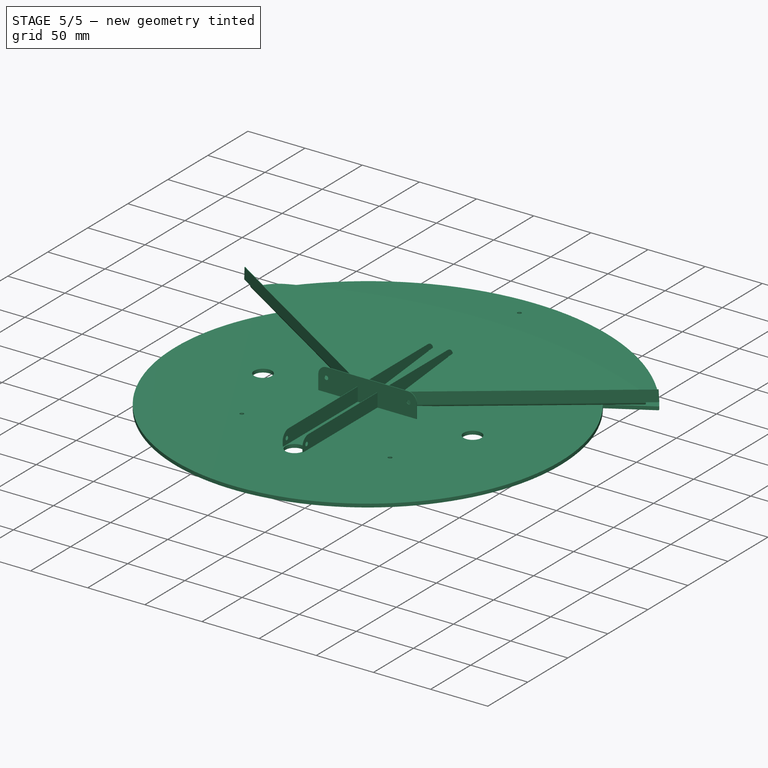
[diagram: stage 5 of 5 — iso view after this stage's code; geometry added in this stage tinted green]
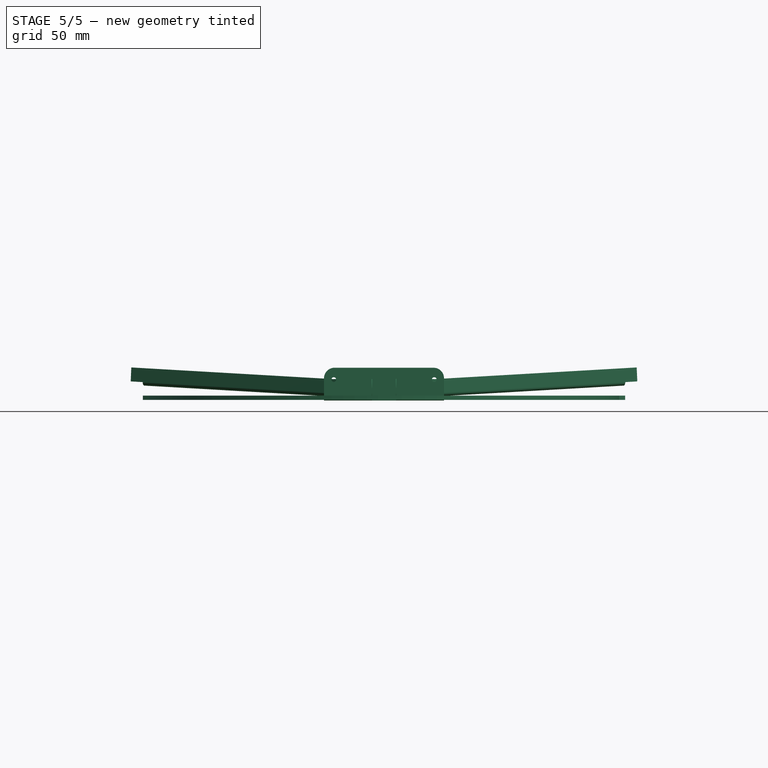
[diagram: stage 5 of 5 — front view after this stage's code; geometry added in this stage tinted green]
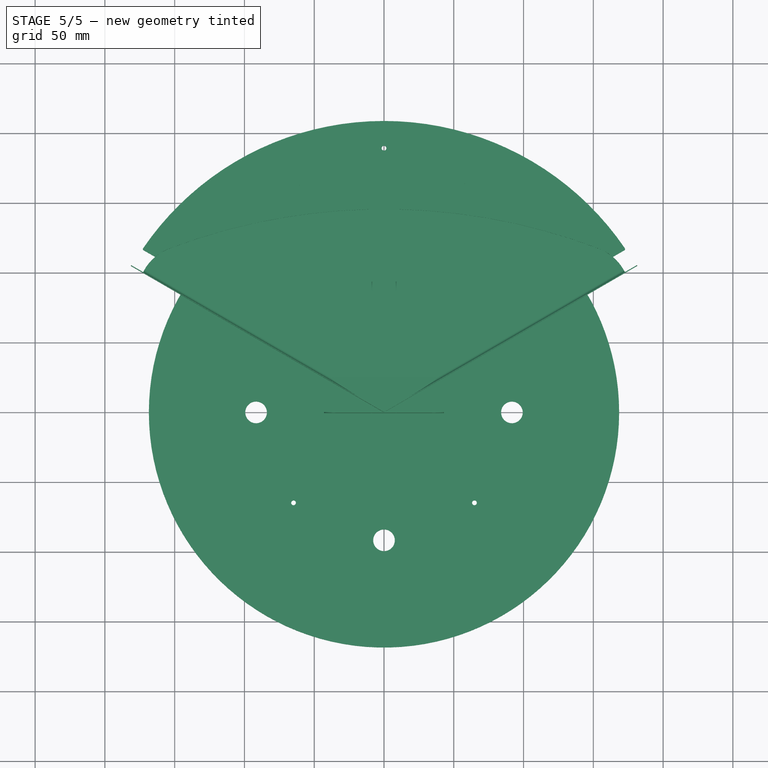
[diagram: stage 5 of 5 — top view after this stage's code; geometry added in this stage tinted green]
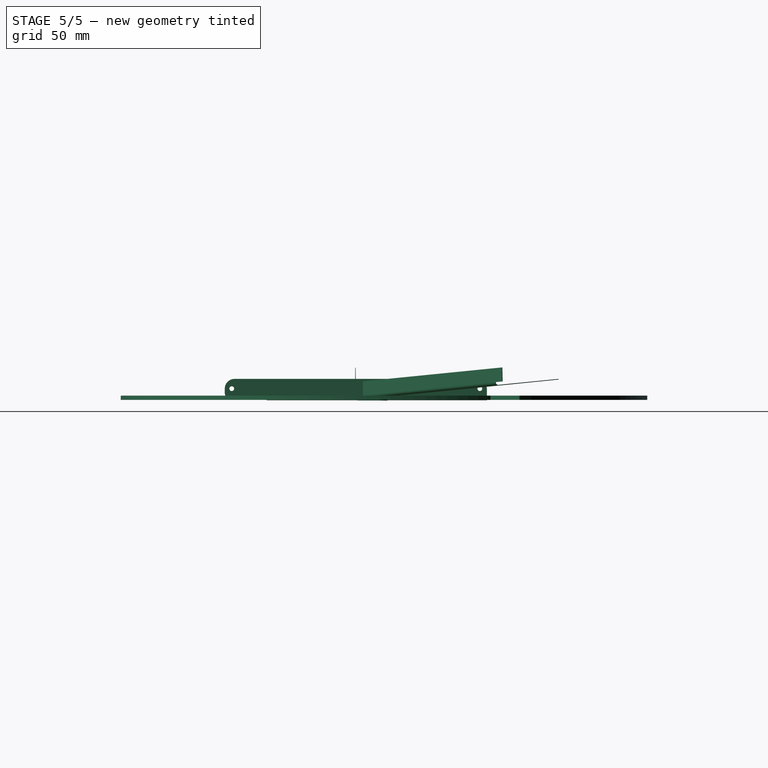
[diagram: stage 5 of 5 — right view after this stage's code; geometry added in this stage tinted green]
FEATURE [Sketcher::SketchObject] Sketch049
  AttachmentOffset = pos=(0,195.697,0) rot=(0,0,1;0rad)
  FullyConstrained = true
  MapMode = 5
  Placement = pos=(0,195.697,0) rot=(0,0,1;0rad)
  Support = -> [XY_Plane016]
  sketch-geometry (9):
    g0: ArcOfCircle CenterX=-11.5 CenterY=8.0875 CenterZ=0 NormalX=0 NormalY=0 NormalZ=1 AngleXU=0 Radius=1.5875 StartAngle=1.5708 EndAngle=4.71239
    g1: LineSegment StartX=-11.5 StartY=6.5 StartZ=0 EndX=8.325 EndY=6.5 EndZ=0
    g2: LineSegment StartX=8.325 StartY=6.5 StartZ=0 EndX=8.325 EndY=0 EndZ=0
    g3: LineSegment StartX=8.325 StartY=0 StartZ=0 EndX=11.5 EndY=0 EndZ=0
    g4: LineSegment StartX=11.5 StartY=0 StartZ=0 EndX=11.5 EndY=6.5 EndZ=0
    g5: LineSegment StartX=-11.5 StartY=9.675 StartZ=0 EndX=8.325 EndY=9.675 EndZ=0
    g6: ArcOfCircle CenterX=8.325 CenterY=6.5 CenterZ=0 NormalX=0 NormalY=0 NormalZ=1 AngleXU=0 Radius=3.175 StartAngle=6e-16 EndAngle=1.5708
    g7: GeomPoint X=8.325 Y=-6.5 Z=0
    g8: GeomPoint X=8.325 Y=-9.675 Z=0
  constraints (21):
    c: Horizontal(g1)
    c: PointOnObject(g2,g-1)
    c: Vertical(g2)
    c: Coincident(g3,g2)
    c: PointOnObject(g3,g-1)
    c: Coincident(g4,g3)
    c: Vertical(g4)
    c: Horizontal(g5)
    c: Tangent(g6,g4) = -1.5708
    c: Tangent(g6,g5) = 1.5708
    c: DistanceX(g3) = 11.5
    c: Tangent(g1,g0) = -1.5708
    c: Tangent(g5,g0) = 1.5708
    c: Diameter(g0) = 3.175
    c: DistanceX(g0) = -11.5
    c: Coincident(g6,g2)
    c: Coincident(g2,g1)
    c: Symmetric(g7,g1,g2)
    c: DistanceY(g7,g1) = 13  'cut_width'
    c: Symmetric(g8,g5,g2)
    c: DistanceY(g8,g5) = 19.35  'total_width'
FEATURE [Sketcher::SketchObject] Sketch050
  AttachmentOffset = pos=(0,195.697,0) rot=(0,0,1;0rad)
  FullyConstrained = true
  MapMode = 5
  Placement = pos=(0,195.697,0) rot=(0,0,1;0rad)
  Support = -> [XY_Plane016]
  sketch-geometry (17):
    g0: LineSegment StartX=-11.5 StartY=-8.0875 StartZ=0 EndX=-11.5 EndY=8.0875 EndZ=0
    g1: ArcOfCircle CenterX=-11.5 CenterY=8.0875 CenterZ=0 NormalX=0 NormalY=0 NormalZ=1 AngleXU=0 Radius=1.5875 StartAngle=1.5708 EndAngle=4.71239
    g2: LineSegment StartX=-11.5 StartY=6.5 StartZ=0 EndX=8.325 EndY=6.5 EndZ=0
    g3: LineSegment StartX=8.325 StartY=6.5 StartZ=0 EndX=8.325 EndY=0 EndZ=0
    g4: LineSegment StartX=8.325 StartY=0 StartZ=0 EndX=11.5 EndY=0 EndZ=0
    g5: LineSegment StartX=11.5 StartY=0 StartZ=0 EndX=11.5 EndY=6.5 EndZ=0
    g6: LineSegment StartX=-11.5 StartY=9.675 StartZ=0 EndX=8.325 EndY=9.675 EndZ=0
    g7: ArcOfCircle CenterX=8.325 CenterY=6.5 CenterZ=0 NormalX=0 NormalY=0 NormalZ=1 AngleXU=0 Radius=3.175 StartAngle=1.83e-14 EndAngle=1.5708
    g8: GeomPoint X=8.325 Y=-6.5 Z=0
    g9: ArcOfCircle CenterX=-11.5 CenterY=11.5875 CenterZ=0 NormalX=0 NormalY=0 NormalZ=1 AngleXU=0 Radius=1.5875 StartAngle=1.5708 EndAngle=4.71239
    g10: LineSegment StartX=-11.5 StartY=10 StartZ=0 EndX=8.325 EndY=10 EndZ=0
    g11: LineSegment StartX=8.325 StartY=10 StartZ=0 EndX=8.325 EndY=0 EndZ=0
    g12: LineSegment StartX=8.325 StartY=0 StartZ=0 EndX=11.5 EndY=0 EndZ=0
    g13: LineSegment StartX=11.5 StartY=0 StartZ=0 EndX=11.5 EndY=10 EndZ=0
    g14: LineSegment StartX=-11.5 StartY=13.175 StartZ=0 EndX=8.325 EndY=13.175 EndZ=0
    g15: ArcOfCircle CenterX=8.325 CenterY=10 CenterZ=0 NormalX=0 NormalY=0 NormalZ=1 AngleXU=0 Radius=3.175 StartAngle=1.5915e-12 EndAngle=1.5708
    g16: GeomPoint X=8.325 Y=-10 Z=0
  constraints (40):
    c: Horizontal(g2)
    c: PointOnObject(g3,g-1)
    c: Vertical(g3)
    c: Coincident(g4,g3)
    c: PointOnObject(g4,g-1)
    c: Coincident(g5,g4)
    c: Vertical(g5)
    c: Horizontal(g6)
    c: Tangent(g7,g5) = -1.5708
    c: Tangent(g7,g6) = 1.5708
    c: DistanceX(g4) = 11.5
    c: Tangent(g2,g1) = -1.5708
    c: Tangent(g6,g1) = 1.5708
    c: Diameter(g1) = 3.175
    c: DistanceX(g1) = -11.5
    c: Coincident(g7,g3)
    c: Coincident(g3,g2)
    c: Symmetric(g8,g2,g3)
    c: DistanceY(g8,g2) = 13  'cut_width'
    c: Horizontal(g10)
    c: PointOnObject(g11,g-1)
    c: Vertical(g11)
    c: Coincident(g12,g11)
    c: PointOnObject(g12,g-1)
    c: Coincident(g13,g12)
    c: Vertical(g13)
    c: Horizontal(g14)
    c: Tangent(g15,g13) = -1.5708
    c: Tangent(g15,g14) = 1.5708
    c: DistanceX(g12) = 11.5
    c: Tangent(g10,g9) = -1.5708
    c: Tangent(g14,g9) = 1.5708
    c: Diameter(g9) = 3.175
    c: DistanceX(g9) = -11.5
    c: Coincident(g15,g11)
    c: Coincident(g11,g10)
    c: Symmetric(g16,g10,g11)
    c: DistanceY(g16,g10) = 20  'cut_width'
    c: Coincident(g0,g1)
    c: Symmetric(g0,g0,g-1)
FEATURE [PartDesign::CoordinateSystem] Local_CS017
  AttacherType = Attacher::AttachEngine3D
  AttachmentOffset = pos=(0,0,3) rot=(0,0,1;0rad)
  MapMode = 5
  Placement = pos=(0,0,3) rot=(0,0,1;0rad)
  Support = -> [XY_Plane016]
FEATURE [App::Link] Body001003005003002
  AssemblyType = Part::Link
  AttachedBy = #Local_CS017
  AttachedTo = Parent Assembly#LCS_Origin
  AttachmentOffset = pos=(0,0,-3) rot=(0,1,0;3.14159rad)
  LinkPlacement = pos=(-4e-16,0,0) rot=(0,1,0;3.14159rad)
  LinkedObject = -> Body001003005003
  Placement = pos=(-4e-16,0,0) rot=(0,1,0;3.14159rad)
  SolverId = Asm4EE
FEATURE [PartDesign::SubShapeBinder] Binder004
  AttacherType = Attacher::AttachEngine3D
  AttachmentOffset = pos=(0,195.697,0) rot=(0,0,1;3.14159rad)
  BindCopyOnChange = 0
  BindMode = 0
  ClaimChildren = false
  Context = -> Model [Body001003005003002.Binder004.]
  Fuse = false
  MakeFace = true
  MapMode = 5
  OffsetFill = false
  OffsetIntersection = false
  OffsetJoinType = 0
  OffsetOpenResult = false
  PartialLoad = false
  Placement = pos=(0,179.522,0) rot=(0,0,1;3.14159rad)
  Relative = false
  _Version = 2
FEATURE [PartDesign::Plane] DatumPlane017
  Length = 60
  MapMode = 3
  Placement = pos=(0,179.522,0) rot=(0,0.707107,0.707107;3.14159rad)
  ResizeMode = 0
  Support = -> [Binder004]
  Width = 60
FEATURE [Sketcher::SketchObject] Sketch051
  AttachmentOffset = pos=(0,179.522,0) rot=(0,0,1;0rad)
  FullyConstrained = true
  MapMode = 5
  Placement = pos=(0,179.522,0) rot=(0,0,1;0rad)
  Support = -> [XY_Plane016]
  sketch-geometry (9):
    g0: ArcOfCircle CenterX=-11.5 CenterY=8.0875 CenterZ=0 NormalX=0 NormalY=0 NormalZ=1 AngleXU=0 Radius=1.5875 StartAngle=1.5708 EndAngle=4.71239
    g1: LineSegment StartX=-11.5 StartY=6.5 StartZ=0 EndX=8.325 EndY=6.5 EndZ=0
    g2: LineSegment StartX=8.325 StartY=6.5 StartZ=0 EndX=8.325 EndY=0 EndZ=0
    g3: LineSegment StartX=8.325 StartY=0 StartZ=0 EndX=11.5 EndY=0 EndZ=0
    g4: LineSegment StartX=11.5 StartY=0 StartZ=0 EndX=11.5 EndY=6.5 EndZ=0
    g5: LineSegment StartX=-11.5 StartY=9.675 StartZ=0 EndX=8.325 EndY=9.675 EndZ=0
    g6: ArcOfCircle CenterX=8.325 CenterY=6.5 CenterZ=0 NormalX=0 NormalY=0 NormalZ=1 AngleXU=0 Radius=3.175 StartAngle=0 EndAngle=1.5708
    g7: GeomPoint X=8.325 Y=-6.5 Z=0
    g8: LineSegment StartX=11.5 StartY=8.0875 StartZ=0 EndX=11.5 EndY=-8.0875 EndZ=0
  constraints (22):
    c: Horizontal(g1)
    c: PointOnObject(g2,g-1)
    c: Vertical(g2)
    c: Coincident(g3,g2)
    c: PointOnObject(g3,g-1)
    c: Coincident(g4,g3)
    c: Vertical(g4)
    c: Horizontal(g5)
    c: Tangent(g6,g4) = -1.5708
    c: Tangent(g6,g5) = 1.5708
    c: DistanceX(g3) = 11.5
    c: Tangent(g1,g0) = -1.5708
    c: Tangent(g5,g0) = 1.5708
    c: Diameter(g0) = 3.175
    c: DistanceX(g0) = -11.5
    c: Coincident(g6,g2)
    c: Coincident(g2,g1)
    c: Symmetric(g7,g1,g2)
    c: DistanceY(g7,g1) = 13  'cut_width'
    c: Vertical(g8)
    c: Symmetric(g0,g8,g-1)
    c: Horizontal(g8,g0)
FEATURE [Sketcher::SketchObject] Sketch052
  FullyConstrained = true
  MapMode = 5
  Support = -> [XY_Plane017]
  sketch-geometry (6):
    g0: ArcOfCircle CenterX=0 CenterY=0 CenterZ=0 NormalX=0 NormalY=0 NormalZ=1 AngleXU=0 Radius=198.875 StartAngle=0.69333 EndAngle=1.5708
    g1: ArcOfCircle CenterX=0 CenterY=0 CenterZ=0 NormalX=0 NormalY=0 NormalZ=1 AngleXU=0 Radius=208.875 StartAngle=0.69333 EndAngle=1.5708
    g2: ArcOfCircle CenterX=156.805 CenterY=130.297 CenterZ=0 NormalX=0 NormalY=0 NormalZ=1 AngleXU=0 Radius=5 StartAngle=3.83492 EndAngle=6.97652
    g3: LineSegment StartX=1.22e-14 StartY=198.875 StartZ=0 EndX=1.28e-14 EndY=208.875 EndZ=0
    g4: ArcOfCircle CenterX=0 CenterY=0 CenterZ=0 NormalX=0 NormalY=0 NormalZ=1 AngleXU=0 Radius=203.875 StartAngle=0.668805 EndAngle=1.5708
    g5: LineSegment StartX=0 StartY=0 StartZ=0 EndX=176.561 EndY=101.938 EndZ=0
  constraints (18):
    c: Coincident(g0,g-1)
    c: PointOnObject(g0,g-2)
    c: Coincident(g1,g0)
    c: PointOnObject(g1,g-2)
    c: Coincident(g3,g1)
    c: DistanceY(g1) = 208.875  'r'
    c: DistanceY(g0,g1) = 10  'width'
    c: Tangent(g2,g0) = 1.5708
    c: Tangent(g2,g1) = -1.5708
    c: Coincident(g4,g0)
    c: PointOnObject(g4,g2)
    c: Coincident(g5,g0)
    c: Angle(g-1,g5) = 0.523599
    c: Distance(g4,g5) = 29.5
    c: Coincident(g3,g0)
    c: PointOnObject(g2,g4)
    c: PointOnObject(g4,g-2)
    c: PointOnObject(g5,g4)
FEATURE [PartDesign::Pad] Pad014
  Direction = (0,0,1)
  Length = 3
  Length2 = 10
  Profile = -> Sketch052
  ReferenceAxis = -> Sketch052 [N_Axis]
  Type = 0
FEATURE [PartDesign::CoordinateSystem] Local_CS018
  AttacherType = Attacher::AttachEngine3D
  MapMode = 5
  Support = -> [XY_Plane017]
FEATURE [PartDesign::CoordinateSystem] Local_CS019
  AttacherType = Attacher::AttachEngine3D
  MapMode = 5
  Support = -> [XY_Plane018]
FEATURE [Sketcher::SketchObject] Sketch055
  FullyConstrained = true
  MapMode = 5
  Support = -> [XY_Plane017]
  sketch-geometry (9):
    g0: ArcOfCircle CenterX=0 CenterY=0 CenterZ=0 NormalX=0 NormalY=0 NormalZ=1 AngleXU=0 Radius=198.875 StartAngle=0.69333 EndAngle=1.5708
    g1: ArcOfCircle CenterX=0 CenterY=0 CenterZ=0 NormalX=0 NormalY=0 NormalZ=1 AngleXU=0 Radius=208.875 StartAngle=0.69333 EndAngle=1.5708
    g2: ArcOfCircle CenterX=156.805 CenterY=130.297 CenterZ=0 NormalX=0 NormalY=0 NormalZ=1 AngleXU=0 Radius=5 StartAngle=3.83492 EndAngle=6.97652
    g3: LineSegment StartX=1.22e-14 StartY=198.875 StartZ=0 EndX=1.28e-14 EndY=208.875 EndZ=0
    g4: ArcOfCircle CenterX=0 CenterY=0 CenterZ=0 NormalX=0 NormalY=0 NormalZ=1 AngleXU=0 Radius=203.875 StartAngle=0.668805 EndAngle=1.5708
    g5: LineSegment StartX=0 StartY=0 StartZ=0 EndX=176.561 EndY=101.938 EndZ=0
    g6: LineSegment StartX=1.22e-14 StartY=202.175 StartZ=0 EndX=1.3e-14 EndY=205.575 EndZ=0
    g7: ArcOfCircle CenterX=1.25e-14 CenterY=203.875 CenterZ=0 NormalX=0 NormalY=0 NormalZ=1 AngleXU=0 Radius=1.7 StartAngle=4.71239 EndAngle=7.85398
    g8: Circle CenterX=143.11 CenterY=145.206 CenterZ=0 NormalX=0 NormalY=0 NormalZ=1 AngleXU=0 Radius=1.7
  constraints (27):
    c: Coincident(g0,g-1)
    c: PointOnObject(g0,g-2)
    c: Coincident(g1,g0)
    c: PointOnObject(g1,g-2)
    c: Coincident(g3,g1)
    c: DistanceY(g1) = 208.875  'r'
    c: DistanceY(g0,g1) = 10  'width'
    c: Tangent(g2,g0) = 1.5708
    c: Tangent(g2,g1) = -1.5708
    c: Coincident(g4,g0)
    c: PointOnObject(g4,g2)
    c: Coincident(g5,g0)
    c: Angle(g-1,g5) = 0.523599
    c: Distance(g4,g5) = 29.5
    c: Coincident(g3,g0)
    c: PointOnObject(g2,g4)
    c: PointOnObject(g4,g-2)
    c: PointOnObject(g5,g4)
    c: PointOnObject(g6,g3)
    c: PointOnObject(g6,g3)
    c: Coincident(g7,g4)
    c: Coincident(g7,g6)
    c: Coincident(g7,g6)
    c: PointOnObject(g8,g4)
    c: Equal(g8,g7)
    c: Diameter(g7) = 3.4
    c: DistanceX(g8) = 143.11
FEATURE [PartDesign::Pocket] Pocket019
  BaseFeature = -> Pad014
  Direction = (0,0,-1)
  Length = 5
  Length2 = 5
  Midplane = true
  Profile = -> Sketch055
  ReferenceAxis = -> Sketch055 [N_Axis]
  Type = 1
FEATURE [PartDesign::Mirrored] Mirrored019
  BaseFeature = -> Pocket019
  MirrorPlane = -> Sketch052 [V_Axis]
  Originals = -> [Pad014,Pocket019]
FEATURE [Sketcher::SketchObject] Sketch088
  AttachmentOffset = pos=(178.2,61.7,0) rot=(0,0,1;0rad)
  FullyConstrained = true
  MapMode = 5
  Placement = pos=(2.59e-14,178.2,61.7) rot=(0.57735,0.57735,0.57735;2.0944rad)
  Support = -> [YZ_Plane001]
  sketch-geometry (4):
    g0: Circle CenterX=0 CenterY=-36 CenterZ=0 NormalX=0 NormalY=0 NormalZ=1 AngleXU=0 Radius=1.7
    g1: Circle CenterX=0 CenterY=36 CenterZ=0 NormalX=0 NormalY=0 NormalZ=1 AngleXU=0 Radius=1.7
    g2: LineSegment StartX=0 StartY=0 StartZ=0 EndX=0 EndY=-36 EndZ=0
    g3: LineSegment StartX=0 StartY=0 StartZ=0 EndX=0 EndY=36 EndZ=0
  constraints (10):
    c: PointOnObject(g0,g-2)
    c: PointOnObject(g1,g-2)
    c: Equal(g0,g1)
    c: Coincident(g2,g-1)
    c: Coincident(g2,g0)
    c: Coincident(g3,g2)
    c: Coincident(g3,g1)
    c: Equal(g2,g3)
    c: DistanceY(g0,g1) = 72
    c: Diameter(g1) = 3.4
FEATURE [App::Link] Body001003005003004001
  AssemblyType = Part::Link
  AttachedBy = #Local_CS019
  AttachedTo = Body001001#Local_CS025
  AttachmentOffset = pos=(0,0,-3) rot=(0,0,1;3.14159rad)
  LinkPlacement = pos=(0,0,154) rot=(0,0,1;3.14159rad)
  LinkedObject = -> Body001003005003004
  Placement = pos=(0,0,154) rot=(0,0,1;3.14159rad)
  SolverId = Asm4EE
FEATURE [PartDesign::CoordinateSystem] Local_CS030
  AttacherType = Attacher::AttachEngine3D
  AttachmentOffset = pos=(0,0,-14.5) rot=(0,1,0;3.14159rad)
  MapMode = 2
  Placement = pos=(-14.5,178.2,61.7) rot=(-0.57735,0.57735,0.57735;4.18879rad)
  Support = -> [Sketch088]
FEATURE [PartDesign::CoordinateSystem] Local_CS031
  AttacherType = Attacher::AttachEngine3D
  MapMode = 2
  Placement = pos=(0,14.5,0) rot=(0,0,1;0rad)
  Support = -> [Sketch087]
FEATURE [PartDesign::Body] Body001003005003015  label="corner_72x15_material_0.30ansi"
  Group = -> [Sketch085,BaseBend002,Sketch086,Pocket047,MultiTransform011,Mirrored032,PolarPattern010,Sketch087,Pocket048,PolarPattern011,Local_CS031]
  Origin = -> Origin028
  Tip = -> PolarPattern011
FEATURE [App::Link] Body001003005003015001
  AssemblyType = Part::Link
  AttachedBy = #Local_CS031
  AttachedTo = Body001001#Local_CS030
  AttachmentOffset = pos=(0,0,0.5) rot=(0,0,1;4.71239rad)
  LinkPlacement = pos=(-15,192.7,61.7) rot=(0.707107,0,-0.707107;3.14159rad)
  LinkedObject = -> Body001003005003015
  Placement = pos=(-15,192.7,61.7) rot=(0.707107,0,-0.707107;3.14159rad)
  SolverId = Asm4EE
FEATURE [Part::FeaturePython] Circular_Body001003005002  # Draft array (typed FeaturePython)
  AngleStep = 240
  ArrayType = Circular Array
  Axis = -> Z_Axis012 [X]
  Count = 2
  Index = 1
  PlacementList = 2 placements: [(-1.64964e-13,4.4202e-14,157),(-1.64964e-13,4.4202e-14,157)]
  Placer = pos=(0,0,0) rot=(0,0,1;4.18879rad)
  ScaleList = (2) [(1,1,1),(1,1,1)]
  Scaler = 1
  ShowElement = false
  SourceObject = -> Body001003005002
FEATURE [PartDesign::CoordinateSystem] Local_CS032
  AttacherType = Attacher::AttachEngine3D
  AttachmentOffset = pos=(0,0,72) rot=(0.58,0.58,0.58;2.0944rad)
  MapMode = 5
  Placement = pos=(0,108.372,229) rot=(0.57735,0.57735,0.57735;2.0944rad)
  Support = -> [Local_CS023]
FEATURE [PartDesign::CoordinateSystem] LCS_0004
  AttacherType = Attacher::AttachEngine3D
  MapMode = 2
  Support = -> [X_Axis034]
FEATURE [Sketcher::SketchObject] Sketch101
  FullyConstrained = false
  MapMode = 5
  Support = -> [XY_Plane035]
  sketch-geometry (12):
    g0: LineSegment StartX=1.06e-14 StartY=173.684 StartZ=0 EndX=1.21e-14 EndY=196.875 EndZ=0
    g1: LineSegment StartX=0 StartY=0 StartZ=0 EndX=170.499 EndY=98.4377 EndZ=0
    g2: ArcOfCircle CenterX=0 CenterY=0 CenterZ=0 NormalX=0 NormalY=0 NormalZ=1 AngleXU=0 Radius=173.684 StartAngle=0.625357 EndAngle=1.5708
    g3: ArcOfCircle CenterX=0 CenterY=0 CenterZ=0 NormalX=0 NormalY=0 NormalZ=1 AngleXU=0 Radius=196.875 StartAngle=0.763183 EndAngle=1.5708
    g4: LineSegment StartX=142.27 StartY=136.085 StartZ=0 EndX=150.91 EndY=127.052 EndZ=0
    g5: LineSegment StartX=150.91 StartY=127.052 StartZ=0 EndX=159.551 EndY=118.019 EndZ=0
    g6: LineSegment StartX=146.574 StartY=122.905 StartZ=0 EndX=150.91 EndY=127.052 EndZ=0
    g7: LineSegment StartX=150.91 StartY=127.052 StartZ=0 EndX=158.859 EndY=118.742 EndZ=0
    g8: ArcOfCircle CenterX=158.137 CenterY=118.051 CenterZ=0 NormalX=0 NormalY=0 NormalZ=1 AngleXU=0 Radius=1 StartAngle=5.47557 EndAngle=7.04637
    g9: LineSegment StartX=158.828 StartY=117.328 StartZ=0 EndX=142.317 EndY=101.535 EndZ=0
    g10: ArcOfCircle CenterX=141.626 CenterY=102.258 CenterZ=0 NormalX=0 NormalY=0 NormalZ=1 AngleXU=0 Radius=1 StartAngle=3.76695 EndAngle=5.47557
    g11: GeomPoint X=141.485 Y=100.739 Z=0
  constraints (31):
    c: PointOnObject(g0,g-2)
    c: PointOnObject(g0,g-2)
    c: Coincident(g2,g0)
    c: Coincident(g3,g0)
    c: Angle(g-1,g1) = 0.523599
    c: DistanceY(g0) = 196.875  'r'
    c: Coincident(g2,g-1)
    c: Coincident(g2,g1)
    c: Coincident(g5,g4)
    c: Parallel(g4,g5)
    c: Equal(g4,g5)
    c: Tangent(g4,g3) = 1.5708
    c: Coincident(g6,g4)
    c: Perpendicular(g6,g4)
    c: Distance(g5,g3) = 25
    c: Coincident(g3,g2)
    c: Coincident(g7,g4)
    c: PointOnObject(g7,g5)
    c: PointOnObject(g5,g9)
    c: Tangent(g9,g8) = 1.5708
    c: Perpendicular(g5,g9)
    c: Tangent(g10,g9) = 1.5708
    c: Tangent(g10,g2) = 1.5708
    c: Equal(g10,g8)
    c: Diameter(g10) = 2
    c: Tangent(g8,g7) = 1.5708
    c: PointOnObject(g11,g9)
    c: PointOnObject(g11,g2)
    c: Distance(g11,g5) = 25
    c: DistanceY(g0,g0) = 23.1913
    c: Distance(g6) = 6
FEATURE [PartDesign::Pad] Pad026
  Direction = (0,0,1)
  Length = 3
  Length2 = 10
  Profile = -> Sketch101
  ReferenceAxis = -> Sketch101 [N_Axis]
  Type = 0
FEATURE [PartDesign::Body] Body_7  label="ugol_mini_material_0.30ansi"
  Group = -> [LCS_0005,Sketch104,BaseBend006,Sketch105,DatumPlane024,Fillet002,Mirrored038,Pocket061,Sketch106,Pocket062]
  Origin = -> Origin035
  Tip = -> Pocket062
FEATURE [PartDesign::Mirrored] Mirrored039
  MirrorPlane = -> YZ_Plane036
FEATURE [PartDesign::PolarPattern] PolarPattern014
  Angle = 90
  Axis = -> X_Axis036
  Occurrences = 2
FEATURE [Sketcher::SketchObject] Sketch108
  FullyConstrained = true
  MapMode = 5
  Placement = pos=(0,0,0) rot=(0.57735,0.57735,0.57735;2.0944rad)
  Support = -> [YZ_Plane036]
  sketch-geometry (2):
    g0: LineSegment StartX=0 StartY=23 StartZ=0 EndX=0 EndY=0 EndZ=0
    g1: LineSegment StartX=0 StartY=0 StartZ=0 EndX=23 EndY=0 EndZ=0
  constraints (6):
    c: PointOnObject(g0,g-2)
    c: Coincident(g0,g-1)
    c: Coincident(g1,g0)
    c: PointOnObject(g1,g-1)
    c: Equal(g1,g0)
    c: DistanceX(g1,g1) = 23  'length'
FEATURE [PartDesign::FeaturePython] BaseBend007  # WARN: FeaturePython — macro-defined, semantics opaque (R4)
  BendSide = 0
  BendSketch = -> Sketch108
  MidPlane = true
  Reverse = false
  length = 86
  radius = 2
  thickness = 0.5
FEATURE [Sketcher::SketchObject] Sketch109
  AttachmentOffset = pos=(43,23,0) rot=(0,0,1;0rad)
  FullyConstrained = true
  MapMode = 5
  Placement = pos=(43,23,0) rot=(0,0,1;0rad)
  Support = -> [XY_Plane037]
  sketch-geometry (3):
    g0: ArcOfCircle CenterX=-7.5 CenterY=-7.5 CenterZ=0 NormalX=0 NormalY=0 NormalZ=1 AngleXU=0 Radius=7.5 StartAngle=0 EndAngle=1.5708
    g1: LineSegment StartX=0 StartY=-7.5 StartZ=0 EndX=0 EndY=0 EndZ=0
    g2: LineSegment StartX=0 StartY=0 StartZ=0 EndX=-7.50003 EndY=-6.21876e-11 EndZ=0
  constraints (8):
    c: PointOnObject(g0,g-2)
    c: PointOnObject(g0,g-1)
    c: Coincident(g1,g-1)
    c: Coincident(g2,g1)
    c: Coincident(g2,g0)
    c: Tangent(g2,g0)
    c: Tangent(g1,g0) = -1.5708
    c: Diameter(g0) = 15
FEATURE [PartDesign::Pocket] Pocket063
  BaseFeature = -> BaseBend007
  Direction = (0,0,-1)
  Length = 5
  Length2 = 5
  Midplane = true
  Profile = -> Sketch109
  ReferenceAxis = -> Sketch109 [N_Axis]
  Type = 1
FEATURE [PartDesign::MultiTransform] MultiTransform013
  BaseFeature = -> Pocket063
  Originals = -> [Pocket063]
  Transformations = -> [Mirrored039,PolarPattern014]
FEATURE [Sketcher::SketchObject] Sketch110
  AttachmentOffset = pos=(0,14.5,0) rot=(0,0,1;0rad)
  FullyConstrained = true
  MapMode = 5
  Placement = pos=(0,-3.2e-15,14.5) rot=(1,0,0;1.5708rad)
  Support = -> [XZ_Plane036]
  sketch-geometry (2):
    g0: Circle CenterX=36 CenterY=0 CenterZ=0 NormalX=0 NormalY=0 NormalZ=1 AngleXU=0 Radius=1.7
    g1: Circle CenterX=-36 CenterY=0 CenterZ=0 NormalX=0 NormalY=0 NormalZ=1 AngleXU=0 Radius=1.7
  constraints (5):
    c: PointOnObject(g0,g-1)
    c: Symmetric(g1,g0,g-1)
    c: Equal(g0,g1)
    c: Diameter(g0) = 3.4
    c: DistanceX(g1,g0) = 72
FEATURE [PartDesign::CoordinateSystem] Local_CS034
  AttacherType = Attacher::AttachEngine3D
  MapMode = 2
  Placement = pos=(0,-3.2e-15,14.5) rot=(1,0,0;1.5708rad)
  Support = -> [Sketch110]
FEATURE [PartDesign::Pocket] Pocket064
  BaseFeature = -> MultiTransform013
  Direction = (0,1,2e-16)
  Length = 5
  Length2 = 5
  Midplane = true
  Profile = -> Sketch110
  ReferenceAxis = -> Sketch110 [N_Axis]
  Type = 1
FEATURE [Sketcher::SketchObject] Sketch111
  AttachmentOffset = pos=(0,14.5,0) rot=(0,0,1;0rad)
  FullyConstrained = true
  MapMode = 5
  Placement = pos=(0,14.5,0) rot=(0,0,1;0rad)
  Support = -> [XY_Plane037]
  sketch-geometry (2):
    g0: Circle CenterX=36 CenterY=0 CenterZ=0 NormalX=0 NormalY=0 NormalZ=1 AngleXU=0 Radius=2.75
    g1: Circle CenterX=-36 CenterY=0 CenterZ=0 NormalX=0 NormalY=0 NormalZ=1 AngleXU=0 Radius=2.75
  constraints (5):
    c: PointOnObject(g0,g-1)
    c: Symmetric(g1,g0,g-1)
    c: Equal(g0,g1)
    c: Diameter(g0) = 5.5
    c: DistanceX(g1,g0) = 72
FEATURE [PartDesign::Pocket] Pocket065
  BaseFeature = -> Pocket064
  Direction = (0,0,-1)
  Length = 5
  Length2 = 5
  Midplane = true
  Profile = -> Sketch111
  ReferenceAxis = -> Sketch111 [N_Axis]
  Type = 1
FEATURE [Sketcher::SketchObject] Sketch123
  FullyConstrained = true
  MapMode = 5
  Support = -> [XY_Plane039]
  sketch-geometry (3):
    g0: Circle CenterX=0 CenterY=7.5 CenterZ=0 NormalX=0 NormalY=0 NormalZ=1 AngleXU=0 Radius=1.7
    g1: LineSegment StartX=0 StartY=0 StartZ=0 EndX=0 EndY=7.5 EndZ=0
    g2: LineSegment StartX=0 StartY=7.5 StartZ=0 EndX=0 EndY=15 EndZ=0
  constraints (8):
    c: PointOnObject(g0,g-2)
    c: Diameter(g0) = 3.4
    c: Coincident(g1,g-1)
    c: Coincident(g1,g0)
    c: Coincident(g2,g0)
    c: PointOnObject(g2,g-2)
    c: Equal(g2,g1)
    c: DistanceY(g2) = 15
FEATURE [PartDesign::Pocket] Pocket076
  BaseFeature = -> BaseBend009
  Direction = (0,0,-1)
  Length = 5
  Length2 = 5
  Midplane = true
  Profile = -> Sketch123
  ReferenceAxis = -> Sketch123 [N_Axis]
  Type = 1
FEATURE [Sketcher::SketchObject] Sketch124
  FullyConstrained = true
  MapMode = 5
  Placement = pos=(0,0,0) rot=(1,0,0;1.5708rad)
  Support = -> [XZ_Plane038]
  sketch-geometry (2):
    g0: Circle CenterX=0 CenterY=75.5 CenterZ=0 NormalX=0 NormalY=0 NormalZ=1 AngleXU=0 Radius=1.7
    g1: GeomPoint X=0 Y=151 Z=0
  constraints (4):
    c: PointOnObject(g0,g-2)
    c: DistanceY(g1) = 151
    c: Symmetric(g1,g-1,g0)
    c: Diameter(g0) = 3.4
FEATURE [PartDesign::Pocket] Pocket077
  BaseFeature = -> Pocket076
  Direction = (0,1,2e-16)
  Length = 5
  Length2 = 5
  Midplane = true
  Profile = -> Sketch124
  ReferenceAxis = -> Sketch124 [N_Axis]
  Type = 1
FEATURE [PartDesign::Body] tech_mid  label="tech_mid_material_0.50ansi"
  Group = -> [LCS_0007,Sketch122,BaseBend009,Sketch123,Pocket076,Sketch124,Pocket077]
  Origin = -> Origin038
  Tip = -> Pocket077
FEATURE [PartDesign::SubShapeBinder] Binder039
  BindCopyOnChange = 0
  BindMode = 0
  ClaimChildren = false
  Context = -> Body_6 [Binder039.]
  Fuse = false
  MakeFace = true
  OffsetFill = false
  OffsetIntersection = false
  OffsetJoinType = 0
  OffsetOpenResult = false
  PartialLoad = false
  Relative = true
  Support = -> [Body001003005003014[Binder038.]]
  _Version = 2
FEATURE [PartDesign::Pocket] Pocket058
  BaseFeature = -> Pad026
  Direction = (0,0,-1)
  Length = 5
  Length2 = 5
  Midplane = true
  Profile = -> Binder039
  Type = 1
FEATURE [PartDesign::Mirrored] Mirrored037
  BaseFeature = -> Pocket058
  MirrorPlane = -> Sketch101 [V_Axis]
  Originals = -> [Pad026,Pocket058]
  Refine = true
FEATURE [PartDesign::SubShapeBinder] Binder040
  BindCopyOnChange = 0
  BindMode = 0
  ClaimChildren = false
  Context = -> Body_6 [Binder040.]
  Fuse = false
  MakeFace = true
  OffsetFill = false
  OffsetIntersection = false
  OffsetJoinType = 0
  OffsetOpenResult = false
  PartialLoad = false
  Placement = pos=(0,196.875,0) rot=(0,0,1;3.14159rad)
  Relative = true
  Support = -> [tech_mid[Pocket076.Sketch123.]]
  _Version = 2
FEATURE [PartDesign::Pocket] Pocket078
  BaseFeature = -> Mirrored037
  Direction = (0,0,-1)
  Length = 5
  Length2 = 5
  Midplane = true
  Profile = -> Binder040
  Type = 1
FEATURE [PartDesign::Mirrored] Mirrored031
  BaseFeature = -> Hole001
  MirrorPlane = -> Sketch047 [V_Axis]
  Originals = -> [Pad022,Pocket045,Pocket059,Hole001]
  Refine = true
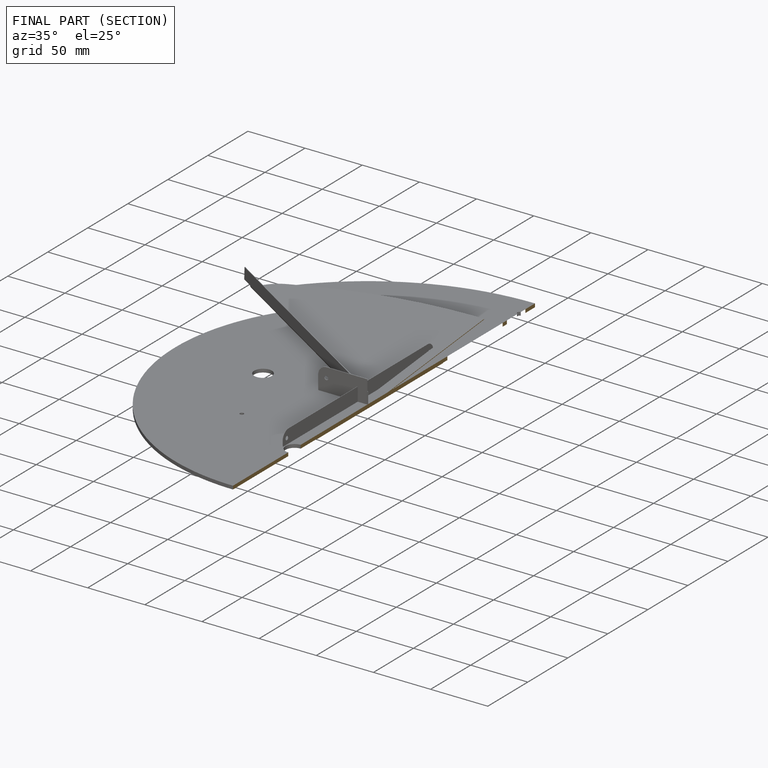
[diagram: finished part — half-section view (interior)]
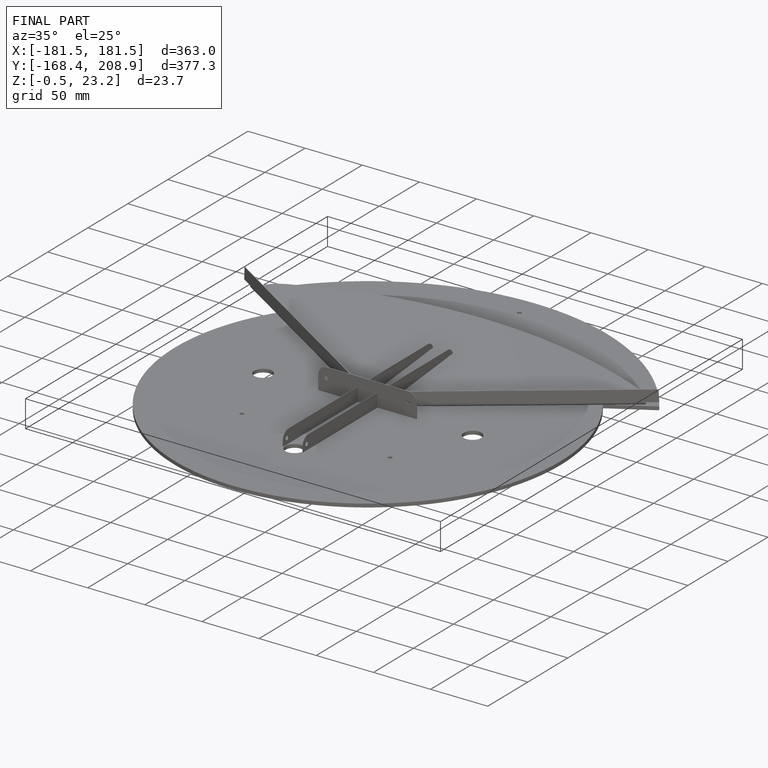
[diagram: finished part — iso view with bounding-box wireframe]
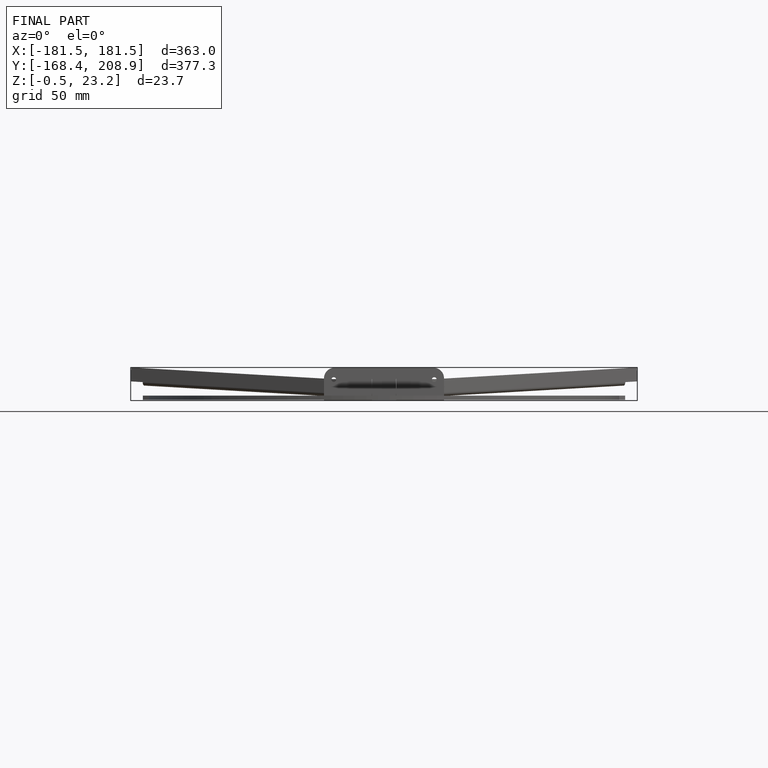
[diagram: finished part — front view with bounding-box wireframe]
